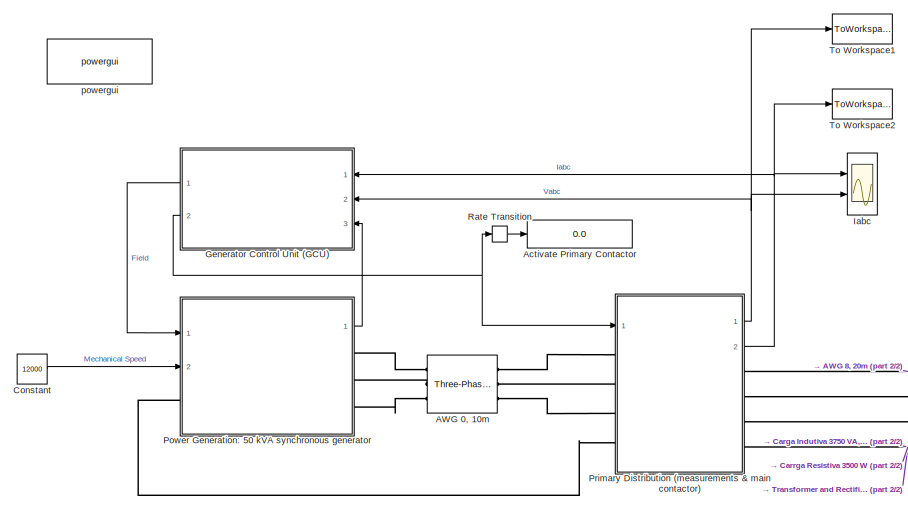
[diagram: root canvas - part 1/2, top left region]
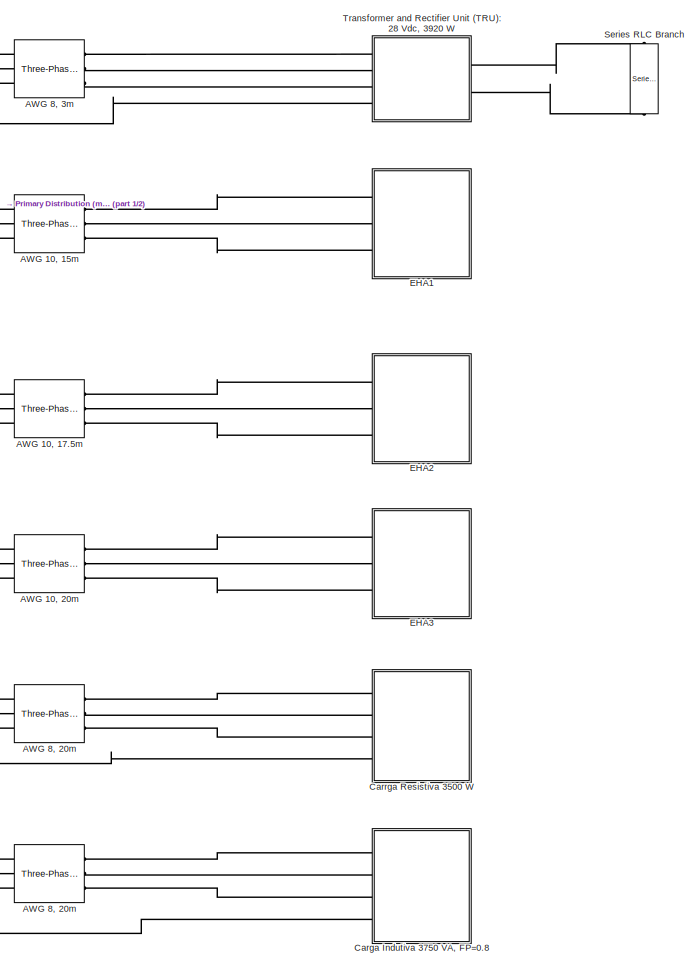
[diagram: root canvas - part 2/2, right side, full height]
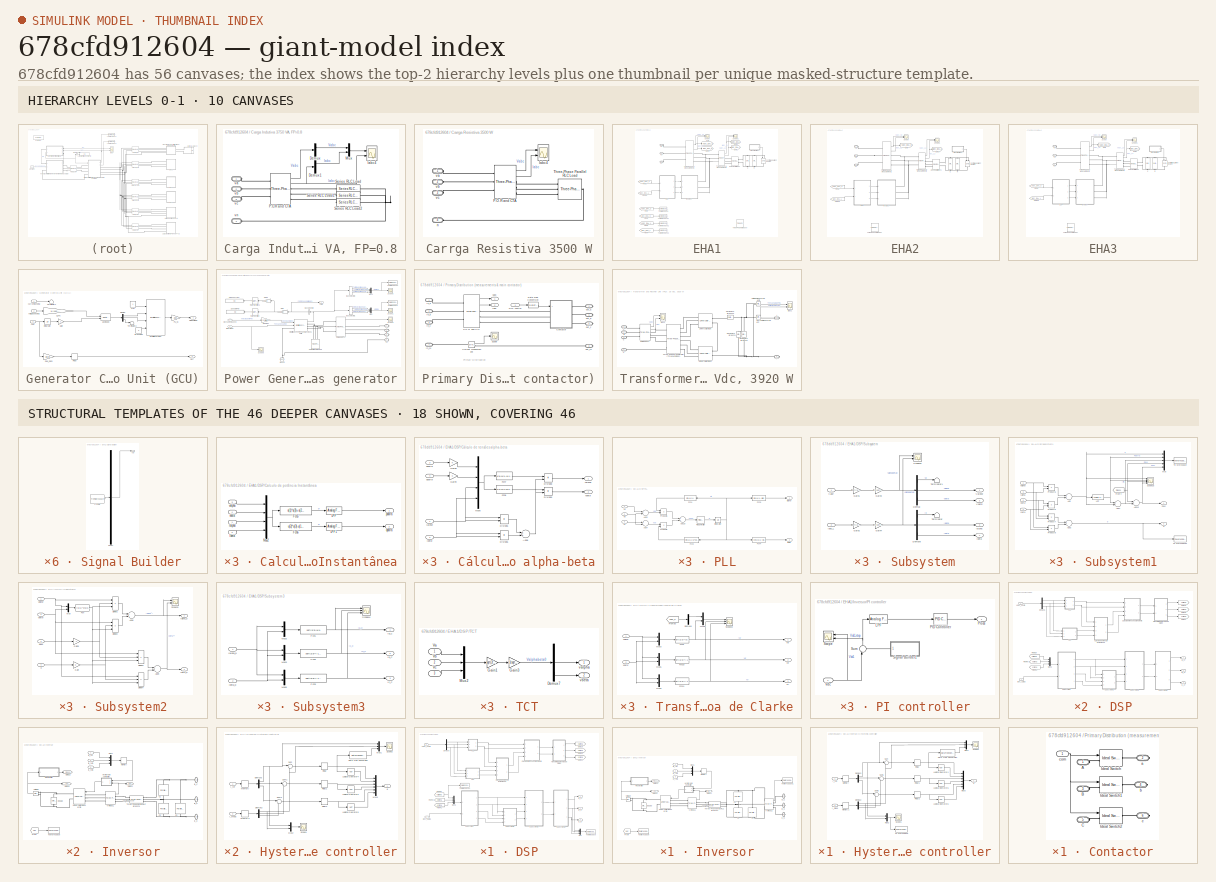
[diagram: thumbnail index - top-2 hierarchy levels (10 canvases) + 18 structural-template representatives of the remaining 46 canvases]
MODEL slx_678cfd912604
KIND model
CONFIG AbsTol = 0.2e-4
CONFIG FixedStep = auto
CONFIG MaxStep = 0.01
CONFIG MinStep = auto
CONFIG PreLoadFcn = % -- Recommended Settings --\n%\n%  Simulink:\n%      Solver: Ode23t\n%      Relative tolerance = 1e-3\n%       Max step size = 0.2\n%\n%  Powergui:\n         Ts = 1e-07; % (discrete electrical model)\n%\n%  Control systems:\n         Ts_control = 10*Ts; % (discrete control system)\n%\n% ----------------------------------
CONFIG RelTol = 0.2e-4
CONFIG SampleTimeConstraint = Unconstrained
CONFIG Solver = FixedStepAuto
CONFIG SolverMode = Auto
CONFIG SolverName = FixedStepAuto
CONFIG StartTime = 72.85
CONFIG StopTime = 73.9
BLOCK [Reference] AWG 0, 10m  REF=powerlib/Elements/Three-Phase
Parallel RLC Branch
  AttributesFormatString = \n
  Ports = [0, 0, 0, 0, 0, 3, 3]
  SourceBlock = powerlib/Elements/Three-Phase\nParallel RLC Branch
  SourceType = Three-Phase Parallel RLC Branch
BLOCK [Reference] AWG 10, 15m  REF=powerlib/Elements/Three-Phase
Parallel RLC Branch
  AttributesFormatString = \n
  Ports = [0, 0, 0, 0, 0, 3, 3]
  SourceBlock = powerlib/Elements/Three-Phase\nParallel RLC Branch
  SourceType = Three-Phase Parallel RLC Branch
BLOCK [Reference] AWG 10, 17.5m  REF=powerlib/Elements/Three-Phase
Parallel RLC Branch
  AttributesFormatString = \n
  Ports = [0, 0, 0, 0, 0, 3, 3]
  SourceBlock = powerlib/Elements/Three-Phase\nParallel RLC Branch
  SourceType = Three-Phase Parallel RLC Branch
BLOCK [Reference] AWG 10, 20m  REF=powerlib/Elements/Three-Phase
Parallel RLC Branch
  AttributesFormatString = \n
  Ports = [0, 0, 0, 0, 0, 3, 3]
  SourceBlock = powerlib/Elements/Three-Phase\nParallel RLC Branch
  SourceType = Three-Phase Parallel RLC Branch
BLOCK [Reference] AWG 8, 20m  REF=powerlib/Elements/Three-Phase
Parallel RLC Branch
  AttributesFormatString = \n
  Ports = [0, 0, 0, 0, 0, 3, 3]
  SourceBlock = powerlib/Elements/Three-Phase\nParallel RLC Branch
  SourceType = Three-Phase Parallel RLC Branch
BLOCK [Reference] AWG 8, 20m   REF=powerlib/Elements/Three-Phase
Parallel RLC Branch
  AttributesFormatString = \n
  Ports = [0, 0, 0, 0, 0, 3, 3]
  SourceBlock = powerlib/Elements/Three-Phase\nParallel RLC Branch
  SourceType = Three-Phase Parallel RLC Branch
BLOCK [Reference] AWG 8, 3m  REF=powerlib/Elements/Three-Phase
Parallel RLC Branch
  AttributesFormatString = \n
  Ports = [0, 0, 0, 0, 0, 3, 3]
  SourceBlock = powerlib/Elements/Three-Phase\nParallel RLC Branch
  SourceType = Three-Phase Parallel RLC Branch
BLOCK [Display] Activate Primary Contactor
  Decimation = 1
  Ports = [1]
  SampleTime = 1e-2
BLOCK [SubSystem] Carga Indutiva 3750 VA, FP=0.8
  Ports = [0, 0, 0, 0, 0, 4]
  RequestExecContextInheritance = off
  Variant = off
BLOCK [Demux] Carga Indutiva 3750 VA, FP=0.8/Demux
  DisplayOption = bar
  Outputs = 3
  Ports = [1, 3]
BLOCK [Demux] Carga Indutiva 3750 VA, FP=0.8/Demux1
  DisplayOption = bar
  Outputs = 3
  Ports = [1, 3]
BLOCK [Scope] Carga Indutiva 3750 VA, FP=0.8/Iabc4
  NumInputPorts = 2
  Ports = [2]
  ScopeSpecificationString = C++SS(StrPVP('Location','[-951, 56, -7, 1071]'),StrPVP('Open','off'),StrPVP('ZoomMode','yonly'),MxPVP('AxesTitles',24,'struct(''axes1'',''%<SignalLabel>'',''axes2'',''%<SignalLabel>'')'),MxPVP('ScopeGraphics',28,'struct(''FigureColor'',''[0.5 0.5 0.5]'',''AxesColor'',''[0 0 0]'',''AxesTickColor'',''[1 1 1]'',''LineColors'',''[1 1 0;1 0 1;0 1 1;1 0 0;0 1 0;0 0 1]'',''LineStyles'',''-|-|-|-|-|-'',''...<+362ch>
BLOCK [Mux] Carga Indutiva 3750 VA, FP=0.8/Mux
  DisplayOption = bar
  Inputs = 2
  Ports = [2, 1]
BLOCK [Reference] Carga Indutiva 3750 VA, FP=0.8/P.O.R  and CTA  REF=powerlib/Measurements/Three-Phase
V-I Measurement
  Ports = [0, 2, 0, 0, 0, 3, 3]
  SourceBlock = powerlib/Measurements/Three-Phase\nV-I Measurement
  SourceType = Three-Phase VI Measurement
BLOCK [Reference] Carga Indutiva 3750 VA, FP=0.8/Series RLC Load  REF=powerlib/Elements/Series RLC Load
  AttributesFormatString = \n
  Ports = [0, 0, 0, 0, 0, 1, 1]
  SourceBlock = powerlib/Elements/Series RLC Load
  SourceType = Series RLC Load
BLOCK [Reference] Carga Indutiva 3750 VA, FP=0.8/Series RLC Load1  REF=powerlib/Elements/Series RLC Load
  AttributesFormatString = \n
  Ports = [0, 0, 0, 0, 0, 1, 1]
  SourceBlock = powerlib/Elements/Series RLC Load
  SourceType = Series RLC Load
BLOCK [Reference] Carga Indutiva 3750 VA, FP=0.8/Series RLC Load2  REF=powerlib/Elements/Series RLC Load
  AttributesFormatString = \n
  Ports = [0, 0, 0, 0, 0, 1, 1]
  SourceBlock = powerlib/Elements/Series RLC Load
  SourceType = Series RLC Load
BLOCK [PMIOPort] Carga Indutiva 3750 VA, FP=0.8/va
  Port = 1
  Side = Left
BLOCK [PMIOPort] Carga Indutiva 3750 VA, FP=0.8/vb
  Port = 2
  Side = Left
BLOCK [PMIOPort] Carga Indutiva 3750 VA, FP=0.8/vc
  Port = 3
  Side = Left
BLOCK [PMIOPort] Carga Indutiva 3750 VA, FP=0.8/vn
  Port = 4
  Side = Left
BLOCK [SubSystem] Carrga Resistiva 3500 W
  Ports = [0, 0, 0, 0, 0, 4]
  RequestExecContextInheritance = off
  Variant = off
BLOCK [Scope] Carrga Resistiva 3500 W/Iabc4
  NumInputPorts = 2
  Ports = [2]
  ScopeSpecificationString = C++SS(StrPVP('Location','[-1668, 281, -724, 645]'),StrPVP('Open','off'),StrPVP('ZoomMode','xonly'),MxPVP('AxesTitles',24,'struct(''axes1'',''%<SignalLabel>'',''axes2'',''%<SignalLabel>'')'),MxPVP('ScopeGraphics',28,'struct(''FigureColor'',''[0.5 0.5 0.5]'',''AxesColor'',''[0 0 0]'',''AxesTickColor'',''[1 1 1]'',''LineColors'',''[1 1 0;1 0 1;0 1 1;1 0 0;0 1 0;0 0 1]'',''LineStyles'',''-|-|-|-|-|-''...<+363ch>
BLOCK [Reference] Carrga Resistiva 3500 W/P.O.R  and CTA  REF=powerlib/Measurements/Three-Phase
V-I Measurement
  Ports = [0, 2, 0, 0, 0, 3, 3]
  SourceBlock = powerlib/Measurements/Three-Phase\nV-I Measurement
  SourceType = Three-Phase VI Measurement
BLOCK [Reference] Carrga Resistiva 3500 W/Three-Phase Parallel RLC Load  REF=powerlib/Elements/Three-Phase
Parallel RLC Load
  AttributesFormatString = \n
  Ports = [0, 0, 0, 0, 0, 3, 1]
  SourceBlock = powerlib/Elements/Three-Phase\nParallel RLC Load
  SourceType = Three-Phase Parallel RLC Load
BLOCK [PMIOPort] Carrga Resistiva 3500 W/n
  Port = 4
  Side = Left
BLOCK [PMIOPort] Carrga Resistiva 3500 W/va
  Port = 1
  Side = Left
BLOCK [PMIOPort] Carrga Resistiva 3500 W/vb
  Port = 2
  Side = Left
BLOCK [PMIOPort] Carrga Resistiva 3500 W/vc
  Port = 3
  Side = Left
BLOCK [Constant] Constant
  Value = 12000
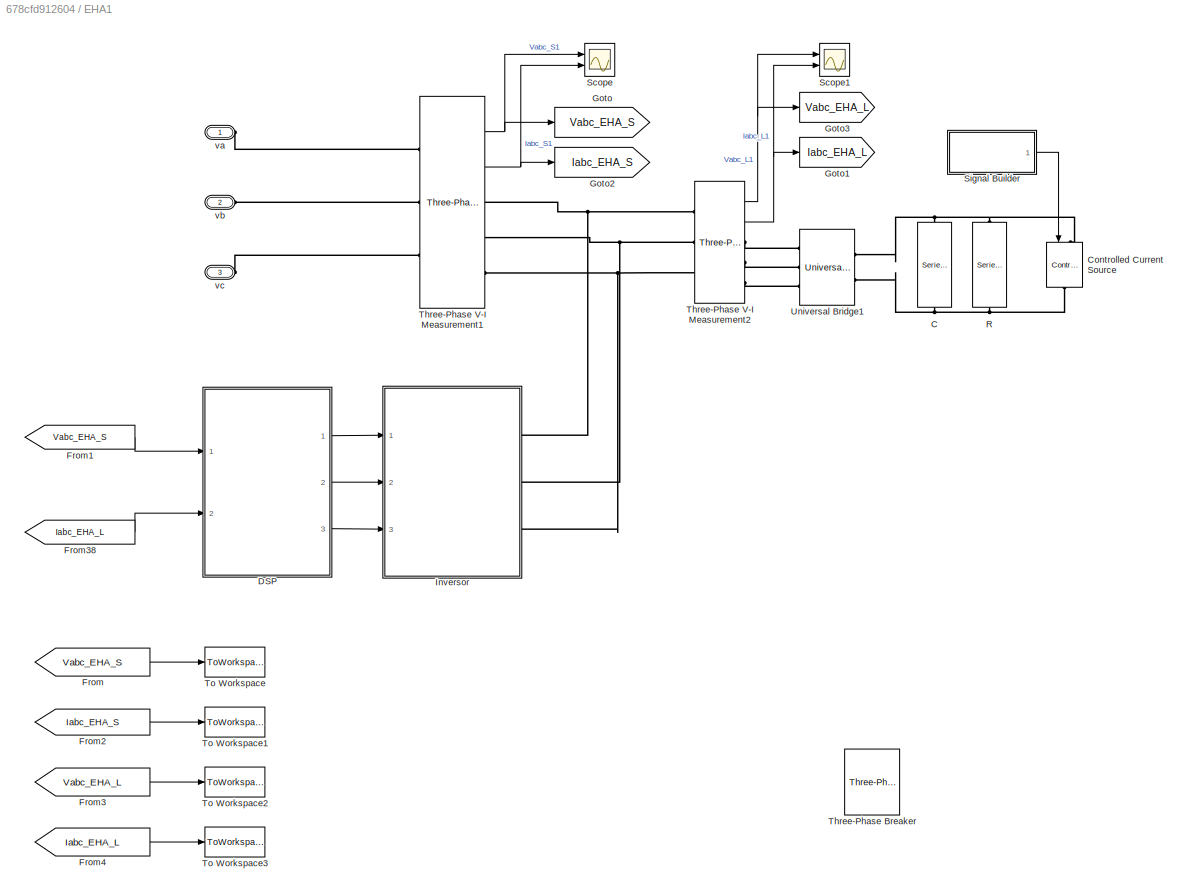
BLOCK [SubSystem] EHA1
  Ports = [0, 0, 0, 0, 0, 3]
  RequestExecContextInheritance = off
  Variant = off
BLOCK [Reference] EHA1/C  REF=powerlib/Elements/Series RLC Branch
  Ports = [0, 0, 0, 0, 0, 1, 1]
  SourceBlock = powerlib/Elements/Series RLC Branch
  SourceType = Series RLC Branch
BLOCK [Reference] EHA1/Controlled Current Source  REF=powerlib/Electrical
Sources/Controlled Current Source
  Ports = [1, 0, 0, 0, 0, 1, 1]
  SourceBlock = powerlib/Electrical\nSources/Controlled Current Source
  SourceType = Controlled Current Source
BLOCK [SubSystem] EHA1/DSP
  Ports = [2, 3]
  RequestExecContextInheritance = off
  Variant = off
BLOCK [SubSystem] EHA1/DSP/Calculo de potência Instantânea
  Ports = [4, 2]
  RequestExecContextInheritance = off
  Variant = off
BLOCK [Fcn] EHA1/DSP/Calculo de potência Instantânea/Fcn5
  Expr = u(1)*u(3)+u(2)*u(4)
BLOCK [Fcn] EHA1/DSP/Calculo de potência Instantânea/Fcn6
  Expr = u(2)*u(3)-u(1)*u(4)
BLOCK [Inport] EHA1/DSP/Calculo de potência Instantânea/Ialpha'
  IconDisplay = Port number
BLOCK [Inport] EHA1/DSP/Calculo de potência Instantânea/Ibeta'
  IconDisplay = Port number
  Port = 2
BLOCK [Reference] EHA1/DSP/Calculo de potência Instantânea/LPF  REF=dsparch4/Analog
Filter Design
  Ports = [1, 1]
  SourceBlock = dsparch4/Analog\nFilter Design
  SourceType = Analog Filter Design
BLOCK [Reference] EHA1/DSP/Calculo de potência Instantânea/LPF1  REF=dsparch4/Analog
Filter Design
  Ports = [1, 1]
  SourceBlock = dsparch4/Analog\nFilter Design
  SourceType = Analog Filter Design
BLOCK [Mux] EHA1/DSP/Calculo de potência Instantânea/Mux2
  DisplayOption = bar
  Ports = [4, 1]
BLOCK [Outport] EHA1/DSP/Calculo de potência Instantânea/pbarra'
  IconDisplay = Port number
BLOCK [Outport] EHA1/DSP/Calculo de potência Instantânea/qbarra'
  IconDisplay = Port number
  Port = 2
BLOCK [Inport] EHA1/DSP/Calculo de potência Instantânea/valpha
  IconDisplay = Port number
  Port = 3
BLOCK [Inport] EHA1/DSP/Calculo de potência Instantânea/vbeta
  IconDisplay = Port number
  Port = 4
BLOCK [SubSystem] EHA1/DSP/Cálculo de tensões alpha-beta
  Ports = [4, 2]
  RequestExecContextInheritance = off
  Variant = off
BLOCK [Sum] EHA1/DSP/Cálculo de tensões alpha-beta/Add8
  InputSameDT = off
  OutDataTypeStr = Inherit: Inherit via internal rule
  Ports = [2, 1]
  SaturateOnIntegerOverflow = off
BLOCK [Product] EHA1/DSP/Cálculo de tensões alpha-beta/Divide5
  InputSameDT = off
  Inputs = **
  OutDataTypeStr = Inherit: Inherit via internal rule
  Ports = [2, 1]
  RndMeth = Floor
  SaturateOnIntegerOverflow = off
BLOCK [Product] EHA1/DSP/Cálculo de tensões alpha-beta/Divide6
  InputSameDT = off
  Inputs = **
  OutDataTypeStr = Inherit: Inherit via internal rule
  Ports = [2, 1]
  RndMeth = Floor
  SaturateOnIntegerOverflow = off
BLOCK [Product] EHA1/DSP/Cálculo de tensões alpha-beta/Divide8
  InputSameDT = off
  Inputs = */
  OutDataTypeStr = Inherit: Inherit via internal rule
  Ports = [2, 1]
  RndMeth = Floor
  SaturateOnIntegerOverflow = off
BLOCK [Product] EHA1/DSP/Cálculo de tensões alpha-beta/Divide9
  InputSameDT = off
  Inputs = */
  OutDataTypeStr = Inherit: Inherit via internal rule
  Ports = [2, 1]
  RndMeth = Floor
  SaturateOnIntegerOverflow = off
BLOCK [Fcn] EHA1/DSP/Cálculo de tensões alpha-beta/Fcn7
  Expr = u(3)*u(1)-u(4)*u(2)
BLOCK [Fcn] EHA1/DSP/Cálculo de tensões alpha-beta/Fcn8
  Expr = u(4)*u(1)+u(3)*u(2)
BLOCK [Gain] EHA1/DSP/Cálculo de tensões alpha-beta/Gain8
  OutDataTypeStr = Inherit: Inherit via internal rule
  ParamDataTypeStr = Inherit: Inherit via internal rule
  SaturateOnIntegerOverflow = off
BLOCK [Gain] EHA1/DSP/Cálculo de tensões alpha-beta/Gain9
  OutDataTypeStr = Inherit: Inherit via internal rule
  ParamDataTypeStr = Inherit: Inherit via internal rule
  SaturateOnIntegerOverflow = off
BLOCK [Inport] EHA1/DSP/Cálculo de tensões alpha-beta/Ialpha'
  IconDisplay = Port number
BLOCK [Inport] EHA1/DSP/Cálculo de tensões alpha-beta/Ibeta'
  IconDisplay = Port number
  Port = 2
BLOCK [Mux] EHA1/DSP/Cálculo de tensões alpha-beta/Mux6
  DisplayOption = bar
  Ports = [4, 1]
BLOCK [Inport] EHA1/DSP/Cálculo de tensões alpha-beta/pbarra'
  IconDisplay = Port number
  Port = 3
BLOCK [Inport] EHA1/DSP/Cálculo de tensões alpha-beta/qbarra'
  IconDisplay = Port number
  Port = 4
BLOCK [Outport] EHA1/DSP/Cálculo de tensões alpha-beta/valpha'
  IconDisplay = Port number
BLOCK [Outport] EHA1/DSP/Cálculo de tensões alpha-beta/vbeta'
  IconDisplay = Port number
  Port = 2
BLOCK [Demux] EHA1/DSP/Demux5
  DisplayOption = bar
  Outputs = 3
  Ports = [1, 3]
BLOCK [From] EHA1/DSP/From39
  GotoTag = valinha
BLOCK [From] EHA1/DSP/From40
  GotoTag = vblinha
BLOCK [From] EHA1/DSP/From41
  GotoTag = vclinha
BLOCK [Goto] EHA1/DSP/Goto29
  GotoTag = valinha
BLOCK [Goto] EHA1/DSP/Goto30
  GotoTag = vblinha
BLOCK [Goto] EHA1/DSP/Goto31
  GotoTag = vclinha
BLOCK [Outport] EHA1/DSP/Ia_C*
  IconDisplay = Port number
BLOCK [Inport] EHA1/DSP/Iabc_Carga
  IconDisplay = Port number
  Port = 2
BLOCK [Outport] EHA1/DSP/Ib_C*
  IconDisplay = Port number
  Port = 2
BLOCK [Outport] EHA1/DSP/Ic_C*
  IconDisplay = Port number
  Port = 3
BLOCK [Mux] EHA1/DSP/Mux
  DisplayOption = bar
  Inputs = 3
  Ports = [3, 1]
BLOCK [Mux] EHA1/DSP/Mux6
  DisplayOption = bar
  Inputs = 3
  Ports = [3, 1]
BLOCK [SubSystem] EHA1/DSP/PLL
  Ports = [3, 2]
  RequestExecContextInheritance = off
  Variant = off
BLOCK [Sum] EHA1/DSP/PLL/Add10
  InputSameDT = off
  OutDataTypeStr = Inherit: Inherit via internal rule
  Ports = [2, 1]
  SaturateOnIntegerOverflow = off
BLOCK [Sum] EHA1/DSP/PLL/Add3
  InputSameDT = off
  Inputs = +-
  OutDataTypeStr = Inherit: Inherit via internal rule
  Ports = [2, 1]
  SaturateOnIntegerOverflow = off
BLOCK [Sum] EHA1/DSP/PLL/Add4
  InputSameDT = off
  Inputs = +-
  OutDataTypeStr = Inherit: Inherit via internal rule
  Ports = [2, 1]
  SaturateOnIntegerOverflow = off
BLOCK [Fcn] EHA1/DSP/PLL/Fcn1
  Expr = sin(u(1))
BLOCK [Fcn] EHA1/DSP/PLL/Fcn2
  Expr = sin(u(1)+2*pi/3)
BLOCK [Fcn] EHA1/DSP/PLL/Fcn3
  Expr = sin(u(1)-pi/2)
BLOCK [Fcn] EHA1/DSP/PLL/Fcn4
  Expr = -cos(u(1)-pi/2)
BLOCK [Outport] EHA1/DSP/PLL/Ialpha'
  IconDisplay = Port number
BLOCK [Outport] EHA1/DSP/PLL/Ibeta'
  IconDisplay = Port number
  Port = 2
BLOCK [Integrator] EHA1/DSP/PLL/Integrator
  Ports = [1, 1]
BLOCK [Reference] EHA1/DSP/PLL/PID Controller  REF=simulink/Continuous/PID Controller
  Ports = [1, 1]
  SourceBlock = simulink/Continuous/PID Controller
  SourceType = PID 1dof
BLOCK [Product] EHA1/DSP/PLL/Product5
  InputSameDT = off
  OutDataTypeStr = Inherit: Inherit via internal rule
  Ports = [2, 1]
  RndMeth = Floor
  SaturateOnIntegerOverflow = off
BLOCK [Product] EHA1/DSP/PLL/Product6
  InputSameDT = off
  OutDataTypeStr = Inherit: Inherit via internal rule
  Ports = [2, 1]
  RndMeth = Floor
  SaturateOnIntegerOverflow = off
BLOCK [Inport] EHA1/DSP/PLL/Va
  IconDisplay = Port number
BLOCK [Inport] EHA1/DSP/PLL/Vb
  IconDisplay = Port number
  Port = 2
BLOCK [Inport] EHA1/DSP/PLL/Vc
  IconDisplay = Port number
  Port = 3
BLOCK [SubSystem] EHA1/DSP/Subsystem
  Ports = [2, 4]
  RequestExecContextInheritance = off
  Variant = off
BLOCK [Demux] EHA1/DSP/Subsystem/Demux
  DisplayOption = bar
  Outputs = 3
  Ports = [1, 3]
BLOCK [Demux] EHA1/DSP/Subsystem/Demux6
  DisplayOption = bar
  Outputs = 3
  Ports = [1, 3]
BLOCK [Gain] EHA1/DSP/Subsystem/Gain1
  Gain = sqrt(2/3)
  OutDataTypeStr = Inherit: Inherit via internal rule
  ParamDataTypeStr = Inherit: Inherit via internal rule
  SaturateOnIntegerOverflow = off
BLOCK [Gain] EHA1/DSP/Subsystem/Gain2
  Gain = sqrt(2/3)
  OutDataTypeStr = Inherit: Inherit via internal rule
  ParamDataTypeStr = Inherit: Inherit via internal rule
  SaturateOnIntegerOverflow = off
BLOCK [Gain] EHA1/DSP/Subsystem/Gain3
  Gain = [1/sqrt(2), 1/sqrt(2), 1/sqrt(2); 1, -1/2, -1/2; 0, sqrt(3)/2, -sqrt(3)/2]
  Multiplication = Matrix(K*u)
  OutDataTypeStr = Inherit: Inherit via internal rule
  ParamDataTypeStr = Inherit: Inherit via internal rule
  SaturateOnIntegerOverflow = off
BLOCK [Gain] EHA1/DSP/Subsystem/Gain4
  Gain = [1/sqrt(2), 1/sqrt(2), 1/sqrt(2); 1, -1/2, -1/2; 0, sqrt(3)/2, -sqrt(3)/2]
  Multiplication = Matrix(K*u)
  OutDataTypeStr = Inherit: Inherit via internal rule
  ParamDataTypeStr = Inherit: Inherit via internal rule
  SaturateOnIntegerOverflow = off
BLOCK [Inport] EHA1/DSP/Subsystem/Iabc_L
  IconDisplay = Port number
  Port = 2
BLOCK [Outport] EHA1/DSP/Subsystem/Ialpha
  IconDisplay = Port number
  Port = 3
BLOCK [Outport] EHA1/DSP/Subsystem/Ibeta
  IconDisplay = Port number
  Port = 4
BLOCK [Scope] EHA1/DSP/Subsystem/Scope15
  NumInputPorts = 2
  Ports = [2]
  ScopeSpecificationString = C++SS(StrPVP('Location','[311, 59, 1224, 1074]'),StrPVP('Open','off'),StrPVP('ZoomMode','xonly'),MxPVP('AxesTitles',24,'struct(''axes1'',''%<SignalLabel>'',''axes2'',''%<SignalLabel>'')'),MxPVP('ScopeGraphics',28,'struct(''FigureColor'',''[0.5 0.5 0.5]'',''AxesColor'',''[0 0 0]'',''AxesTickColor'',''[1 1 1]'',''LineColors'',''[1 1 0;1 0 1;0 1 1;1 0 0;0 1 0;0 0 1]'',''LineStyles'',''-|-|-|-|-|-'','...<+334ch>  <repeated x3 — deduplicated; at blocks: Scope15>
BLOCK [Terminator] EHA1/DSP/Subsystem/Terminator
BLOCK [Terminator] EHA1/DSP/Subsystem/Terminator1
BLOCK [Inport] EHA1/DSP/Subsystem/Vabc'
  IconDisplay = Port number
BLOCK [Outport] EHA1/DSP/Subsystem/Valpha'
  IconDisplay = Port number
BLOCK [Outport] EHA1/DSP/Subsystem/Vbeta'
  IconDisplay = Port number
  Port = 2
BLOCK [SubSystem] EHA1/DSP/Subsystem1
  Ports = [4, 2]
  RequestExecContextInheritance = off
  Variant = off
BLOCK [Sum] EHA1/DSP/Subsystem1/Add
  InputSameDT = off
  OutDataTypeStr = Inherit: Inherit via internal rule
  Ports = [2, 1]
  SaturateOnIntegerOverflow = off
BLOCK [Sum] EHA1/DSP/Subsystem1/Add10
  InputSameDT = off
  OutDataTypeStr = Inherit: Inherit via internal rule
  Ports = [2, 1]
  SaturateOnIntegerOverflow = off
BLOCK [Sum] EHA1/DSP/Subsystem1/Add3
  InputSameDT = off
  Inputs = +-
  OutDataTypeStr = Inherit: Inherit via internal rule
  Ports = [2, 1]
  SaturateOnIntegerOverflow = off
BLOCK [Sum] EHA1/DSP/Subsystem1/Add4
  InputSameDT = off
  Inputs = +-
  OutDataTypeStr = Inherit: Inherit via internal rule
  Ports = [2, 1]
  SaturateOnIntegerOverflow = off
BLOCK [From] EHA1/DSP/Subsystem1/From4
  GotoTag = Ploss1
  TagVisibility = global
BLOCK [Inport] EHA1/DSP/Subsystem1/Ialpha
  IconDisplay = Port number
  Port = 3
BLOCK [Inport] EHA1/DSP/Subsystem1/Ibeta
  IconDisplay = Port number
  Port = 4
BLOCK [Reference] EHA1/DSP/Subsystem1/LPF  REF=dsparch4/Analog
Filter Design
  Ports = [1, 1]
  SourceBlock = dsparch4/Analog\nFilter Design
  SourceType = Analog Filter Design
BLOCK [Mux] EHA1/DSP/Subsystem1/Mux
  DisplayOption = bar
  Inputs = 5
  Ports = [5, 1]
BLOCK [Outport] EHA1/DSP/Subsystem1/Posc
  IconDisplay = Port number
BLOCK [Product] EHA1/DSP/Subsystem1/Product5
  InputSameDT = off
  OutDataTypeStr = Inherit: Inherit via internal rule
  Ports = [2, 1]
  RndMeth = Floor
  SaturateOnIntegerOverflow = off
BLOCK [Product] EHA1/DSP/Subsystem1/Product6
  InputSameDT = off
  OutDataTypeStr = Inherit: Inherit via internal rule
  Ports = [2, 1]
  RndMeth = Floor
  SaturateOnIntegerOverflow = off
BLOCK [Product] EHA1/DSP/Subsystem1/Product7
  InputSameDT = off
  OutDataTypeStr = Inherit: Inherit via internal rule
  Ports = [2, 1]
  RndMeth = Floor
  SaturateOnIntegerOverflow = off
BLOCK [Product] EHA1/DSP/Subsystem1/Product8
  InputSameDT = off
  OutDataTypeStr = Inherit: Inherit via internal rule
  Ports = [2, 1]
  RndMeth = Floor
  SaturateOnIntegerOverflow = off
BLOCK [Scope] EHA1/DSP/Subsystem1/Scope18
  NumInputPorts = 4
  Ports = [4]
  ScopeSpecificationString = Simulink.scopes.TimeScopeBlockCfg('CurrentConfiguration', extmgr.ConfigurationSet(extmgr.Configuration('Core','General UI',true),extmgr.Configuration('Core','Source UI',true),extmgr.Configuration('Sources','WiredSimulink',true,'DataLoggingVariableName','ScopeData35','DataLoggingLimitDataPoints',true,'DataLoggingSaveFormat','Array','DataLoggingDecimation','1','DataLoggingDecimateData',true),extmgr....<+3766ch>  <repeated x3 — deduplicated; at blocks: Scope18>
BLOCK [ToWorkspace] EHA1/DSP/Subsystem1/To Workspace
  FixptAsFi = on
  MaxDataPoints = inf
  Ports = [1]
  SampleTime = -1
  Save2DSignal = 3-D array (concatenate along third dimension)
  SaveFormat = Structure With Time
  VariableName = p1
BLOCK [ToWorkspace] EHA1/DSP/Subsystem1/To Workspace1
  FixptAsFi = on
  MaxDataPoints = inf
  Ports = [1]
  SampleTime = -1
  Save2DSignal = 3-D array (concatenate along third dimension)
  SaveFormat = Structure With Time
  VariableName = q1
BLOCK [Inport] EHA1/DSP/Subsystem1/Valpha'
  IconDisplay = Port number
BLOCK [Inport] EHA1/DSP/Subsystem1/Vbeta'
  IconDisplay = Port number
  Port = 2
BLOCK [Outport] EHA1/DSP/Subsystem1/q
  IconDisplay = Port number
  Port = 2
BLOCK [SubSystem] EHA1/DSP/Subsystem2
  Ports = [4, 2]
  RequestExecContextInheritance = off
  Variant = off
BLOCK [Sum] EHA1/DSP/Subsystem2/Add8
  InputSameDT = off
  OutDataTypeStr = Inherit: Inherit via internal rule
  Ports = [2, 1]
  SaturateOnIntegerOverflow = off
BLOCK [Sum] EHA1/DSP/Subsystem2/Add9
  InputSameDT = off
  Inputs = +-
  OutDataTypeStr = Inherit: Inherit via internal rule
  Ports = [2, 1]
  SaturateOnIntegerOverflow = off
BLOCK [Product] EHA1/DSP/Subsystem2/Divide1
  InputSameDT = off
  Inputs = ***
  OutDataTypeStr = Inherit: Inherit via internal rule
  Ports = [3, 1]
  RndMeth = Floor
  SaturateOnIntegerOverflow = off
BLOCK [Product] EHA1/DSP/Subsystem2/Divide2
  InputSameDT = off
  Inputs = ***
  OutDataTypeStr = Inherit: Inherit via internal rule
  Ports = [3, 1]
  RndMeth = Floor
  SaturateOnIntegerOverflow = off
BLOCK [Product] EHA1/DSP/Subsystem2/Divide3
  InputSameDT = off
  Inputs = ***
  OutDataTypeStr = Inherit: Inherit via internal rule
  Ports = [3, 1]
  RndMeth = Floor
  SaturateOnIntegerOverflow = off
BLOCK [Product] EHA1/DSP/Subsystem2/Divide4
  InputSameDT = off
  Inputs = ***
  OutDataTypeStr = Inherit: Inherit via internal rule
  Ports = [3, 1]
  RndMeth = Floor
  SaturateOnIntegerOverflow = off
BLOCK [Fcn] EHA1/DSP/Subsystem2/Fcn
  Expr = 1/(u(1)^2+u(2)^2)
BLOCK [Gain] EHA1/DSP/Subsystem2/Gain
  OutDataTypeStr = Inherit: Inherit via internal rule
  ParamDataTypeStr = Inherit: Inherit via internal rule
  SaturateOnIntegerOverflow = off
BLOCK [Gain] EHA1/DSP/Subsystem2/Gain5
  Gain = -1
  OutDataTypeStr = Inherit: Inherit via internal rule
  ParamDataTypeStr = Inherit: Inherit via internal rule
  SaturateOnIntegerOverflow = off
BLOCK [Outport] EHA1/DSP/Subsystem2/Ialpha_p
  IconDisplay = Port number
BLOCK [Outport] EHA1/DSP/Subsystem2/Ibeta_p
  IconDisplay = Port number
  Port = 2
BLOCK [Mux] EHA1/DSP/Subsystem2/Mux
  DisplayOption = bar
  Inputs = 2
  Ports = [2, 1]
BLOCK [Inport] EHA1/DSP/Subsystem2/Posc
  IconDisplay = Port number
  Port = 3
BLOCK [Scope] EHA1/DSP/Subsystem2/Scope20
  NumInputPorts = 2
  Ports = [2]
  ScopeSpecificationString = C++SS(StrPVP('Location','[938, 59, 1851, 1074]'),StrPVP('Open','off'),StrPVP('ZoomMode','xonly'),MxPVP('AxesTitles',24,'struct(''axes1'',''%<SignalLabel>'',''axes2'',''%<SignalLabel>'')'),MxPVP('ScopeGraphics',28,'struct(''FigureColor'',''[0.5 0.5 0.5]'',''AxesColor'',''[0 0 0]'',''AxesTickColor'',''[1 1 1]'',''LineColors'',''[1 1 0;1 0 1;0 1 1;1 0 0;0 1 0;0 0 1]'',''LineStyles'',''-|-|-|-|-|-'','...<+334ch>  <repeated x3 — deduplicated; at blocks: Scope20>
BLOCK [Inport] EHA1/DSP/Subsystem2/Valpha'
  IconDisplay = Port number
BLOCK [Inport] EHA1/DSP/Subsystem2/Vbeta'
  IconDisplay = Port number
  Port = 2
BLOCK [Inport] EHA1/DSP/Subsystem2/q
  IconDisplay = Port number
  Port = 4
BLOCK [SubSystem] EHA1/DSP/Subsystem3
  Ports = [2, 3]
  RequestExecContextInheritance = off
  Variant = off
BLOCK [Fcn] EHA1/DSP/Subsystem3/Fcn1
  Expr = sqrt(2/3)*u(1)
BLOCK [Fcn] EHA1/DSP/Subsystem3/Fcn2
  Expr = sqrt(2/3)*(-1/2*u(1)+sqrt(3)/2*u(2))
BLOCK [Fcn] EHA1/DSP/Subsystem3/Fcn3
  Expr = sqrt(2/3)*(-1/2*u(1)-sqrt(3)/2*u(2))
BLOCK [Outport] EHA1/DSP/Subsystem3/Ia_C
  IconDisplay = Port number
BLOCK [Inport] EHA1/DSP/Subsystem3/Ialpha_p
  IconDisplay = Port number
BLOCK [Outport] EHA1/DSP/Subsystem3/Ib_C
  IconDisplay = Port number
  Port = 2
BLOCK [Inport] EHA1/DSP/Subsystem3/Ibeta_p
  IconDisplay = Port number
  Port = 2
BLOCK [Outport] EHA1/DSP/Subsystem3/Ic_C
  IconDisplay = Port number
  Port = 3
BLOCK [Mux] EHA1/DSP/Subsystem3/Mux2
  DisplayOption = bar
  Inputs = 2
  Ports = [2, 1]
BLOCK [Mux] EHA1/DSP/Subsystem3/Mux3
  DisplayOption = bar
  Inputs = 2
  Ports = [2, 1]
BLOCK [Mux] EHA1/DSP/Subsystem3/Mux5
  DisplayOption = bar
  Inputs = 2
  Ports = [2, 1]
BLOCK [Scope] EHA1/DSP/Subsystem3/Scope14
  NumInputPorts = 3
  Ports = [3]
  ScopeSpecificationString = C++SS(StrPVP('Location','[938, 56, 1851, 1071]'),StrPVP('Open','off'),StrPVP('ZoomMode','xonly'),MxPVP('AxesTitles',24,'struct(''axes1'',''%<SignalLabel>'',''axes2'',''%<SignalLabel>'',''axes3'',''%<SignalLabel>'')'),MxPVP('ScopeGraphics',28,'struct(''FigureColor'',''[0.5 0.5 0.5]'',''AxesColor'',''[0 0 0]'',''AxesTickColor'',''[1 1 1]'',''LineColors'',''[1 1 0;1 0 1;0 1 1;1 0 0;0 1 0;0 0 1]'',''L...<+393ch>  <repeated x3 — deduplicated; at blocks: Scope14>
BLOCK [SubSystem] EHA1/DSP/TCT
  Ports = [3, 2]
  RequestExecContextInheritance = off
  Variant = off
BLOCK [Demux] EHA1/DSP/TCT/Demux7
  DisplayOption = bar
  Outputs = 3
  Ports = [1, 3]
BLOCK [Gain] EHA1/DSP/TCT/Gain1
  Gain = sqrt(2/3)
  OutDataTypeStr = Inherit: Inherit via internal rule
  ParamDataTypeStr = Inherit: Inherit via internal rule
  SaturateOnIntegerOverflow = off
BLOCK [Gain] EHA1/DSP/TCT/Gain3
  Gain = [1/sqrt(2), 1/sqrt(2), 1/sqrt(2); 1, -1/2, -1/2; 0, sqrt(3)/2, -sqrt(3)/2]
  Multiplication = Matrix(K*u)
  OutDataTypeStr = Inherit: Inherit via internal rule
  ParamDataTypeStr = Inherit: Inherit via internal rule
  SaturateOnIntegerOverflow = off
BLOCK [Mux] EHA1/DSP/TCT/Mux2
  DisplayOption = bar
  Inputs = 3
  Ports = [3, 1]
BLOCK [Inport] EHA1/DSP/TCT/Va
  IconDisplay = Port number
BLOCK [Inport] EHA1/DSP/TCT/Vb
  IconDisplay = Port number
  Port = 2
BLOCK [Inport] EHA1/DSP/TCT/Vc
  IconDisplay = Port number
  Port = 3
BLOCK [Outport] EHA1/DSP/TCT/valpha
  IconDisplay = Port number
BLOCK [Outport] EHA1/DSP/TCT/vbeta
  IconDisplay = Port number
  Port = 2
BLOCK [ToWorkspace] EHA1/DSP/To Workspace
  FixptAsFi = on
  MaxDataPoints = inf
  Ports = [1]
  SampleTime = -1
  Save2DSignal = 3-D array (concatenate along third dimension)
  SaveFormat = Structure With Time
  VariableName = Iref1
BLOCK [ToWorkspace] EHA1/DSP/To Workspace1
  FixptAsFi = on
  MaxDataPoints = inf
  Ports = [1]
  SampleTime = -1
  Save2DSignal = 3-D array (concatenate along third dimension)
  SaveFormat = Structure With Time
  VariableName = valinha
BLOCK [SubSystem] EHA1/DSP/Transformada Inversa de Clarke
  Ports = [2, 3]
  RequestExecContextInheritance = off
  Variant = off
BLOCK [Demux] EHA1/DSP/Transformada Inversa de Clarke/Demux6
  DisplayOption = bar
  Outputs = 3
  Ports = [1, 3]
BLOCK [Fcn] EHA1/DSP/Transformada Inversa de Clarke/Fcn10
  Expr = sqrt(2/3)*(-1/2*u(1)+sqrt(3)/2*u(2))
BLOCK [Fcn] EHA1/DSP/Transformada Inversa de Clarke/Fcn11
  Expr = sqrt(2/3)*(-1/2*u(1)-sqrt(3)/2*u(2))
BLOCK [Fcn] EHA1/DSP/Transformada Inversa de Clarke/Fcn9
  Expr = sqrt(2/3)*(u(1) + 0*u(2))
BLOCK [From] EHA1/DSP/Transformada Inversa de Clarke/From30
  GotoTag = Vabc_S
BLOCK [Mux] EHA1/DSP/Transformada Inversa de Clarke/Mux3
  DisplayOption = bar
  Inputs = 2
  Ports = [2, 1]
BLOCK [Mux] EHA1/DSP/Transformada Inversa de Clarke/Mux5
  DisplayOption = bar
  Inputs = 2
  Ports = [2, 1]
BLOCK [Mux] EHA1/DSP/Transformada Inversa de Clarke/Mux8
  DisplayOption = bar
  Inputs = 2
  Ports = [2, 1]
BLOCK [Mux] EHA1/DSP/Transformada Inversa de Clarke/Mux9
  DisplayOption = bar
  Inputs = 2
  Ports = [2, 1]
BLOCK [Scope] EHA1/DSP/Transformada Inversa de Clarke/Scope23
  NumInputPorts = 3
  Ports = [3]
  ScopeSpecificationString = C++SS(StrPVP('Location','[11, 59, 1372, 1074]'),StrPVP('Open','off'),StrPVP('ZoomMode','xonly'),MxPVP('AxesTitles',24,'struct(''axes1'',''%<SignalLabel>'',''axes2'',''%<SignalLabel>'',''axes3'',''%<SignalLabel>'')'),MxPVP('ScopeGraphics',28,'struct(''FigureColor'',''[0.5 0.5 0.5]'',''AxesColor'',''[0 0 0]'',''AxesTickColor'',''[1 1 1]'',''LineColors'',''[1 1 0;1 0 1;0 1 1;1 0 0;0 1 0;0 0 1]'',''Li...<+371ch>  <repeated x3 — deduplicated; at blocks: Scope23>
BLOCK [Outport] EHA1/DSP/Transformada Inversa de Clarke/va'
  IconDisplay = Port number
BLOCK [Inport] EHA1/DSP/Transformada Inversa de Clarke/valpha'
  IconDisplay = Port number
BLOCK [Outport] EHA1/DSP/Transformada Inversa de Clarke/vb'
  IconDisplay = Port number
  Port = 2
BLOCK [Inport] EHA1/DSP/Transformada Inversa de Clarke/vbeta'
  IconDisplay = Port number
  Port = 2
BLOCK [Outport] EHA1/DSP/Transformada Inversa de Clarke/vc'
  IconDisplay = Port number
  Port = 3
BLOCK [Inport] EHA1/DSP/Vabc_Fonte
  IconDisplay = Port number
BLOCK [From] EHA1/From
  GotoTag = Vabc_EHA_S
BLOCK [From] EHA1/From1
  GotoTag = Vabc_EHA_S
BLOCK [From] EHA1/From2
  GotoTag = Iabc_EHA_S
BLOCK [From] EHA1/From3
  GotoTag = Vabc_EHA_L
BLOCK [From] EHA1/From38
  GotoTag = Iabc_EHA_L
BLOCK [From] EHA1/From4
  GotoTag = Iabc_EHA_L
BLOCK [Goto] EHA1/Goto
  GotoTag = Vabc_EHA_S
BLOCK [Goto] EHA1/Goto1
  GotoTag = Iabc_EHA_L
BLOCK [Goto] EHA1/Goto2
  GotoTag = Iabc_EHA_S
BLOCK [Goto] EHA1/Goto3
  GotoTag = Vabc_EHA_L
BLOCK [SubSystem] EHA1/Inversor
  Ports = [3, 0, 0, 0, 0, 0, 3]
  RequestExecContextInheritance = off
  Variant = off
BLOCK [Reference] EHA1/Inversor/C1  REF=powerlib/Elements/Parallel RLC Branch
  AttributesFormatString = \n
  Ports = [0, 0, 0, 0, 0, 1, 1]
  SourceBlock = powerlib/Elements/Parallel RLC Branch
  SourceType = Parallel RLC Branch
BLOCK [Reference] EHA1/Inversor/C2  REF=powerlib/Elements/Parallel RLC Branch
  AttributesFormatString = \n
  Ports = [0, 0, 0, 0, 0, 1, 1]
  SourceBlock = powerlib/Elements/Parallel RLC Branch
  SourceType = Parallel RLC Branch
BLOCK [Reference] EHA1/Inversor/C3  REF=powerlib/Elements/Parallel RLC Branch
  AttributesFormatString = \n
  Ports = [0, 0, 0, 0, 0, 1, 1]
  SourceBlock = powerlib/Elements/Parallel RLC Branch
  SourceType = Parallel RLC Branch
BLOCK [Reference] EHA1/Inversor/DC Cap  REF=powerlib/Elements/Series RLC Branch
  Ports = [0, 0, 0, 0, 0, 1, 1]
  SourceBlock = powerlib/Elements/Series RLC Branch
  SourceType = Series RLC Branch
BLOCK [From] EHA1/Inversor/From
  GotoTag = Vdc
BLOCK [Goto] EHA1/Inversor/Goto20
  GotoTag = Vdc
BLOCK [Goto] EHA1/Inversor/Goto21
  GotoTag = Iapf
BLOCK [Goto] EHA1/Inversor/Goto22
  GotoTag = Ploss1
  TagVisibility = global
BLOCK [SubSystem] EHA1/Inversor/Hysteresis controller
  Ports = [2, 1]
  RequestExecContextInheritance = off
  Variant = off
BLOCK [DataTypeConversion] EHA1/Inversor/Hysteresis controller/Data Type Conversion
  RndMeth = Floor
  SaturateOnIntegerOverflow = off
BLOCK [Demux] EHA1/Inversor/Hysteresis controller/Demux2
  DisplayOption = bar
  Outputs = 3
  Ports = [1, 3]
BLOCK [Demux] EHA1/Inversor/Hysteresis controller/Demux3
  DisplayOption = bar
  Outputs = 3
  Ports = [1, 3]
BLOCK [Inport] EHA1/Inversor/Hysteresis controller/I_meas
  IconDisplay = Port number
  Port = 2
BLOCK [Inport] EHA1/Inversor/Hysteresis controller/I_ref
  IconDisplay = Port number
BLOCK [Logic] EHA1/Inversor/Hysteresis controller/Logical Operator4
  AllPortsSameDT = off
  Operator = NOT
  OutDataTypeStr = boolean
  Ports = [1, 1]
BLOCK [Logic] EHA1/Inversor/Hysteresis controller/Logical Operator5
  AllPortsSameDT = off
  Operator = NOT
  OutDataTypeStr = boolean
  Ports = [1, 1]
BLOCK [Logic] EHA1/Inversor/Hysteresis controller/Logical Operator6
  AllPortsSameDT = off
  Operator = NOT
  OutDataTypeStr = boolean
  Ports = [1, 1]
BLOCK [Memory] EHA1/Inversor/Hysteresis controller/Memory
BLOCK [Memory] EHA1/Inversor/Hysteresis controller/Memory1
BLOCK [Mux] EHA1/Inversor/Hysteresis controller/Mux1
  DisplayOption = bar
  Inputs = 3
  Ports = [3, 1]
BLOCK [Mux] EHA1/Inversor/Hysteresis controller/Mux2
  DisplayOption = bar
  Inputs = 2
  Ports = [2, 1]
BLOCK [Mux] EHA1/Inversor/Hysteresis controller/Mux3
  DisplayOption = bar
  Inputs = 6
  Ports = [6, 1]
BLOCK [Relay] EHA1/Inversor/Hysteresis controller/Relay
  InputProcessing = Elements as channels (sample based)
  OffSwitchValue = -0.05
  OnSwitchValue = 0.05
  OutDataTypeStr = Inherit: Inherit via back propagation
BLOCK [Relay] EHA1/Inversor/Hysteresis controller/Relay1
  InputProcessing = Elements as channels (sample based)
  OffSwitchValue = -0.05
  OnSwitchValue = 0.05
  OutDataTypeStr = Inherit: Inherit via back propagation
BLOCK [Relay] EHA1/Inversor/Hysteresis controller/Relay2
  InputProcessing = Elements as channels (sample based)
  OffSwitchValue = -0.05
  OnSwitchValue = 0.05
  OutDataTypeStr = Inherit: Inherit via back propagation
BLOCK [Scope] EHA1/Inversor/Hysteresis controller/Scope1
  Ports = [1]
  ScopeSpecificationString = Simulink.scopes.TimeScopeBlockCfg('CurrentConfiguration', extmgr.ConfigurationSet(extmgr.Configuration('Core','General UI',true),extmgr.Configuration('Core','Source UI',true),extmgr.Configuration('Sources','WiredSimulink',true,'DataLoggingVariableName','ScopeData30','DataLoggingLimitDataPoints',true,'DataLoggingSaveFormat','Array','DataLoggingDecimation','1','DataLoggingDecimateData',true),extmgr....<+1758ch>  <repeated x3 — deduplicated; at blocks: Scope1>
BLOCK [Scope] EHA1/Inversor/Hysteresis controller/Scope2
  Ports = [1]
  ScopeSpecificationString = Simulink.scopes.TimeScopeBlockCfg('CurrentConfiguration', extmgr.ConfigurationSet(extmgr.Configuration('Core','General UI',true),extmgr.Configuration('Core','Source UI',true),extmgr.Configuration('Sources','WiredSimulink',true,'DataLoggingVariableName','ScopeData6','DataLoggingLimitDataPoints',true,'DataLoggingSaveFormat','Array','DataLoggingDecimation','1','DataLoggingDecimateData',true),extmgr.C...<+1780ch>  <repeated x3 — deduplicated; at blocks: Scope2>
BLOCK [Sum] EHA1/Inversor/Hysteresis controller/Sum
  IconShape = round
  InputSameDT = off
  Inputs = |+-
  OutDataTypeStr = Inherit: Inherit via internal rule
  Ports = [2, 1]
  SaturateOnIntegerOverflow = off
BLOCK [Sum] EHA1/Inversor/Hysteresis controller/Sum1
  IconShape = round
  InputSameDT = off
  Inputs = |+-
  OutDataTypeStr = Inherit: Inherit via internal rule
  Ports = [2, 1]
  SaturateOnIntegerOverflow = off
BLOCK [Sum] EHA1/Inversor/Hysteresis controller/Sum2
  IconShape = round
  InputSameDT = off
  Inputs = |+-
  OutDataTypeStr = Inherit: Inherit via internal rule
  Ports = [2, 1]
  SaturateOnIntegerOverflow = off
BLOCK [ToWorkspace] EHA1/Inversor/Hysteresis controller/To Workspace
  FixptAsFi = on
  MaxDataPoints = inf
  Ports = [1]
  SampleTime = -1
  Save2DSignal = 3-D array (concatenate along third dimension)
  SaveFormat = Structure With Time
  VariableName = hysteresis1
BLOCK [Outport] EHA1/Inversor/Hysteresis controller/g
  IconDisplay = Port number
BLOCK [PMIOPort] EHA1/Inversor/Ia_C
  Port = 1
  Side = Right
BLOCK [Inport] EHA1/Inversor/Ia_ref
  IconDisplay = Port number
BLOCK [PMIOPort] EHA1/Inversor/Ib_C
  Port = 2
  Side = Right
BLOCK [Inport] EHA1/Inversor/Ib_ref1
  IconDisplay = Port number
  Port = 2
BLOCK [PMIOPort] EHA1/Inversor/Ic_C
  Port = 3
  Side = Right
BLOCK [Inport] EHA1/Inversor/Ic_ref1
  IconDisplay = Port number
  Port = 3
BLOCK [Memory] EHA1/Inversor/Memory
BLOCK [Mux] EHA1/Inversor/Mux1
  DisplayOption = bar
  Inputs = 3
  Ports = [3, 1]
BLOCK [SubSystem] EHA1/Inversor/PI controller
  Ports = [1, 1]
  RequestExecContextInheritance = off
  Variant = off
BLOCK [Reference] EHA1/Inversor/PI controller/LPF  REF=dsparch4/Analog
Filter Design
  Ports = [1, 1]
  SourceBlock = dsparch4/Analog\nFilter Design
  SourceType = Analog Filter Design
BLOCK [Reference] EHA1/Inversor/PI controller/PID Controller  REF=simulink/Continuous/PID Controller
  Ports = [1, 1]
  SourceBlock = simulink/Continuous/PID Controller
  SourceType = PID 1dof
BLOCK [Outport] EHA1/Inversor/PI controller/Ploss
  IconDisplay = Port number
BLOCK [Scope] EHA1/Inversor/PI controller/Scope
  NumInputPorts = 2
  Ports = [2]
  ScopeSpecificationString = Simulink.scopes.TimeScopeBlockCfg('CurrentConfiguration', extmgr.ConfigurationSet(extmgr.Configuration('Core','General UI',true),extmgr.Configuration('Core','Source UI',true),extmgr.Configuration('Sources','WiredSimulink',true,'DataLoggingVariableName','ScopeData18','DataLoggingSaveFormat','StructureWithTime','DataLoggingLimitDataPoints',true,'DataLoggingDecimation','1','DataLoggingDecimateData',t...<+2338ch>
BLOCK [SubSystem] EHA1/Inversor/PI controller/Signal Builder1
  ClipboardFcn = sigbuilder_block('clipboard');
  CloseFcn = sigbuilder_block('close');
  ContinueFcn = sigbuilder_block('continue');
  CopyFcn = sigbuilder_block('copy');
  DeleteFcn = sigbuilder_block('delete');
  LoadFcn = sigbuilder_block('load');
  MaskHideContents = on
  ModelCloseFcn = sigbuilder_block('modelClose');
  NameChangeFcn = sigbuilder_block('namechange');
  OpenFcn = sigbuilder_block('open',[437.6 199.2 550.4 400 ]);
  PauseFcn = sigbuilder_block('pause');
  Ports = [0, 1]
  PreSaveFcn = sigbuilder_block('preSave');
  RequestExecContextInheritance = off
  StartFcn = sigbuilder_block('start');
  StopFcn = sigbuilder_block('stop');
  Tag = STV Subsys
  Variant = off
BLOCK [Demux] EHA1/Inversor/PI controller/Signal Builder1/Demux
  Outputs = 1
  Ports = [1, 1]
  Tag = STV Demux
BLOCK [FromWorkspace] EHA1/Inversor/PI controller/Signal Builder1/FromWs
  SampleTime = 0
  Tag = STV FromWs
  VariableName = tuvar
  ZeroCross = on
BLOCK [Outport] EHA1/Inversor/PI controller/Signal Builder1/Signal 1
  IconDisplay = Port number
  Tag = STV Outport
BLOCK [Sum] EHA1/Inversor/PI controller/Sum
  IconShape = round
  InputSameDT = off
  Inputs = |-+
  OutDataTypeStr = Inherit: Inherit via internal rule
  Ports = [2, 1]
  SaturateOnIntegerOverflow = off
BLOCK [Inport] EHA1/Inversor/PI controller/Vdc
  IconDisplay = Port number
BLOCK [Reference] EHA1/Inversor/Three-Phase Series RLC Branch1  REF=powerlib/Elements/Three-Phase
Series RLC Branch
  AttributesFormatString = \n
  Ports = [0, 0, 0, 0, 0, 3, 3]
  SourceBlock = powerlib/Elements/Three-Phase\nSeries RLC Branch
  SourceType = Three-Phase Series RLC Branch
BLOCK [ToWorkspace] EHA1/Inversor/To Workspace
  FixptAsFi = on
  MaxDataPoints = inf
  Ports = [1]
  SampleTime = -1
  Save2DSignal = 3-D array (concatenate along third dimension)
  SaveFormat = Structure With Time
  VariableName = Vdc1
BLOCK [ToWorkspace] EHA1/Inversor/To Workspace1
  FixptAsFi = on
  MaxDataPoints = inf
  Ports = [1]
  SampleTime = -1
  Save2DSignal = 3-D array (concatenate along third dimension)
  SaveFormat = Structure With Time
  VariableName = Ic1
BLOCK [Reference] EHA1/Inversor/Universal Bridge 3 arms  REF=powerlib/Power
Electronics/Universal Bridge
  AttributesFormatString = \n
  Ports = [1, 0, 0, 0, 0, 3, 2]
  SourceBlock = powerlib/Power\nElectronics/Universal Bridge
  SourceType = Universal Bridge
BLOCK [Reference] EHA1/Inversor/V-I meas.1  REF=powerlib/Measurements/Three-Phase
V-I Measurement
  Ports = [0, 1, 0, 0, 0, 3, 3]
  SourceBlock = powerlib/Measurements/Three-Phase\nV-I Measurement
  SourceType = Three-Phase VI Measurement
BLOCK [Reference] EHA1/Inversor/V-I meas.2  REF=powerlib/Measurements/Three-Phase
V-I Measurement
  Ports = [0, 1, 0, 0, 0, 3, 3]
  SourceBlock = powerlib/Measurements/Three-Phase\nV-I Measurement
  SourceType = Three-Phase VI Measurement
BLOCK [Reference] EHA1/Inversor/Voltage  REF=powerlib/Measurements/Voltage Measurement
  Ports = [0, 1, 0, 0, 0, 2]
  SourceBlock = powerlib/Measurements/Voltage Measurement
  SourceType = Voltage Measurement
BLOCK [Reference] EHA1/R  REF=powerlib/Elements/Series RLC Branch
  Ports = [0, 0, 0, 0, 0, 1, 1]
  SourceBlock = powerlib/Elements/Series RLC Branch
  SourceType = Series RLC Branch
BLOCK [Scope] EHA1/Scope
  NumInputPorts = 2
  Ports = [2]
  ScopeSpecificationString = Simulink.scopes.TimeScopeBlockCfg('CurrentConfiguration', extmgr.ConfigurationSet(extmgr.Configuration('Core','General UI',true),extmgr.Configuration('Core','Source UI',true),extmgr.Configuration('Sources','WiredSimulink',true,'DataLoggingVariableName','ScopeData2','DataLoggingLimitDataPoints',true,'DataLoggingSaveFormat','Array','DataLoggingDecimation','1','DataLoggingDecimateData',true),extmgr.C...<+2483ch>
BLOCK [Scope] EHA1/Scope1
  NumInputPorts = 2
  Ports = [2]
  ScopeSpecificationString = Simulink.scopes.TimeScopeBlockCfg('CurrentConfiguration', extmgr.ConfigurationSet(extmgr.Configuration('Core','General UI',true),extmgr.Configuration('Core','Source UI',true),extmgr.Configuration('Sources','WiredSimulink',true,'DataLoggingVariableName','ScopeData8','DataLoggingLimitDataPoints',true,'DataLoggingSaveFormat','Array','DataLoggingDecimation','1','DataLoggingDecimateData',true),extmgr.C...<+2526ch>  <repeated x3 — deduplicated; at blocks: Scope1>
BLOCK [SubSystem] EHA1/Signal Builder
  ClipboardFcn = sigbuilder_block('clipboard');
  CloseFcn = sigbuilder_block('close');
  ContinueFcn = sigbuilder_block('continue');
  CopyFcn = sigbuilder_block('copy');
  DeleteFcn = sigbuilder_block('delete');
  LoadFcn = sigbuilder_block('load');
  MaskHideContents = on
  ModelCloseFcn = sigbuilder_block('modelClose');
  NameChangeFcn = sigbuilder_block('namechange');
  OpenFcn = sigbuilder_block('open',[437.6 199.2 550.4 400 ]);
  PauseFcn = sigbuilder_block('pause');
  Ports = [0, 1]
  PreSaveFcn = sigbuilder_block('preSave');
  RequestExecContextInheritance = off
  StartFcn = sigbuilder_block('start');
  StopFcn = sigbuilder_block('stop');
  Tag = STV Subsys
  Variant = off
BLOCK [Demux] EHA1/Signal Builder/Demux
  Outputs = 1
  Ports = [1, 1]
  Tag = STV Demux
BLOCK [FromWorkspace] EHA1/Signal Builder/FromWs
  SampleTime = 0
  Tag = STV FromWs
  VariableName = tuvar
  ZeroCross = on
BLOCK [Outport] EHA1/Signal Builder/var
  IconDisplay = Port number
BLOCK [Reference] EHA1/Three-Phase Breaker  REF=powerlib/Elements/Three-Phase Breaker
  Commented = on
  Ports = [0, 0, 0, 0, 0, 3, 3]
  SourceBlock = powerlib/Elements/Three-Phase Breaker
  SourceType = Three-Phase Breaker
BLOCK [Reference] EHA1/Three-Phase V-I Measurement1  REF=powerlib/Measurements/Three-Phase
V-I Measurement
  Ports = [0, 2, 0, 0, 0, 3, 3]
  SourceBlock = powerlib/Measurements/Three-Phase\nV-I Measurement
  SourceType = Three-Phase VI Measurement
BLOCK [Reference] EHA1/Three-Phase V-I Measurement2  REF=powerlib/Measurements/Three-Phase
V-I Measurement
  Ports = [0, 2, 0, 0, 0, 3, 3]
  SourceBlock = powerlib/Measurements/Three-Phase\nV-I Measurement
  SourceType = Three-Phase VI Measurement
BLOCK [ToWorkspace] EHA1/To Workspace
  FixptAsFi = on
  MaxDataPoints = inf
  Ports = [1]
  SampleTime = -1
  Save2DSignal = 3-D array (concatenate along third dimension)
  SaveFormat = Structure With Time
  VariableName = Vabc_S
BLOCK [ToWorkspace] EHA1/To Workspace1
  FixptAsFi = on
  MaxDataPoints = inf
  Ports = [1]
  SampleTime = -1
  Save2DSignal = 3-D array (concatenate along third dimension)
  SaveFormat = Structure With Time
  VariableName = Iabc_S
BLOCK [ToWorkspace] EHA1/To Workspace2
  FixptAsFi = on
  MaxDataPoints = inf
  Ports = [1]
  SampleTime = -1
  Save2DSignal = 3-D array (concatenate along third dimension)
  SaveFormat = Structure With Time
  VariableName = Vabc_L
BLOCK [ToWorkspace] EHA1/To Workspace3
  FixptAsFi = on
  MaxDataPoints = inf
  Ports = [1]
  SampleTime = -1
  Save2DSignal = 3-D array (concatenate along third dimension)
  SaveFormat = Structure With Time
  VariableName = Iabc_L
BLOCK [Reference] EHA1/Universal Bridge1  REF=powerlib/Power
Electronics/Universal Bridge
  Ports = [0, 0, 0, 0, 0, 3, 2]
  SourceBlock = powerlib/Power\nElectronics/Universal Bridge
  SourceType = Universal Bridge
BLOCK [PMIOPort] EHA1/va
  Port = 1
  Side = Left
BLOCK [PMIOPort] EHA1/vb
  Port = 2
  Side = Left
BLOCK [PMIOPort] EHA1/vc
  Port = 3
  Side = Left
BLOCK [SubSystem] EHA2
  Ports = [0, 0, 0, 0, 0, 3]
  RequestExecContextInheritance = off
  Variant = off
BLOCK [Reference] EHA2/C  REF=powerlib/Elements/Series RLC Branch
  Ports = [0, 0, 0, 0, 0, 1, 1]
  SourceBlock = powerlib/Elements/Series RLC Branch
  SourceType = Series RLC Branch
BLOCK [Reference] EHA2/Controlled Current Source  REF=powerlib/Electrical
Sources/Controlled Current Source
  Ports = [1, 0, 0, 0, 0, 1, 1]
  SourceBlock = powerlib/Electrical\nSources/Controlled Current Source
  SourceType = Controlled Current Source
BLOCK [SubSystem] EHA2/DSP
  Ports = [2, 3]
  RequestExecContextInheritance = off
  Variant = off
BLOCK [SubSystem] EHA2/DSP/Calculo de potência Instantânea
  Ports = [4, 2]
  RequestExecContextInheritance = off
  Variant = off
BLOCK [Fcn] EHA2/DSP/Calculo de potência Instantânea/Fcn5
  Expr = u(1)*u(3)+u(2)*u(4)
BLOCK [Fcn] EHA2/DSP/Calculo de potência Instantânea/Fcn6
  Expr = u(2)*u(3)-u(1)*u(4)
BLOCK [Inport] EHA2/DSP/Calculo de potência Instantânea/Ialpha'
  IconDisplay = Port number
BLOCK [Inport] EHA2/DSP/Calculo de potência Instantânea/Ibeta'
  IconDisplay = Port number
  Port = 2
BLOCK [Reference] EHA2/DSP/Calculo de potência Instantânea/LPF  REF=dsparch4/Analog
Filter Design
  Ports = [1, 1]
  SourceBlock = dsparch4/Analog\nFilter Design
  SourceType = Analog Filter Design
BLOCK [Reference] EHA2/DSP/Calculo de potência Instantânea/LPF1  REF=dsparch4/Analog
Filter Design
  Ports = [1, 1]
  SourceBlock = dsparch4/Analog\nFilter Design
  SourceType = Analog Filter Design
BLOCK [Mux] EHA2/DSP/Calculo de potência Instantânea/Mux2
  DisplayOption = bar
  Ports = [4, 1]
BLOCK [Outport] EHA2/DSP/Calculo de potência Instantânea/pbarra'
  IconDisplay = Port number
BLOCK [Outport] EHA2/DSP/Calculo de potência Instantânea/qbarra'
  IconDisplay = Port number
  Port = 2
BLOCK [Inport] EHA2/DSP/Calculo de potência Instantânea/valpha
  IconDisplay = Port number
  Port = 3
BLOCK [Inport] EHA2/DSP/Calculo de potência Instantânea/vbeta
  IconDisplay = Port number
  Port = 4
BLOCK [SubSystem] EHA2/DSP/Cálculo de tensões alpha-beta
  Ports = [4, 2]
  RequestExecContextInheritance = off
  Variant = off
BLOCK [Sum] EHA2/DSP/Cálculo de tensões alpha-beta/Add8
  InputSameDT = off
  OutDataTypeStr = Inherit: Inherit via internal rule
  Ports = [2, 1]
  SaturateOnIntegerOverflow = off
BLOCK [Product] EHA2/DSP/Cálculo de tensões alpha-beta/Divide5
  InputSameDT = off
  Inputs = **
  OutDataTypeStr = Inherit: Inherit via internal rule
  Ports = [2, 1]
  RndMeth = Floor
  SaturateOnIntegerOverflow = off
BLOCK [Product] EHA2/DSP/Cálculo de tensões alpha-beta/Divide6
  InputSameDT = off
  Inputs = **
  OutDataTypeStr = Inherit: Inherit via internal rule
  Ports = [2, 1]
  RndMeth = Floor
  SaturateOnIntegerOverflow = off
BLOCK [Product] EHA2/DSP/Cálculo de tensões alpha-beta/Divide8
  InputSameDT = off
  Inputs = */
  OutDataTypeStr = Inherit: Inherit via internal rule
  Ports = [2, 1]
  RndMeth = Floor
  SaturateOnIntegerOverflow = off
BLOCK [Product] EHA2/DSP/Cálculo de tensões alpha-beta/Divide9
  InputSameDT = off
  Inputs = */
  OutDataTypeStr = Inherit: Inherit via internal rule
  Ports = [2, 1]
  RndMeth = Floor
  SaturateOnIntegerOverflow = off
BLOCK [Fcn] EHA2/DSP/Cálculo de tensões alpha-beta/Fcn7
  Expr = u(3)*u(1)-u(4)*u(2)
BLOCK [Fcn] EHA2/DSP/Cálculo de tensões alpha-beta/Fcn8
  Expr = u(4)*u(1)+u(3)*u(2)
BLOCK [Gain] EHA2/DSP/Cálculo de tensões alpha-beta/Gain8
  OutDataTypeStr = Inherit: Inherit via internal rule
  ParamDataTypeStr = Inherit: Inherit via internal rule
  SaturateOnIntegerOverflow = off
BLOCK [Gain] EHA2/DSP/Cálculo de tensões alpha-beta/Gain9
  OutDataTypeStr = Inherit: Inherit via internal rule
  ParamDataTypeStr = Inherit: Inherit via internal rule
  SaturateOnIntegerOverflow = off
BLOCK [Inport] EHA2/DSP/Cálculo de tensões alpha-beta/Ialpha'
  IconDisplay = Port number
BLOCK [Inport] EHA2/DSP/Cálculo de tensões alpha-beta/Ibeta'
  IconDisplay = Port number
  Port = 2
BLOCK [Mux] EHA2/DSP/Cálculo de tensões alpha-beta/Mux6
  DisplayOption = bar
  Ports = [4, 1]
BLOCK [Inport] EHA2/DSP/Cálculo de tensões alpha-beta/pbarra'
  IconDisplay = Port number
  Port = 3
BLOCK [Inport] EHA2/DSP/Cálculo de tensões alpha-beta/qbarra'
  IconDisplay = Port number
  Port = 4
BLOCK [Outport] EHA2/DSP/Cálculo de tensões alpha-beta/valpha'
  IconDisplay = Port number
BLOCK [Outport] EHA2/DSP/Cálculo de tensões alpha-beta/vbeta'
  IconDisplay = Port number
  Port = 2
BLOCK [Demux] EHA2/DSP/Demux5
  DisplayOption = bar
  Outputs = 3
  Ports = [1, 3]
BLOCK [From] EHA2/DSP/From39
  GotoTag = valinha
BLOCK [From] EHA2/DSP/From40
  GotoTag = vblinha
BLOCK [From] EHA2/DSP/From41
  GotoTag = vclinha
BLOCK [Goto] EHA2/DSP/Goto29
  GotoTag = valinha
BLOCK [Goto] EHA2/DSP/Goto30
  GotoTag = vblinha
BLOCK [Goto] EHA2/DSP/Goto31
  GotoTag = vclinha
BLOCK [Outport] EHA2/DSP/Ia_C*
  IconDisplay = Port number
BLOCK [Inport] EHA2/DSP/Iabc_Carga
  IconDisplay = Port number
  Port = 2
BLOCK [Outport] EHA2/DSP/Ib_C*
  IconDisplay = Port number
  Port = 2
BLOCK [Outport] EHA2/DSP/Ic_C*
  IconDisplay = Port number
  Port = 3
BLOCK [Mux] EHA2/DSP/Mux6
  DisplayOption = bar
  Inputs = 3
  Ports = [3, 1]
BLOCK [SubSystem] EHA2/DSP/PLL
  Ports = [3, 2]
  RequestExecContextInheritance = off
  Variant = off
BLOCK [Sum] EHA2/DSP/PLL/Add10
  InputSameDT = off
  OutDataTypeStr = Inherit: Inherit via internal rule
  Ports = [2, 1]
  SaturateOnIntegerOverflow = off
BLOCK [Sum] EHA2/DSP/PLL/Add3
  InputSameDT = off
  Inputs = +-
  OutDataTypeStr = Inherit: Inherit via internal rule
  Ports = [2, 1]
  SaturateOnIntegerOverflow = off
BLOCK [Sum] EHA2/DSP/PLL/Add4
  InputSameDT = off
  Inputs = +-
  OutDataTypeStr = Inherit: Inherit via internal rule
  Ports = [2, 1]
  SaturateOnIntegerOverflow = off
BLOCK [Fcn] EHA2/DSP/PLL/Fcn1
  Expr = sin(u(1))
BLOCK [Fcn] EHA2/DSP/PLL/Fcn2
  Expr = sin(u(1)+2*pi/3)
BLOCK [Fcn] EHA2/DSP/PLL/Fcn3
  Expr = sin(u(1)-pi/2)
BLOCK [Fcn] EHA2/DSP/PLL/Fcn4
  Expr = -cos(u(1)-pi/2)
BLOCK [Outport] EHA2/DSP/PLL/Ialpha'
  IconDisplay = Port number
BLOCK [Outport] EHA2/DSP/PLL/Ibeta'
  IconDisplay = Port number
  Port = 2
BLOCK [Integrator] EHA2/DSP/PLL/Integrator
  Ports = [1, 1]
BLOCK [Reference] EHA2/DSP/PLL/PID Controller  REF=simulink/Continuous/PID Controller
  Ports = [1, 1]
  SourceBlock = simulink/Continuous/PID Controller
  SourceType = PID 1dof
BLOCK [Product] EHA2/DSP/PLL/Product5
  InputSameDT = off
  OutDataTypeStr = Inherit: Inherit via internal rule
  Ports = [2, 1]
  RndMeth = Floor
  SaturateOnIntegerOverflow = off
BLOCK [Product] EHA2/DSP/PLL/Product6
  InputSameDT = off
  OutDataTypeStr = Inherit: Inherit via internal rule
  Ports = [2, 1]
  RndMeth = Floor
  SaturateOnIntegerOverflow = off
BLOCK [Inport] EHA2/DSP/PLL/Va
  IconDisplay = Port number
BLOCK [Inport] EHA2/DSP/PLL/Vb
  IconDisplay = Port number
  Port = 2
BLOCK [Inport] EHA2/DSP/PLL/Vc
  IconDisplay = Port number
  Port = 3
BLOCK [SubSystem] EHA2/DSP/Subsystem
  Ports = [2, 4]
  RequestExecContextInheritance = off
  Variant = off
BLOCK [Demux] EHA2/DSP/Subsystem/Demux
  DisplayOption = bar
  Outputs = 3
  Ports = [1, 3]
BLOCK [Demux] EHA2/DSP/Subsystem/Demux6
  DisplayOption = bar
  Outputs = 3
  Ports = [1, 3]
BLOCK [Gain] EHA2/DSP/Subsystem/Gain1
  Gain = sqrt(2/3)
  OutDataTypeStr = Inherit: Inherit via internal rule
  ParamDataTypeStr = Inherit: Inherit via internal rule
  SaturateOnIntegerOverflow = off
BLOCK [Gain] EHA2/DSP/Subsystem/Gain2
  Gain = sqrt(2/3)
  OutDataTypeStr = Inherit: Inherit via internal rule
  ParamDataTypeStr = Inherit: Inherit via internal rule
  SaturateOnIntegerOverflow = off
BLOCK [Gain] EHA2/DSP/Subsystem/Gain3
  Gain = [1/sqrt(2), 1/sqrt(2), 1/sqrt(2); 1, -1/2, -1/2; 0, sqrt(3)/2, -sqrt(3)/2]
  Multiplication = Matrix(K*u)
  OutDataTypeStr = Inherit: Inherit via internal rule
  ParamDataTypeStr = Inherit: Inherit via internal rule
  SaturateOnIntegerOverflow = off
BLOCK [Gain] EHA2/DSP/Subsystem/Gain4
  Gain = [1/sqrt(2), 1/sqrt(2), 1/sqrt(2); 1, -1/2, -1/2; 0, sqrt(3)/2, -sqrt(3)/2]
  Multiplication = Matrix(K*u)
  OutDataTypeStr = Inherit: Inherit via internal rule
  ParamDataTypeStr = Inherit: Inherit via internal rule
  SaturateOnIntegerOverflow = off
BLOCK [Inport] EHA2/DSP/Subsystem/Iabc_L
  IconDisplay = Port number
  Port = 2
BLOCK [Outport] EHA2/DSP/Subsystem/Ialpha
  IconDisplay = Port number
  Port = 3
BLOCK [Outport] EHA2/DSP/Subsystem/Ibeta
  IconDisplay = Port number
  Port = 4
BLOCK [Scope] EHA2/DSP/Subsystem/Scope15
  NumInputPorts = 2
  Ports = [2]
BLOCK [Terminator] EHA2/DSP/Subsystem/Terminator
BLOCK [Terminator] EHA2/DSP/Subsystem/Terminator1
BLOCK [Inport] EHA2/DSP/Subsystem/Vabc'
  IconDisplay = Port number
BLOCK [Outport] EHA2/DSP/Subsystem/Valpha'
  IconDisplay = Port number
BLOCK [Outport] EHA2/DSP/Subsystem/Vbeta'
  IconDisplay = Port number
  Port = 2
BLOCK [SubSystem] EHA2/DSP/Subsystem1
  Ports = [4, 2]
  RequestExecContextInheritance = off
  Variant = off
BLOCK [Sum] EHA2/DSP/Subsystem1/Add
  InputSameDT = off
  OutDataTypeStr = Inherit: Inherit via internal rule
  Ports = [2, 1]
  SaturateOnIntegerOverflow = off
BLOCK [Sum] EHA2/DSP/Subsystem1/Add10
  InputSameDT = off
  OutDataTypeStr = Inherit: Inherit via internal rule
  Ports = [2, 1]
  SaturateOnIntegerOverflow = off
BLOCK [Sum] EHA2/DSP/Subsystem1/Add3
  InputSameDT = off
  Inputs = +-
  OutDataTypeStr = Inherit: Inherit via internal rule
  Ports = [2, 1]
  SaturateOnIntegerOverflow = off
BLOCK [Sum] EHA2/DSP/Subsystem1/Add4
  InputSameDT = off
  Inputs = +-
  OutDataTypeStr = Inherit: Inherit via internal rule
  Ports = [2, 1]
  SaturateOnIntegerOverflow = off
BLOCK [From] EHA2/DSP/Subsystem1/From4
  GotoTag = Ploss2
  TagVisibility = global
BLOCK [Inport] EHA2/DSP/Subsystem1/Ialpha
  IconDisplay = Port number
  Port = 3
BLOCK [Inport] EHA2/DSP/Subsystem1/Ibeta
  IconDisplay = Port number
  Port = 4
BLOCK [Reference] EHA2/DSP/Subsystem1/LPF  REF=dsparch4/Analog
Filter Design
  Ports = [1, 1]
  SourceBlock = dsparch4/Analog\nFilter Design
  SourceType = Analog Filter Design
BLOCK [Mux] EHA2/DSP/Subsystem1/Mux
  DisplayOption = bar
  Inputs = 5
  Ports = [5, 1]
BLOCK [Outport] EHA2/DSP/Subsystem1/Posc
  IconDisplay = Port number
BLOCK [Product] EHA2/DSP/Subsystem1/Product5
  InputSameDT = off
  OutDataTypeStr = Inherit: Inherit via internal rule
  Ports = [2, 1]
  RndMeth = Floor
  SaturateOnIntegerOverflow = off
BLOCK [Product] EHA2/DSP/Subsystem1/Product6
  InputSameDT = off
  OutDataTypeStr = Inherit: Inherit via internal rule
  Ports = [2, 1]
  RndMeth = Floor
  SaturateOnIntegerOverflow = off
BLOCK [Product] EHA2/DSP/Subsystem1/Product7
  InputSameDT = off
  OutDataTypeStr = Inherit: Inherit via internal rule
  Ports = [2, 1]
  RndMeth = Floor
  SaturateOnIntegerOverflow = off
BLOCK [Product] EHA2/DSP/Subsystem1/Product8
  InputSameDT = off
  OutDataTypeStr = Inherit: Inherit via internal rule
  Ports = [2, 1]
  RndMeth = Floor
  SaturateOnIntegerOverflow = off
BLOCK [Scope] EHA2/DSP/Subsystem1/Scope18
  NumInputPorts = 4
  Ports = [4]
BLOCK [ToWorkspace] EHA2/DSP/Subsystem1/To Workspace
  FixptAsFi = on
  MaxDataPoints = inf
  Ports = [1]
  SampleTime = -1
  Save2DSignal = 3-D array (concatenate along third dimension)
  SaveFormat = Structure With Time
  VariableName = p2
BLOCK [ToWorkspace] EHA2/DSP/Subsystem1/To Workspace1
  FixptAsFi = on
  MaxDataPoints = inf
  Ports = [1]
  SampleTime = -1
  Save2DSignal = 3-D array (concatenate along third dimension)
  SaveFormat = Structure With Time
  VariableName = q2
BLOCK [Inport] EHA2/DSP/Subsystem1/Valpha'
  IconDisplay = Port number
BLOCK [Inport] EHA2/DSP/Subsystem1/Vbeta'
  IconDisplay = Port number
  Port = 2
BLOCK [Outport] EHA2/DSP/Subsystem1/q
  IconDisplay = Port number
  Port = 2
BLOCK [SubSystem] EHA2/DSP/Subsystem2
  Ports = [4, 2]
  RequestExecContextInheritance = off
  Variant = off
BLOCK [Sum] EHA2/DSP/Subsystem2/Add8
  InputSameDT = off
  OutDataTypeStr = Inherit: Inherit via internal rule
  Ports = [2, 1]
  SaturateOnIntegerOverflow = off
BLOCK [Sum] EHA2/DSP/Subsystem2/Add9
  InputSameDT = off
  Inputs = +-
  OutDataTypeStr = Inherit: Inherit via internal rule
  Ports = [2, 1]
  SaturateOnIntegerOverflow = off
BLOCK [Product] EHA2/DSP/Subsystem2/Divide1
  InputSameDT = off
  Inputs = ***
  OutDataTypeStr = Inherit: Inherit via internal rule
  Ports = [3, 1]
  RndMeth = Floor
  SaturateOnIntegerOverflow = off
BLOCK [Product] EHA2/DSP/Subsystem2/Divide2
  InputSameDT = off
  Inputs = ***
  OutDataTypeStr = Inherit: Inherit via internal rule
  Ports = [3, 1]
  RndMeth = Floor
  SaturateOnIntegerOverflow = off
BLOCK [Product] EHA2/DSP/Subsystem2/Divide3
  InputSameDT = off
  Inputs = ***
  OutDataTypeStr = Inherit: Inherit via internal rule
  Ports = [3, 1]
  RndMeth = Floor
  SaturateOnIntegerOverflow = off
BLOCK [Product] EHA2/DSP/Subsystem2/Divide4
  InputSameDT = off
  Inputs = ***
  OutDataTypeStr = Inherit: Inherit via internal rule
  Ports = [3, 1]
  RndMeth = Floor
  SaturateOnIntegerOverflow = off
BLOCK [Fcn] EHA2/DSP/Subsystem2/Fcn
  Expr = 1/(u(1)^2+u(2)^2)
BLOCK [Gain] EHA2/DSP/Subsystem2/Gain
  OutDataTypeStr = Inherit: Inherit via internal rule
  ParamDataTypeStr = Inherit: Inherit via internal rule
  SaturateOnIntegerOverflow = off
BLOCK [Gain] EHA2/DSP/Subsystem2/Gain5
  Gain = -1
  OutDataTypeStr = Inherit: Inherit via internal rule
  ParamDataTypeStr = Inherit: Inherit via internal rule
  SaturateOnIntegerOverflow = off
BLOCK [Outport] EHA2/DSP/Subsystem2/Ialpha_p
  IconDisplay = Port number
BLOCK [Outport] EHA2/DSP/Subsystem2/Ibeta_p
  IconDisplay = Port number
  Port = 2
BLOCK [Mux] EHA2/DSP/Subsystem2/Mux
  DisplayOption = bar
  Inputs = 2
  Ports = [2, 1]
BLOCK [Inport] EHA2/DSP/Subsystem2/Posc
  IconDisplay = Port number
  Port = 3
BLOCK [Scope] EHA2/DSP/Subsystem2/Scope20
  NumInputPorts = 2
  Ports = [2]
BLOCK [Inport] EHA2/DSP/Subsystem2/Valpha'
  IconDisplay = Port number
BLOCK [Inport] EHA2/DSP/Subsystem2/Vbeta'
  IconDisplay = Port number
  Port = 2
BLOCK [Inport] EHA2/DSP/Subsystem2/q
  IconDisplay = Port number
  Port = 4
BLOCK [SubSystem] EHA2/DSP/Subsystem3
  Ports = [2, 3]
  RequestExecContextInheritance = off
  Variant = off
BLOCK [Fcn] EHA2/DSP/Subsystem3/Fcn1
  Expr = sqrt(2/3)*u(1)
BLOCK [Fcn] EHA2/DSP/Subsystem3/Fcn2
  Expr = sqrt(2/3)*(-1/2*u(1)+sqrt(3)/2*u(2))
BLOCK [Fcn] EHA2/DSP/Subsystem3/Fcn3
  Expr = sqrt(2/3)*(-1/2*u(1)-sqrt(3)/2*u(2))
BLOCK [Outport] EHA2/DSP/Subsystem3/Ia_C
  IconDisplay = Port number
BLOCK [Inport] EHA2/DSP/Subsystem3/Ialpha_p
  IconDisplay = Port number
BLOCK [Outport] EHA2/DSP/Subsystem3/Ib_C
  IconDisplay = Port number
  Port = 2
BLOCK [Inport] EHA2/DSP/Subsystem3/Ibeta_p
  IconDisplay = Port number
  Port = 2
BLOCK [Outport] EHA2/DSP/Subsystem3/Ic_C
  IconDisplay = Port number
  Port = 3
BLOCK [Mux] EHA2/DSP/Subsystem3/Mux2
  DisplayOption = bar
  Inputs = 2
  Ports = [2, 1]
BLOCK [Mux] EHA2/DSP/Subsystem3/Mux3
  DisplayOption = bar
  Inputs = 2
  Ports = [2, 1]
BLOCK [Mux] EHA2/DSP/Subsystem3/Mux5
  DisplayOption = bar
  Inputs = 2
  Ports = [2, 1]
BLOCK [Scope] EHA2/DSP/Subsystem3/Scope14
  NumInputPorts = 3
  Ports = [3]
BLOCK [SubSystem] EHA2/DSP/TCT
  Ports = [3, 2]
  RequestExecContextInheritance = off
  Variant = off
BLOCK [Demux] EHA2/DSP/TCT/Demux7
  DisplayOption = bar
  Outputs = 3
  Ports = [1, 3]
BLOCK [Gain] EHA2/DSP/TCT/Gain1
  Gain = sqrt(2/3)
  OutDataTypeStr = Inherit: Inherit via internal rule
  ParamDataTypeStr = Inherit: Inherit via internal rule
  SaturateOnIntegerOverflow = off
BLOCK [Gain] EHA2/DSP/TCT/Gain3
  Gain = [1/sqrt(2), 1/sqrt(2), 1/sqrt(2); 1, -1/2, -1/2; 0, sqrt(3)/2, -sqrt(3)/2]
  Multiplication = Matrix(K*u)
  OutDataTypeStr = Inherit: Inherit via internal rule
  ParamDataTypeStr = Inherit: Inherit via internal rule
  SaturateOnIntegerOverflow = off
BLOCK [Mux] EHA2/DSP/TCT/Mux2
  DisplayOption = bar
  Inputs = 3
  Ports = [3, 1]
BLOCK [Inport] EHA2/DSP/TCT/Va
  IconDisplay = Port number
BLOCK [Inport] EHA2/DSP/TCT/Vb
  IconDisplay = Port number
  Port = 2
BLOCK [Inport] EHA2/DSP/TCT/Vc
  IconDisplay = Port number
  Port = 3
BLOCK [Outport] EHA2/DSP/TCT/valpha
  IconDisplay = Port number
BLOCK [Outport] EHA2/DSP/TCT/vbeta
  IconDisplay = Port number
  Port = 2
BLOCK [SubSystem] EHA2/DSP/Transformada Inversa de Clarke
  Ports = [2, 3]
  RequestExecContextInheritance = off
  Variant = off
BLOCK [Demux] EHA2/DSP/Transformada Inversa de Clarke/Demux6
  DisplayOption = bar
  Outputs = 3
  Ports = [1, 3]
BLOCK [Fcn] EHA2/DSP/Transformada Inversa de Clarke/Fcn10
  Expr = sqrt(2/3)*(-1/2*u(1)+sqrt(3)/2*u(2))
BLOCK [Fcn] EHA2/DSP/Transformada Inversa de Clarke/Fcn11
  Expr = sqrt(2/3)*(-1/2*u(1)-sqrt(3)/2*u(2))
BLOCK [Fcn] EHA2/DSP/Transformada Inversa de Clarke/Fcn9
  Expr = sqrt(2/3)*(u(1) + 0*u(2))
BLOCK [From] EHA2/DSP/Transformada Inversa de Clarke/From30
  GotoTag = Vabc_S
BLOCK [Mux] EHA2/DSP/Transformada Inversa de Clarke/Mux3
  DisplayOption = bar
  Inputs = 2
  Ports = [2, 1]
BLOCK [Mux] EHA2/DSP/Transformada Inversa de Clarke/Mux5
  DisplayOption = bar
  Inputs = 2
  Ports = [2, 1]
BLOCK [Mux] EHA2/DSP/Transformada Inversa de Clarke/Mux8
  DisplayOption = bar
  Inputs = 2
  Ports = [2, 1]
BLOCK [Mux] EHA2/DSP/Transformada Inversa de Clarke/Mux9
  DisplayOption = bar
  Inputs = 2
  Ports = [2, 1]
BLOCK [Scope] EHA2/DSP/Transformada Inversa de Clarke/Scope23
  NumInputPorts = 3
  Ports = [3]
BLOCK [Outport] EHA2/DSP/Transformada Inversa de Clarke/va'
  IconDisplay = Port number
BLOCK [Inport] EHA2/DSP/Transformada Inversa de Clarke/valpha'
  IconDisplay = Port number
BLOCK [Outport] EHA2/DSP/Transformada Inversa de Clarke/vb'
  IconDisplay = Port number
  Port = 2
BLOCK [Inport] EHA2/DSP/Transformada Inversa de Clarke/vbeta'
  IconDisplay = Port number
  Port = 2
BLOCK [Outport] EHA2/DSP/Transformada Inversa de Clarke/vc'
  IconDisplay = Port number
  Port = 3
BLOCK [Inport] EHA2/DSP/Vabc_Fonte
  IconDisplay = Port number
BLOCK [From] EHA2/From1
  GotoTag = Vabc_EHA_S
BLOCK [From] EHA2/From38
  GotoTag = Iabc_EHA_L
BLOCK [Goto] EHA2/Goto
  GotoTag = Vabc_EHA_S
BLOCK [Goto] EHA2/Goto1
  GotoTag = Iabc_EHA_L
BLOCK [SubSystem] EHA2/Inversor
  Ports = [3, 0, 0, 0, 0, 0, 3]
  RequestExecContextInheritance = off
  Variant = off
BLOCK [Reference] EHA2/Inversor/C1  REF=powerlib/Elements/Parallel RLC Branch
  AttributesFormatString = \n
  Ports = [0, 0, 0, 0, 0, 1, 1]
  SourceBlock = powerlib/Elements/Parallel RLC Branch
  SourceType = Parallel RLC Branch
BLOCK [Reference] EHA2/Inversor/C2  REF=powerlib/Elements/Parallel RLC Branch
  AttributesFormatString = \n
  Ports = [0, 0, 0, 0, 0, 1, 1]
  SourceBlock = powerlib/Elements/Parallel RLC Branch
  SourceType = Parallel RLC Branch
BLOCK [Reference] EHA2/Inversor/C3  REF=powerlib/Elements/Parallel RLC Branch
  AttributesFormatString = \n
  Ports = [0, 0, 0, 0, 0, 1, 1]
  SourceBlock = powerlib/Elements/Parallel RLC Branch
  SourceType = Parallel RLC Branch
BLOCK [Reference] EHA2/Inversor/DC Cap  REF=powerlib/Elements/Series RLC Branch
  Ports = [0, 0, 0, 0, 0, 1, 1]
  SourceBlock = powerlib/Elements/Series RLC Branch
  SourceType = Series RLC Branch
BLOCK [From] EHA2/Inversor/From
  GotoTag = Vdc
BLOCK [Goto] EHA2/Inversor/Goto20
  GotoTag = Vdc
BLOCK [Goto] EHA2/Inversor/Goto21
  GotoTag = Iapf
BLOCK [Goto] EHA2/Inversor/Goto22
  GotoTag = Ploss2
  TagVisibility = global
BLOCK [SubSystem] EHA2/Inversor/Hysteresis controller
  Ports = [2, 1]
  RequestExecContextInheritance = off
  Variant = off
BLOCK [DataTypeConversion] EHA2/Inversor/Hysteresis controller/Data Type Conversion
  RndMeth = Floor
  SaturateOnIntegerOverflow = off
BLOCK [Demux] EHA2/Inversor/Hysteresis controller/Demux2
  DisplayOption = bar
  Outputs = 3
  Ports = [1, 3]
BLOCK [Demux] EHA2/Inversor/Hysteresis controller/Demux3
  DisplayOption = bar
  Outputs = 3
  Ports = [1, 3]
BLOCK [Inport] EHA2/Inversor/Hysteresis controller/I_meas
  IconDisplay = Port number
  Port = 2
BLOCK [Inport] EHA2/Inversor/Hysteresis controller/I_ref
  IconDisplay = Port number
BLOCK [Logic] EHA2/Inversor/Hysteresis controller/Logical Operator4
  AllPortsSameDT = off
  Operator = NOT
  OutDataTypeStr = boolean
  Ports = [1, 1]
BLOCK [Logic] EHA2/Inversor/Hysteresis controller/Logical Operator5
  AllPortsSameDT = off
  Operator = NOT
  OutDataTypeStr = boolean
  Ports = [1, 1]
BLOCK [Logic] EHA2/Inversor/Hysteresis controller/Logical Operator6
  AllPortsSameDT = off
  Operator = NOT
  OutDataTypeStr = boolean
  Ports = [1, 1]
BLOCK [Memory] EHA2/Inversor/Hysteresis controller/Memory
BLOCK [Memory] EHA2/Inversor/Hysteresis controller/Memory1
BLOCK [Mux] EHA2/Inversor/Hysteresis controller/Mux1
  DisplayOption = bar
  Inputs = 3
  Ports = [3, 1]
BLOCK [Mux] EHA2/Inversor/Hysteresis controller/Mux2
  DisplayOption = bar
  Inputs = 2
  Ports = [2, 1]
BLOCK [Mux] EHA2/Inversor/Hysteresis controller/Mux3
  DisplayOption = bar
  Inputs = 6
  Ports = [6, 1]
BLOCK [Relay] EHA2/Inversor/Hysteresis controller/Relay
  InputProcessing = Elements as channels (sample based)
  OffSwitchValue = -0.05
  OnSwitchValue = 0.05
  OutDataTypeStr = Inherit: Inherit via back propagation
BLOCK [Relay] EHA2/Inversor/Hysteresis controller/Relay1
  InputProcessing = Elements as channels (sample based)
  OffSwitchValue = -0.05
  OnSwitchValue = 0.05
  OutDataTypeStr = Inherit: Inherit via back propagation
BLOCK [Relay] EHA2/Inversor/Hysteresis controller/Relay2
  InputProcessing = Elements as channels (sample based)
  OffSwitchValue = -0.05
  OnSwitchValue = 0.05
  OutDataTypeStr = Inherit: Inherit via back propagation
BLOCK [Scope] EHA2/Inversor/Hysteresis controller/Scope1
  Ports = [1]
BLOCK [Scope] EHA2/Inversor/Hysteresis controller/Scope2
  Ports = [1]
BLOCK [Sum] EHA2/Inversor/Hysteresis controller/Sum
  IconShape = round
  InputSameDT = off
  Inputs = |+-
  OutDataTypeStr = Inherit: Inherit via internal rule
  Ports = [2, 1]
  SaturateOnIntegerOverflow = off
BLOCK [Sum] EHA2/Inversor/Hysteresis controller/Sum1
  IconShape = round
  InputSameDT = off
  Inputs = |+-
  OutDataTypeStr = Inherit: Inherit via internal rule
  Ports = [2, 1]
  SaturateOnIntegerOverflow = off
BLOCK [Sum] EHA2/Inversor/Hysteresis controller/Sum2
  IconShape = round
  InputSameDT = off
  Inputs = |+-
  OutDataTypeStr = Inherit: Inherit via internal rule
  Ports = [2, 1]
  SaturateOnIntegerOverflow = off
BLOCK [Outport] EHA2/Inversor/Hysteresis controller/g
  IconDisplay = Port number
BLOCK [PMIOPort] EHA2/Inversor/Ia_C
  Port = 1
  Side = Right
BLOCK [Inport] EHA2/Inversor/Ia_ref
  IconDisplay = Port number
BLOCK [PMIOPort] EHA2/Inversor/Ib_C
  Port = 2
  Side = Right
BLOCK [Inport] EHA2/Inversor/Ib_ref1
  IconDisplay = Port number
  Port = 2
BLOCK [PMIOPort] EHA2/Inversor/Ic_C
  Port = 3
  Side = Right
BLOCK [Inport] EHA2/Inversor/Ic_ref1
  IconDisplay = Port number
  Port = 3
BLOCK [Memory] EHA2/Inversor/Memory
BLOCK [Mux] EHA2/Inversor/Mux1
  DisplayOption = bar
  Inputs = 3
  Ports = [3, 1]
BLOCK [SubSystem] EHA2/Inversor/PI controller
  Ports = [1, 1]
  RequestExecContextInheritance = off
  Variant = off
BLOCK [Reference] EHA2/Inversor/PI controller/LPF  REF=dsparch4/Analog
Filter Design
  Ports = [1, 1]
  SourceBlock = dsparch4/Analog\nFilter Design
  SourceType = Analog Filter Design
BLOCK [Reference] EHA2/Inversor/PI controller/PID Controller  REF=simulink/Continuous/PID Controller
  Ports = [1, 1]
  SourceBlock = simulink/Continuous/PID Controller
  SourceType = PID 1dof
BLOCK [Outport] EHA2/Inversor/PI controller/Ploss
  IconDisplay = Port number
BLOCK [Scope] EHA2/Inversor/PI controller/Scope
  NumInputPorts = 2
  Ports = [2]
  ScopeSpecificationString = Simulink.scopes.TimeScopeBlockCfg('CurrentConfiguration', extmgr.ConfigurationSet(extmgr.Configuration('Core','General UI',true),extmgr.Configuration('Core','Source UI',true),extmgr.Configuration('Sources','WiredSimulink',true,'DataLoggingVariableName','ScopeData18','DataLoggingSaveFormat','StructureWithTime','DataLoggingLimitDataPoints',true,'DataLoggingDecimation','1','DataLoggingDecimateData',t...<+2340ch>
BLOCK [SubSystem] EHA2/Inversor/PI controller/Signal Builder1
  ClipboardFcn = sigbuilder_block('clipboard');
  CloseFcn = sigbuilder_block('close');
  ContinueFcn = sigbuilder_block('continue');
  CopyFcn = sigbuilder_block('copy');
  DeleteFcn = sigbuilder_block('delete');
  LoadFcn = sigbuilder_block('load');
  MaskHideContents = on
  ModelCloseFcn = sigbuilder_block('modelClose');
  NameChangeFcn = sigbuilder_block('namechange');
  OpenFcn = sigbuilder_block('open',[437.6 199.2 550.4 400 ]);
  PauseFcn = sigbuilder_block('pause');
  Ports = [0, 1]
  PreSaveFcn = sigbuilder_block('preSave');
  RequestExecContextInheritance = off
  StartFcn = sigbuilder_block('start');
  StopFcn = sigbuilder_block('stop');
  Tag = STV Subsys
  Variant = off
BLOCK [Demux] EHA2/Inversor/PI controller/Signal Builder1/Demux
  Outputs = 1
  Ports = [1, 1]
  Tag = STV Demux
BLOCK [FromWorkspace] EHA2/Inversor/PI controller/Signal Builder1/FromWs
  SampleTime = 0
  Tag = STV FromWs
  VariableName = tuvar
  ZeroCross = on
BLOCK [Outport] EHA2/Inversor/PI controller/Signal Builder1/Signal 1
  IconDisplay = Port number
  Tag = STV Outport
BLOCK [Sum] EHA2/Inversor/PI controller/Sum
  IconShape = round
  InputSameDT = off
  Inputs = |-+
  OutDataTypeStr = Inherit: Inherit via internal rule
  Ports = [2, 1]
  SaturateOnIntegerOverflow = off
BLOCK [Inport] EHA2/Inversor/PI controller/Vdc
  IconDisplay = Port number
BLOCK [Reference] EHA2/Inversor/Three-Phase Series RLC Branch1  REF=powerlib/Elements/Three-Phase
Series RLC Branch
  AttributesFormatString = \n
  Ports = [0, 0, 0, 0, 0, 3, 3]
  SourceBlock = powerlib/Elements/Three-Phase\nSeries RLC Branch
  SourceType = Three-Phase Series RLC Branch
BLOCK [ToWorkspace] EHA2/Inversor/To Workspace
  FixptAsFi = on
  MaxDataPoints = inf
  Ports = [1]
  SampleTime = -1
  Save2DSignal = 3-D array (concatenate along third dimension)
  SaveFormat = Structure With Time
  VariableName = Vdc2
BLOCK [Reference] EHA2/Inversor/Universal Bridge 3 arms  REF=powerlib/Power
Electronics/Universal Bridge
  AttributesFormatString = \n
  Ports = [1, 0, 0, 0, 0, 3, 2]
  SourceBlock = powerlib/Power\nElectronics/Universal Bridge
  SourceType = Universal Bridge
BLOCK [Reference] EHA2/Inversor/V-I meas.1  REF=powerlib/Measurements/Three-Phase
V-I Measurement
  Ports = [0, 1, 0, 0, 0, 3, 3]
  SourceBlock = powerlib/Measurements/Three-Phase\nV-I Measurement
  SourceType = Three-Phase VI Measurement
BLOCK [Reference] EHA2/Inversor/Voltage  REF=powerlib/Measurements/Voltage Measurement
  Ports = [0, 1, 0, 0, 0, 2]
  SourceBlock = powerlib/Measurements/Voltage Measurement
  SourceType = Voltage Measurement
BLOCK [Reference] EHA2/R  REF=powerlib/Elements/Series RLC Branch
  Ports = [0, 0, 0, 0, 0, 1, 1]
  SourceBlock = powerlib/Elements/Series RLC Branch
  SourceType = Series RLC Branch
BLOCK [Scope] EHA2/Scope
  NumInputPorts = 2
  Ports = [2]
  ScopeSpecificationString = Simulink.scopes.TimeScopeBlockCfg('CurrentConfiguration', extmgr.ConfigurationSet(extmgr.Configuration('Core','General UI',true),extmgr.Configuration('Core','Source UI',true),extmgr.Configuration('Sources','WiredSimulink',true,'DataLoggingVariableName','ScopeData2','DataLoggingLimitDataPoints',true,'DataLoggingSaveFormat','Array','DataLoggingDecimation','1','DataLoggingDecimateData',true),extmgr.C...<+2459ch>
BLOCK [Scope] EHA2/Scope1
  NumInputPorts = 2
  Ports = [2]
BLOCK [SubSystem] EHA2/Signal Builder
  ClipboardFcn = sigbuilder_block('clipboard');
  CloseFcn = sigbuilder_block('close');
  ContinueFcn = sigbuilder_block('continue');
  CopyFcn = sigbuilder_block('copy');
  DeleteFcn = sigbuilder_block('delete');
  LoadFcn = sigbuilder_block('load');
  MaskHideContents = on
  ModelCloseFcn = sigbuilder_block('modelClose');
  NameChangeFcn = sigbuilder_block('namechange');
  OpenFcn = sigbuilder_block('open',[437.6 199.2 550.4 400 ]);
  PauseFcn = sigbuilder_block('pause');
  Ports = [0, 1]
  PreSaveFcn = sigbuilder_block('preSave');
  RequestExecContextInheritance = off
  StartFcn = sigbuilder_block('start');
  StopFcn = sigbuilder_block('stop');
  Tag = STV Subsys
  Variant = off
BLOCK [Demux] EHA2/Signal Builder/Demux
  Outputs = 1
  Ports = [1, 1]
  Tag = STV Demux
BLOCK [FromWorkspace] EHA2/Signal Builder/FromWs
  SampleTime = 0
  Tag = STV FromWs
  VariableName = tuvar
  ZeroCross = on
BLOCK [Outport] EHA2/Signal Builder/var
  IconDisplay = Port number
BLOCK [Reference] EHA2/Three-Phase Breaker  REF=powerlib/Elements/Three-Phase Breaker
  Commented = on
  Ports = [0, 0, 0, 0, 0, 3, 3]
  SourceBlock = powerlib/Elements/Three-Phase Breaker
  SourceType = Three-Phase Breaker
BLOCK [Reference] EHA2/Three-Phase V-I Measurement1  REF=powerlib/Measurements/Three-Phase
V-I Measurement
  Ports = [0, 2, 0, 0, 0, 3, 3]
  SourceBlock = powerlib/Measurements/Three-Phase\nV-I Measurement
  SourceType = Three-Phase VI Measurement
BLOCK [Reference] EHA2/Three-Phase V-I Measurement2  REF=powerlib/Measurements/Three-Phase
V-I Measurement
  Ports = [0, 2, 0, 0, 0, 3, 3]
  SourceBlock = powerlib/Measurements/Three-Phase\nV-I Measurement
  SourceType = Three-Phase VI Measurement
BLOCK [Reference] EHA2/Universal Bridge1  REF=powerlib/Power
Electronics/Universal Bridge
  Ports = [0, 0, 0, 0, 0, 3, 2]
  SourceBlock = powerlib/Power\nElectronics/Universal Bridge
  SourceType = Universal Bridge
BLOCK [PMIOPort] EHA2/va
  Port = 1
  Side = Left
BLOCK [PMIOPort] EHA2/vb
  Port = 2
  Side = Left
BLOCK [PMIOPort] EHA2/vc
  Port = 3
  Side = Left
BLOCK [SubSystem] EHA3
  Ports = [0, 0, 0, 0, 0, 3]
  RequestExecContextInheritance = off
  Variant = off
BLOCK [Reference] EHA3/C  REF=powerlib/Elements/Series RLC Branch
  Ports = [0, 0, 0, 0, 0, 1, 1]
  SourceBlock = powerlib/Elements/Series RLC Branch
  SourceType = Series RLC Branch
BLOCK [Reference] EHA3/Controlled Current Source  REF=powerlib/Electrical
Sources/Controlled Current Source
  Ports = [1, 0, 0, 0, 0, 1, 1]
  SourceBlock = powerlib/Electrical\nSources/Controlled Current Source
  SourceType = Controlled Current Source
BLOCK [SubSystem] EHA3/DSP
  Ports = [2, 3]
  RequestExecContextInheritance = off
  Variant = off
BLOCK [SubSystem] EHA3/DSP/Calculo de potência Instantânea
  Ports = [4, 2]
  RequestExecContextInheritance = off
  Variant = off
BLOCK [Fcn] EHA3/DSP/Calculo de potência Instantânea/Fcn5
  Expr = u(1)*u(3)+u(2)*u(4)
BLOCK [Fcn] EHA3/DSP/Calculo de potência Instantânea/Fcn6
  Expr = u(2)*u(3)-u(1)*u(4)
BLOCK [Inport] EHA3/DSP/Calculo de potência Instantânea/Ialpha'
  IconDisplay = Port number
BLOCK [Inport] EHA3/DSP/Calculo de potência Instantânea/Ibeta'
  IconDisplay = Port number
  Port = 2
BLOCK [Reference] EHA3/DSP/Calculo de potência Instantânea/LPF  REF=dsparch4/Analog
Filter Design
  Ports = [1, 1]
  SourceBlock = dsparch4/Analog\nFilter Design
  SourceType = Analog Filter Design
BLOCK [Reference] EHA3/DSP/Calculo de potência Instantânea/LPF1  REF=dsparch4/Analog
Filter Design
  Ports = [1, 1]
  SourceBlock = dsparch4/Analog\nFilter Design
  SourceType = Analog Filter Design
BLOCK [Mux] EHA3/DSP/Calculo de potência Instantânea/Mux2
  DisplayOption = bar
  Ports = [4, 1]
BLOCK [Outport] EHA3/DSP/Calculo de potência Instantânea/pbarra'
  IconDisplay = Port number
BLOCK [Outport] EHA3/DSP/Calculo de potência Instantânea/qbarra'
  IconDisplay = Port number
  Port = 2
BLOCK [Inport] EHA3/DSP/Calculo de potência Instantânea/valpha
  IconDisplay = Port number
  Port = 3
BLOCK [Inport] EHA3/DSP/Calculo de potência Instantânea/vbeta
  IconDisplay = Port number
  Port = 4
BLOCK [SubSystem] EHA3/DSP/Cálculo de tensões alpha-beta
  Ports = [4, 2]
  RequestExecContextInheritance = off
  Variant = off
BLOCK [Sum] EHA3/DSP/Cálculo de tensões alpha-beta/Add8
  InputSameDT = off
  OutDataTypeStr = Inherit: Inherit via internal rule
  Ports = [2, 1]
  SaturateOnIntegerOverflow = off
BLOCK [Product] EHA3/DSP/Cálculo de tensões alpha-beta/Divide5
  InputSameDT = off
  Inputs = **
  OutDataTypeStr = Inherit: Inherit via internal rule
  Ports = [2, 1]
  RndMeth = Floor
  SaturateOnIntegerOverflow = off
BLOCK [Product] EHA3/DSP/Cálculo de tensões alpha-beta/Divide6
  InputSameDT = off
  Inputs = **
  OutDataTypeStr = Inherit: Inherit via internal rule
  Ports = [2, 1]
  RndMeth = Floor
  SaturateOnIntegerOverflow = off
BLOCK [Product] EHA3/DSP/Cálculo de tensões alpha-beta/Divide8
  InputSameDT = off
  Inputs = */
  OutDataTypeStr = Inherit: Inherit via internal rule
  Ports = [2, 1]
  RndMeth = Floor
  SaturateOnIntegerOverflow = off
BLOCK [Product] EHA3/DSP/Cálculo de tensões alpha-beta/Divide9
  InputSameDT = off
  Inputs = */
  OutDataTypeStr = Inherit: Inherit via internal rule
  Ports = [2, 1]
  RndMeth = Floor
  SaturateOnIntegerOverflow = off
BLOCK [Fcn] EHA3/DSP/Cálculo de tensões alpha-beta/Fcn7
  Expr = u(3)*u(1)-u(4)*u(2)
BLOCK [Fcn] EHA3/DSP/Cálculo de tensões alpha-beta/Fcn8
  Expr = u(4)*u(1)+u(3)*u(2)
BLOCK [Gain] EHA3/DSP/Cálculo de tensões alpha-beta/Gain8
  OutDataTypeStr = Inherit: Inherit via internal rule
  ParamDataTypeStr = Inherit: Inherit via internal rule
  SaturateOnIntegerOverflow = off
BLOCK [Gain] EHA3/DSP/Cálculo de tensões alpha-beta/Gain9
  OutDataTypeStr = Inherit: Inherit via internal rule
  ParamDataTypeStr = Inherit: Inherit via internal rule
  SaturateOnIntegerOverflow = off
BLOCK [Inport] EHA3/DSP/Cálculo de tensões alpha-beta/Ialpha'
  IconDisplay = Port number
BLOCK [Inport] EHA3/DSP/Cálculo de tensões alpha-beta/Ibeta'
  IconDisplay = Port number
  Port = 2
BLOCK [Mux] EHA3/DSP/Cálculo de tensões alpha-beta/Mux6
  DisplayOption = bar
  Ports = [4, 1]
BLOCK [Inport] EHA3/DSP/Cálculo de tensões alpha-beta/pbarra'
  IconDisplay = Port number
  Port = 3
BLOCK [Inport] EHA3/DSP/Cálculo de tensões alpha-beta/qbarra'
  IconDisplay = Port number
  Port = 4
BLOCK [Outport] EHA3/DSP/Cálculo de tensões alpha-beta/valpha'
  IconDisplay = Port number
BLOCK [Outport] EHA3/DSP/Cálculo de tensões alpha-beta/vbeta'
  IconDisplay = Port number
  Port = 2
BLOCK [Demux] EHA3/DSP/Demux5
  DisplayOption = bar
  Outputs = 3
  Ports = [1, 3]
BLOCK [From] EHA3/DSP/From39
  GotoTag = valinha
BLOCK [From] EHA3/DSP/From40
  GotoTag = vblinha
BLOCK [From] EHA3/DSP/From41
  GotoTag = vclinha
BLOCK [Goto] EHA3/DSP/Goto29
  GotoTag = valinha
BLOCK [Goto] EHA3/DSP/Goto30
  GotoTag = vblinha
BLOCK [Goto] EHA3/DSP/Goto31
  GotoTag = vclinha
BLOCK [Outport] EHA3/DSP/Ia_C*
  IconDisplay = Port number
BLOCK [Inport] EHA3/DSP/Iabc_Carga
  IconDisplay = Port number
  Port = 2
BLOCK [Outport] EHA3/DSP/Ib_C*
  IconDisplay = Port number
  Port = 2
BLOCK [Outport] EHA3/DSP/Ic_C*
  IconDisplay = Port number
  Port = 3
BLOCK [Mux] EHA3/DSP/Mux6
  DisplayOption = bar
  Inputs = 3
  Ports = [3, 1]
BLOCK [SubSystem] EHA3/DSP/PLL
  Ports = [3, 2]
  RequestExecContextInheritance = off
  Variant = off
BLOCK [Sum] EHA3/DSP/PLL/Add10
  InputSameDT = off
  OutDataTypeStr = Inherit: Inherit via internal rule
  Ports = [2, 1]
  SaturateOnIntegerOverflow = off
BLOCK [Sum] EHA3/DSP/PLL/Add3
  InputSameDT = off
  Inputs = +-
  OutDataTypeStr = Inherit: Inherit via internal rule
  Ports = [2, 1]
  SaturateOnIntegerOverflow = off
BLOCK [Sum] EHA3/DSP/PLL/Add4
  InputSameDT = off
  Inputs = +-
  OutDataTypeStr = Inherit: Inherit via internal rule
  Ports = [2, 1]
  SaturateOnIntegerOverflow = off
BLOCK [Fcn] EHA3/DSP/PLL/Fcn1
  Expr = sin(u(1))
BLOCK [Fcn] EHA3/DSP/PLL/Fcn2
  Expr = sin(u(1)+2*pi/3)
BLOCK [Fcn] EHA3/DSP/PLL/Fcn3
  Expr = sin(u(1)-pi/2)
BLOCK [Fcn] EHA3/DSP/PLL/Fcn4
  Expr = -cos(u(1)-pi/2)
BLOCK [Outport] EHA3/DSP/PLL/Ialpha'
  IconDisplay = Port number
BLOCK [Outport] EHA3/DSP/PLL/Ibeta'
  IconDisplay = Port number
  Port = 2
BLOCK [Integrator] EHA3/DSP/PLL/Integrator
  Ports = [1, 1]
BLOCK [Reference] EHA3/DSP/PLL/PID Controller  REF=simulink/Continuous/PID Controller
  Ports = [1, 1]
  SourceBlock = simulink/Continuous/PID Controller
  SourceType = PID 1dof
BLOCK [Product] EHA3/DSP/PLL/Product5
  InputSameDT = off
  OutDataTypeStr = Inherit: Inherit via internal rule
  Ports = [2, 1]
  RndMeth = Floor
  SaturateOnIntegerOverflow = off
BLOCK [Product] EHA3/DSP/PLL/Product6
  InputSameDT = off
  OutDataTypeStr = Inherit: Inherit via internal rule
  Ports = [2, 1]
  RndMeth = Floor
  SaturateOnIntegerOverflow = off
BLOCK [Inport] EHA3/DSP/PLL/Va
  IconDisplay = Port number
BLOCK [Inport] EHA3/DSP/PLL/Vb
  IconDisplay = Port number
  Port = 2
BLOCK [Inport] EHA3/DSP/PLL/Vc
  IconDisplay = Port number
  Port = 3
BLOCK [SubSystem] EHA3/DSP/Subsystem
  Ports = [2, 4]
  RequestExecContextInheritance = off
  Variant = off
BLOCK [Demux] EHA3/DSP/Subsystem/Demux
  DisplayOption = bar
  Outputs = 3
  Ports = [1, 3]
BLOCK [Demux] EHA3/DSP/Subsystem/Demux6
  DisplayOption = bar
  Outputs = 3
  Ports = [1, 3]
BLOCK [Gain] EHA3/DSP/Subsystem/Gain1
  Gain = sqrt(2/3)
  OutDataTypeStr = Inherit: Inherit via internal rule
  ParamDataTypeStr = Inherit: Inherit via internal rule
  SaturateOnIntegerOverflow = off
BLOCK [Gain] EHA3/DSP/Subsystem/Gain2
  Gain = sqrt(2/3)
  OutDataTypeStr = Inherit: Inherit via internal rule
  ParamDataTypeStr = Inherit: Inherit via internal rule
  SaturateOnIntegerOverflow = off
BLOCK [Gain] EHA3/DSP/Subsystem/Gain3
  Gain = [1/sqrt(2), 1/sqrt(2), 1/sqrt(2); 1, -1/2, -1/2; 0, sqrt(3)/2, -sqrt(3)/2]
  Multiplication = Matrix(K*u)
  OutDataTypeStr = Inherit: Inherit via internal rule
  ParamDataTypeStr = Inherit: Inherit via internal rule
  SaturateOnIntegerOverflow = off
BLOCK [Gain] EHA3/DSP/Subsystem/Gain4
  Gain = [1/sqrt(2), 1/sqrt(2), 1/sqrt(2); 1, -1/2, -1/2; 0, sqrt(3)/2, -sqrt(3)/2]
  Multiplication = Matrix(K*u)
  OutDataTypeStr = Inherit: Inherit via internal rule
  ParamDataTypeStr = Inherit: Inherit via internal rule
  SaturateOnIntegerOverflow = off
BLOCK [Inport] EHA3/DSP/Subsystem/Iabc_L
  IconDisplay = Port number
  Port = 2
BLOCK [Outport] EHA3/DSP/Subsystem/Ialpha
  IconDisplay = Port number
  Port = 3
BLOCK [Outport] EHA3/DSP/Subsystem/Ibeta
  IconDisplay = Port number
  Port = 4
BLOCK [Scope] EHA3/DSP/Subsystem/Scope15
  NumInputPorts = 2
  Ports = [2]
BLOCK [Terminator] EHA3/DSP/Subsystem/Terminator
BLOCK [Terminator] EHA3/DSP/Subsystem/Terminator1
BLOCK [Inport] EHA3/DSP/Subsystem/Vabc'
  IconDisplay = Port number
BLOCK [Outport] EHA3/DSP/Subsystem/Valpha'
  IconDisplay = Port number
BLOCK [Outport] EHA3/DSP/Subsystem/Vbeta'
  IconDisplay = Port number
  Port = 2
BLOCK [SubSystem] EHA3/DSP/Subsystem1
  Ports = [4, 2]
  RequestExecContextInheritance = off
  Variant = off
BLOCK [Sum] EHA3/DSP/Subsystem1/Add
  InputSameDT = off
  OutDataTypeStr = Inherit: Inherit via internal rule
  Ports = [2, 1]
  SaturateOnIntegerOverflow = off
BLOCK [Sum] EHA3/DSP/Subsystem1/Add10
  InputSameDT = off
  OutDataTypeStr = Inherit: Inherit via internal rule
  Ports = [2, 1]
  SaturateOnIntegerOverflow = off
BLOCK [Sum] EHA3/DSP/Subsystem1/Add3
  InputSameDT = off
  Inputs = +-
  OutDataTypeStr = Inherit: Inherit via internal rule
  Ports = [2, 1]
  SaturateOnIntegerOverflow = off
BLOCK [Sum] EHA3/DSP/Subsystem1/Add4
  InputSameDT = off
  Inputs = +-
  OutDataTypeStr = Inherit: Inherit via internal rule
  Ports = [2, 1]
  SaturateOnIntegerOverflow = off
BLOCK [From] EHA3/DSP/Subsystem1/From4
  GotoTag = Ploss3
  TagVisibility = global
BLOCK [Inport] EHA3/DSP/Subsystem1/Ialpha
  IconDisplay = Port number
  Port = 3
BLOCK [Inport] EHA3/DSP/Subsystem1/Ibeta
  IconDisplay = Port number
  Port = 4
BLOCK [Reference] EHA3/DSP/Subsystem1/LPF  REF=dsparch4/Analog
Filter Design
  Ports = [1, 1]
  SourceBlock = dsparch4/Analog\nFilter Design
  SourceType = Analog Filter Design
BLOCK [Mux] EHA3/DSP/Subsystem1/Mux
  DisplayOption = bar
  Inputs = 5
  Ports = [5, 1]
BLOCK [Outport] EHA3/DSP/Subsystem1/Posc
  IconDisplay = Port number
BLOCK [Product] EHA3/DSP/Subsystem1/Product5
  InputSameDT = off
  OutDataTypeStr = Inherit: Inherit via internal rule
  Ports = [2, 1]
  RndMeth = Floor
  SaturateOnIntegerOverflow = off
BLOCK [Product] EHA3/DSP/Subsystem1/Product6
  InputSameDT = off
  OutDataTypeStr = Inherit: Inherit via internal rule
  Ports = [2, 1]
  RndMeth = Floor
  SaturateOnIntegerOverflow = off
BLOCK [Product] EHA3/DSP/Subsystem1/Product7
  InputSameDT = off
  OutDataTypeStr = Inherit: Inherit via internal rule
  Ports = [2, 1]
  RndMeth = Floor
  SaturateOnIntegerOverflow = off
BLOCK [Product] EHA3/DSP/Subsystem1/Product8
  InputSameDT = off
  OutDataTypeStr = Inherit: Inherit via internal rule
  Ports = [2, 1]
  RndMeth = Floor
  SaturateOnIntegerOverflow = off
BLOCK [Scope] EHA3/DSP/Subsystem1/Scope18
  NumInputPorts = 4
  Ports = [4]
BLOCK [ToWorkspace] EHA3/DSP/Subsystem1/To Workspace
  FixptAsFi = on
  MaxDataPoints = inf
  Ports = [1]
  SampleTime = -1
  Save2DSignal = 3-D array (concatenate along third dimension)
  SaveFormat = Structure With Time
  VariableName = p3
BLOCK [ToWorkspace] EHA3/DSP/Subsystem1/To Workspace1
  FixptAsFi = on
  MaxDataPoints = inf
  Ports = [1]
  SampleTime = -1
  Save2DSignal = 3-D array (concatenate along third dimension)
  SaveFormat = Structure With Time
  VariableName = q3
BLOCK [Inport] EHA3/DSP/Subsystem1/Valpha'
  IconDisplay = Port number
BLOCK [Inport] EHA3/DSP/Subsystem1/Vbeta'
  IconDisplay = Port number
  Port = 2
BLOCK [Outport] EHA3/DSP/Subsystem1/q
  IconDisplay = Port number
  Port = 2
BLOCK [SubSystem] EHA3/DSP/Subsystem2
  Ports = [4, 2]
  RequestExecContextInheritance = off
  Variant = off
BLOCK [Sum] EHA3/DSP/Subsystem2/Add8
  InputSameDT = off
  OutDataTypeStr = Inherit: Inherit via internal rule
  Ports = [2, 1]
  SaturateOnIntegerOverflow = off
BLOCK [Sum] EHA3/DSP/Subsystem2/Add9
  InputSameDT = off
  Inputs = +-
  OutDataTypeStr = Inherit: Inherit via internal rule
  Ports = [2, 1]
  SaturateOnIntegerOverflow = off
BLOCK [Product] EHA3/DSP/Subsystem2/Divide1
  InputSameDT = off
  Inputs = ***
  OutDataTypeStr = Inherit: Inherit via internal rule
  Ports = [3, 1]
  RndMeth = Floor
  SaturateOnIntegerOverflow = off
BLOCK [Product] EHA3/DSP/Subsystem2/Divide2
  InputSameDT = off
  Inputs = ***
  OutDataTypeStr = Inherit: Inherit via internal rule
  Ports = [3, 1]
  RndMeth = Floor
  SaturateOnIntegerOverflow = off
BLOCK [Product] EHA3/DSP/Subsystem2/Divide3
  InputSameDT = off
  Inputs = ***
  OutDataTypeStr = Inherit: Inherit via internal rule
  Ports = [3, 1]
  RndMeth = Floor
  SaturateOnIntegerOverflow = off
BLOCK [Product] EHA3/DSP/Subsystem2/Divide4
  InputSameDT = off
  Inputs = ***
  OutDataTypeStr = Inherit: Inherit via internal rule
  Ports = [3, 1]
  RndMeth = Floor
  SaturateOnIntegerOverflow = off
BLOCK [Fcn] EHA3/DSP/Subsystem2/Fcn
  Expr = 1/(u(1)^2+u(2)^2)
BLOCK [Gain] EHA3/DSP/Subsystem2/Gain
  OutDataTypeStr = Inherit: Inherit via internal rule
  ParamDataTypeStr = Inherit: Inherit via internal rule
  SaturateOnIntegerOverflow = off
BLOCK [Gain] EHA3/DSP/Subsystem2/Gain5
  Gain = -1
  OutDataTypeStr = Inherit: Inherit via internal rule
  ParamDataTypeStr = Inherit: Inherit via internal rule
  SaturateOnIntegerOverflow = off
BLOCK [Outport] EHA3/DSP/Subsystem2/Ialpha_p
  IconDisplay = Port number
BLOCK [Outport] EHA3/DSP/Subsystem2/Ibeta_p
  IconDisplay = Port number
  Port = 2
BLOCK [Mux] EHA3/DSP/Subsystem2/Mux
  DisplayOption = bar
  Inputs = 2
  Ports = [2, 1]
BLOCK [Inport] EHA3/DSP/Subsystem2/Posc
  IconDisplay = Port number
  Port = 3
BLOCK [Scope] EHA3/DSP/Subsystem2/Scope20
  NumInputPorts = 2
  Ports = [2]
BLOCK [Inport] EHA3/DSP/Subsystem2/Valpha'
  IconDisplay = Port number
BLOCK [Inport] EHA3/DSP/Subsystem2/Vbeta'
  IconDisplay = Port number
  Port = 2
BLOCK [Inport] EHA3/DSP/Subsystem2/q
  IconDisplay = Port number
  Port = 4
BLOCK [SubSystem] EHA3/DSP/Subsystem3
  Ports = [2, 3]
  RequestExecContextInheritance = off
  Variant = off
BLOCK [Fcn] EHA3/DSP/Subsystem3/Fcn1
  Expr = sqrt(2/3)*u(1)
BLOCK [Fcn] EHA3/DSP/Subsystem3/Fcn2
  Expr = sqrt(2/3)*(-1/2*u(1)+sqrt(3)/2*u(2))
BLOCK [Fcn] EHA3/DSP/Subsystem3/Fcn3
  Expr = sqrt(2/3)*(-1/2*u(1)-sqrt(3)/2*u(2))
BLOCK [Outport] EHA3/DSP/Subsystem3/Ia_C
  IconDisplay = Port number
BLOCK [Inport] EHA3/DSP/Subsystem3/Ialpha_p
  IconDisplay = Port number
BLOCK [Outport] EHA3/DSP/Subsystem3/Ib_C
  IconDisplay = Port number
  Port = 2
BLOCK [Inport] EHA3/DSP/Subsystem3/Ibeta_p
  IconDisplay = Port number
  Port = 2
BLOCK [Outport] EHA3/DSP/Subsystem3/Ic_C
  IconDisplay = Port number
  Port = 3
BLOCK [Mux] EHA3/DSP/Subsystem3/Mux2
  DisplayOption = bar
  Inputs = 2
  Ports = [2, 1]
BLOCK [Mux] EHA3/DSP/Subsystem3/Mux3
  DisplayOption = bar
  Inputs = 2
  Ports = [2, 1]
BLOCK [Mux] EHA3/DSP/Subsystem3/Mux5
  DisplayOption = bar
  Inputs = 2
  Ports = [2, 1]
BLOCK [Scope] EHA3/DSP/Subsystem3/Scope14
  NumInputPorts = 3
  Ports = [3]
BLOCK [SubSystem] EHA3/DSP/TCT
  Ports = [3, 2]
  RequestExecContextInheritance = off
  Variant = off
BLOCK [Demux] EHA3/DSP/TCT/Demux7
  DisplayOption = bar
  Outputs = 3
  Ports = [1, 3]
BLOCK [Gain] EHA3/DSP/TCT/Gain1
  Gain = sqrt(2/3)
  OutDataTypeStr = Inherit: Inherit via internal rule
  ParamDataTypeStr = Inherit: Inherit via internal rule
  SaturateOnIntegerOverflow = off
BLOCK [Gain] EHA3/DSP/TCT/Gain3
  Gain = [1/sqrt(2), 1/sqrt(2), 1/sqrt(2); 1, -1/2, -1/2; 0, sqrt(3)/2, -sqrt(3)/2]
  Multiplication = Matrix(K*u)
  OutDataTypeStr = Inherit: Inherit via internal rule
  ParamDataTypeStr = Inherit: Inherit via internal rule
  SaturateOnIntegerOverflow = off
BLOCK [Mux] EHA3/DSP/TCT/Mux2
  DisplayOption = bar
  Inputs = 3
  Ports = [3, 1]
BLOCK [Inport] EHA3/DSP/TCT/Va
  IconDisplay = Port number
BLOCK [Inport] EHA3/DSP/TCT/Vb
  IconDisplay = Port number
  Port = 2
BLOCK [Inport] EHA3/DSP/TCT/Vc
  IconDisplay = Port number
  Port = 3
BLOCK [Outport] EHA3/DSP/TCT/valpha
  IconDisplay = Port number
BLOCK [Outport] EHA3/DSP/TCT/vbeta
  IconDisplay = Port number
  Port = 2
BLOCK [SubSystem] EHA3/DSP/Transformada Inversa de Clarke
  Ports = [2, 3]
  RequestExecContextInheritance = off
  Variant = off
BLOCK [Demux] EHA3/DSP/Transformada Inversa de Clarke/Demux6
  DisplayOption = bar
  Outputs = 3
  Ports = [1, 3]
BLOCK [Fcn] EHA3/DSP/Transformada Inversa de Clarke/Fcn10
  Expr = sqrt(2/3)*(-1/2*u(1)+sqrt(3)/2*u(2))
BLOCK [Fcn] EHA3/DSP/Transformada Inversa de Clarke/Fcn11
  Expr = sqrt(2/3)*(-1/2*u(1)-sqrt(3)/2*u(2))
BLOCK [Fcn] EHA3/DSP/Transformada Inversa de Clarke/Fcn9
  Expr = sqrt(2/3)*(u(1) + 0*u(2))
BLOCK [From] EHA3/DSP/Transformada Inversa de Clarke/From30
  GotoTag = Vabc_S
BLOCK [Mux] EHA3/DSP/Transformada Inversa de Clarke/Mux3
  DisplayOption = bar
  Inputs = 2
  Ports = [2, 1]
BLOCK [Mux] EHA3/DSP/Transformada Inversa de Clarke/Mux5
  DisplayOption = bar
  Inputs = 2
  Ports = [2, 1]
BLOCK [Mux] EHA3/DSP/Transformada Inversa de Clarke/Mux8
  DisplayOption = bar
  Inputs = 2
  Ports = [2, 1]
BLOCK [Mux] EHA3/DSP/Transformada Inversa de Clarke/Mux9
  DisplayOption = bar
  Inputs = 2
  Ports = [2, 1]
BLOCK [Scope] EHA3/DSP/Transformada Inversa de Clarke/Scope23
  NumInputPorts = 3
  Ports = [3]
BLOCK [Outport] EHA3/DSP/Transformada Inversa de Clarke/va'
  IconDisplay = Port number
BLOCK [Inport] EHA3/DSP/Transformada Inversa de Clarke/valpha'
  IconDisplay = Port number
BLOCK [Outport] EHA3/DSP/Transformada Inversa de Clarke/vb'
  IconDisplay = Port number
  Port = 2
BLOCK [Inport] EHA3/DSP/Transformada Inversa de Clarke/vbeta'
  IconDisplay = Port number
  Port = 2
BLOCK [Outport] EHA3/DSP/Transformada Inversa de Clarke/vc'
  IconDisplay = Port number
  Port = 3
BLOCK [Inport] EHA3/DSP/Vabc_Fonte
  IconDisplay = Port number
BLOCK [From] EHA3/From1
  GotoTag = Vabc_EHA_S
BLOCK [From] EHA3/From38
  GotoTag = Iabc_EHA_L
BLOCK [Goto] EHA3/Goto
  GotoTag = Vabc_EHA_S
BLOCK [Goto] EHA3/Goto1
  GotoTag = Iabc_EHA_L
BLOCK [SubSystem] EHA3/Inversor
  Ports = [3, 0, 0, 0, 0, 0, 3]
  RequestExecContextInheritance = off
  Variant = off
BLOCK [Reference] EHA3/Inversor/C1  REF=powerlib/Elements/Parallel RLC Branch
  AttributesFormatString = \n
  Ports = [0, 0, 0, 0, 0, 1, 1]
  SourceBlock = powerlib/Elements/Parallel RLC Branch
  SourceType = Parallel RLC Branch
BLOCK [Reference] EHA3/Inversor/C2  REF=powerlib/Elements/Parallel RLC Branch
  AttributesFormatString = \n
  Ports = [0, 0, 0, 0, 0, 1, 1]
  SourceBlock = powerlib/Elements/Parallel RLC Branch
  SourceType = Parallel RLC Branch
BLOCK [Reference] EHA3/Inversor/C3  REF=powerlib/Elements/Parallel RLC Branch
  AttributesFormatString = \n
  Ports = [0, 0, 0, 0, 0, 1, 1]
  SourceBlock = powerlib/Elements/Parallel RLC Branch
  SourceType = Parallel RLC Branch
BLOCK [Reference] EHA3/Inversor/DC Cap  REF=powerlib/Elements/Series RLC Branch
  Ports = [0, 0, 0, 0, 0, 1, 1]
  SourceBlock = powerlib/Elements/Series RLC Branch
  SourceType = Series RLC Branch
BLOCK [From] EHA3/Inversor/From
  GotoTag = Vdc
BLOCK [Goto] EHA3/Inversor/Goto20
  GotoTag = Vdc
BLOCK [Goto] EHA3/Inversor/Goto21
  GotoTag = Iapf
BLOCK [Goto] EHA3/Inversor/Goto22
  GotoTag = Ploss3
  TagVisibility = global
BLOCK [SubSystem] EHA3/Inversor/Hysteresis controller
  Ports = [2, 1]
  RequestExecContextInheritance = off
  Variant = off
BLOCK [DataTypeConversion] EHA3/Inversor/Hysteresis controller/Data Type Conversion
  RndMeth = Floor
  SaturateOnIntegerOverflow = off
BLOCK [Demux] EHA3/Inversor/Hysteresis controller/Demux2
  DisplayOption = bar
  Outputs = 3
  Ports = [1, 3]
BLOCK [Demux] EHA3/Inversor/Hysteresis controller/Demux3
  DisplayOption = bar
  Outputs = 3
  Ports = [1, 3]
BLOCK [Inport] EHA3/Inversor/Hysteresis controller/I_meas
  IconDisplay = Port number
  Port = 2
BLOCK [Inport] EHA3/Inversor/Hysteresis controller/I_ref
  IconDisplay = Port number
BLOCK [Logic] EHA3/Inversor/Hysteresis controller/Logical Operator4
  AllPortsSameDT = off
  Operator = NOT
  OutDataTypeStr = boolean
  Ports = [1, 1]
BLOCK [Logic] EHA3/Inversor/Hysteresis controller/Logical Operator5
  AllPortsSameDT = off
  Operator = NOT
  OutDataTypeStr = boolean
  Ports = [1, 1]
BLOCK [Logic] EHA3/Inversor/Hysteresis controller/Logical Operator6
  AllPortsSameDT = off
  Operator = NOT
  OutDataTypeStr = boolean
  Ports = [1, 1]
BLOCK [Memory] EHA3/Inversor/Hysteresis controller/Memory
BLOCK [Memory] EHA3/Inversor/Hysteresis controller/Memory1
BLOCK [Mux] EHA3/Inversor/Hysteresis controller/Mux1
  DisplayOption = bar
  Inputs = 3
  Ports = [3, 1]
BLOCK [Mux] EHA3/Inversor/Hysteresis controller/Mux2
  DisplayOption = bar
  Inputs = 2
  Ports = [2, 1]
BLOCK [Mux] EHA3/Inversor/Hysteresis controller/Mux3
  DisplayOption = bar
  Inputs = 6
  Ports = [6, 1]
BLOCK [Relay] EHA3/Inversor/Hysteresis controller/Relay
  InputProcessing = Elements as channels (sample based)
  OffSwitchValue = -0.05
  OnSwitchValue = 0.05
  OutDataTypeStr = Inherit: Inherit via back propagation
BLOCK [Relay] EHA3/Inversor/Hysteresis controller/Relay1
  InputProcessing = Elements as channels (sample based)
  OffSwitchValue = -0.05
  OnSwitchValue = 0.05
  OutDataTypeStr = Inherit: Inherit via back propagation
BLOCK [Relay] EHA3/Inversor/Hysteresis controller/Relay2
  InputProcessing = Elements as channels (sample based)
  OffSwitchValue = -0.05
  OnSwitchValue = 0.05
  OutDataTypeStr = Inherit: Inherit via back propagation
BLOCK [Scope] EHA3/Inversor/Hysteresis controller/Scope1
  Ports = [1]
BLOCK [Scope] EHA3/Inversor/Hysteresis controller/Scope2
  Ports = [1]
BLOCK [Sum] EHA3/Inversor/Hysteresis controller/Sum
  IconShape = round
  InputSameDT = off
  Inputs = |+-
  OutDataTypeStr = Inherit: Inherit via internal rule
  Ports = [2, 1]
  SaturateOnIntegerOverflow = off
BLOCK [Sum] EHA3/Inversor/Hysteresis controller/Sum1
  IconShape = round
  InputSameDT = off
  Inputs = |+-
  OutDataTypeStr = Inherit: Inherit via internal rule
  Ports = [2, 1]
  SaturateOnIntegerOverflow = off
BLOCK [Sum] EHA3/Inversor/Hysteresis controller/Sum2
  IconShape = round
  InputSameDT = off
  Inputs = |+-
  OutDataTypeStr = Inherit: Inherit via internal rule
  Ports = [2, 1]
  SaturateOnIntegerOverflow = off
BLOCK [Outport] EHA3/Inversor/Hysteresis controller/g
  IconDisplay = Port number
BLOCK [PMIOPort] EHA3/Inversor/Ia_C
  Port = 1
  Side = Right
BLOCK [Inport] EHA3/Inversor/Ia_ref
  IconDisplay = Port number
BLOCK [PMIOPort] EHA3/Inversor/Ib_C
  Port = 2
  Side = Right
BLOCK [Inport] EHA3/Inversor/Ib_ref1
  IconDisplay = Port number
  Port = 2
BLOCK [PMIOPort] EHA3/Inversor/Ic_C
  Port = 3
  Side = Right
BLOCK [Inport] EHA3/Inversor/Ic_ref1
  IconDisplay = Port number
  Port = 3
BLOCK [Memory] EHA3/Inversor/Memory
BLOCK [Mux] EHA3/Inversor/Mux1
  DisplayOption = bar
  Inputs = 3
  Ports = [3, 1]
BLOCK [SubSystem] EHA3/Inversor/PI controller
  Ports = [1, 1]
  RequestExecContextInheritance = off
  Variant = off
BLOCK [Reference] EHA3/Inversor/PI controller/LPF  REF=dsparch4/Analog
Filter Design
  Ports = [1, 1]
  SourceBlock = dsparch4/Analog\nFilter Design
  SourceType = Analog Filter Design
BLOCK [Reference] EHA3/Inversor/PI controller/PID Controller  REF=simulink/Continuous/PID Controller
  Ports = [1, 1]
  SourceBlock = simulink/Continuous/PID Controller
  SourceType = PID 1dof
BLOCK [Outport] EHA3/Inversor/PI controller/Ploss
  IconDisplay = Port number
BLOCK [Scope] EHA3/Inversor/PI controller/Scope
  NumInputPorts = 2
  Ports = [2]
  ScopeSpecificationString = Simulink.scopes.TimeScopeBlockCfg('CurrentConfiguration', extmgr.ConfigurationSet(extmgr.Configuration('Core','General UI',true),extmgr.Configuration('Core','Source UI',true),extmgr.Configuration('Sources','WiredSimulink',true,'DataLoggingVariableName','ScopeData18','DataLoggingSaveFormat','StructureWithTime','DataLoggingLimitDataPoints',true,'DataLoggingDecimation','1','DataLoggingDecimateData',t...<+2322ch>
BLOCK [SubSystem] EHA3/Inversor/PI controller/Signal Builder1
  ClipboardFcn = sigbuilder_block('clipboard');
  CloseFcn = sigbuilder_block('close');
  ContinueFcn = sigbuilder_block('continue');
  CopyFcn = sigbuilder_block('copy');
  DeleteFcn = sigbuilder_block('delete');
  LoadFcn = sigbuilder_block('load');
  MaskHideContents = on
  ModelCloseFcn = sigbuilder_block('modelClose');
  NameChangeFcn = sigbuilder_block('namechange');
  OpenFcn = sigbuilder_block('open',[437.6 199.2 550.4 400 ]);
  PauseFcn = sigbuilder_block('pause');
  Ports = [0, 1]
  PreSaveFcn = sigbuilder_block('preSave');
  RequestExecContextInheritance = off
  StartFcn = sigbuilder_block('start');
  StopFcn = sigbuilder_block('stop');
  Tag = STV Subsys
  Variant = off
BLOCK [Demux] EHA3/Inversor/PI controller/Signal Builder1/Demux
  Outputs = 1
  Ports = [1, 1]
  Tag = STV Demux
BLOCK [FromWorkspace] EHA3/Inversor/PI controller/Signal Builder1/FromWs
  SampleTime = 0
  Tag = STV FromWs
  VariableName = tuvar
  ZeroCross = on
BLOCK [Outport] EHA3/Inversor/PI controller/Signal Builder1/Signal 1
  IconDisplay = Port number
  Tag = STV Outport
BLOCK [Sum] EHA3/Inversor/PI controller/Sum
  IconShape = round
  InputSameDT = off
  Inputs = |-+
  OutDataTypeStr = Inherit: Inherit via internal rule
  Ports = [2, 1]
  SaturateOnIntegerOverflow = off
BLOCK [Inport] EHA3/Inversor/PI controller/Vdc
  IconDisplay = Port number
BLOCK [Reference] EHA3/Inversor/Three-Phase Series RLC Branch1  REF=powerlib/Elements/Three-Phase
Series RLC Branch
  AttributesFormatString = \n
  Ports = [0, 0, 0, 0, 0, 3, 3]
  SourceBlock = powerlib/Elements/Three-Phase\nSeries RLC Branch
  SourceType = Three-Phase Series RLC Branch
BLOCK [ToWorkspace] EHA3/Inversor/To Workspace
  FixptAsFi = on
  MaxDataPoints = inf
  Ports = [1]
  SampleTime = -1
  Save2DSignal = 3-D array (concatenate along third dimension)
  SaveFormat = Structure With Time
  VariableName = Vdc3
BLOCK [Reference] EHA3/Inversor/Universal Bridge 3 arms  REF=powerlib/Power
Electronics/Universal Bridge
  AttributesFormatString = \n
  Ports = [1, 0, 0, 0, 0, 3, 2]
  SourceBlock = powerlib/Power\nElectronics/Universal Bridge
  SourceType = Universal Bridge
BLOCK [Reference] EHA3/Inversor/V-I meas.1  REF=powerlib/Measurements/Three-Phase
V-I Measurement
  Ports = [0, 1, 0, 0, 0, 3, 3]
  SourceBlock = powerlib/Measurements/Three-Phase\nV-I Measurement
  SourceType = Three-Phase VI Measurement
BLOCK [Reference] EHA3/Inversor/Voltage  REF=powerlib/Measurements/Voltage Measurement
  Ports = [0, 1, 0, 0, 0, 2]
  SourceBlock = powerlib/Measurements/Voltage Measurement
  SourceType = Voltage Measurement
BLOCK [Reference] EHA3/R  REF=powerlib/Elements/Series RLC Branch
  Ports = [0, 0, 0, 0, 0, 1, 1]
  SourceBlock = powerlib/Elements/Series RLC Branch
  SourceType = Series RLC Branch
BLOCK [Scope] EHA3/Scope
  NumInputPorts = 2
  Ports = [2]
  ScopeSpecificationString = Simulink.scopes.TimeScopeBlockCfg('CurrentConfiguration', extmgr.ConfigurationSet(extmgr.Configuration('Core','General UI',true),extmgr.Configuration('Core','Source UI',true),extmgr.Configuration('Sources','WiredSimulink',true,'DataLoggingVariableName','ScopeData2','DataLoggingLimitDataPoints',true,'DataLoggingSaveFormat','Array','DataLoggingDecimation','1','DataLoggingDecimateData',true),extmgr.C...<+2457ch>
BLOCK [Scope] EHA3/Scope1
  NumInputPorts = 2
  Ports = [2]
BLOCK [SubSystem] EHA3/Signal Builder
  ClipboardFcn = sigbuilder_block('clipboard');
  CloseFcn = sigbuilder_block('close');
  ContinueFcn = sigbuilder_block('continue');
  CopyFcn = sigbuilder_block('copy');
  DeleteFcn = sigbuilder_block('delete');
  LoadFcn = sigbuilder_block('load');
  MaskHideContents = on
  ModelCloseFcn = sigbuilder_block('modelClose');
  NameChangeFcn = sigbuilder_block('namechange');
  OpenFcn = sigbuilder_block('open',[437.6 199.2 550.4 400 ]);
  PauseFcn = sigbuilder_block('pause');
  Ports = [0, 1]
  PreSaveFcn = sigbuilder_block('preSave');
  RequestExecContextInheritance = off
  StartFcn = sigbuilder_block('start');
  StopFcn = sigbuilder_block('stop');
  Tag = STV Subsys
  Variant = off
BLOCK [Demux] EHA3/Signal Builder/Demux
  Outputs = 1
  Ports = [1, 1]
  Tag = STV Demux
BLOCK [FromWorkspace] EHA3/Signal Builder/FromWs
  SampleTime = 0
  Tag = STV FromWs
  VariableName = tuvar
  ZeroCross = on
BLOCK [Outport] EHA3/Signal Builder/var
  IconDisplay = Port number
BLOCK [Reference] EHA3/Three-Phase Breaker  REF=powerlib/Elements/Three-Phase Breaker
  Commented = on
  Ports = [0, 0, 0, 0, 0, 3, 3]
  SourceBlock = powerlib/Elements/Three-Phase Breaker
  SourceType = Three-Phase Breaker
BLOCK [Reference] EHA3/Three-Phase V-I Measurement1  REF=powerlib/Measurements/Three-Phase
V-I Measurement
  Ports = [0, 2, 0, 0, 0, 3, 3]
  SourceBlock = powerlib/Measurements/Three-Phase\nV-I Measurement
  SourceType = Three-Phase VI Measurement
BLOCK [Reference] EHA3/Three-Phase V-I Measurement2  REF=powerlib/Measurements/Three-Phase
V-I Measurement
  Ports = [0, 2, 0, 0, 0, 3, 3]
  SourceBlock = powerlib/Measurements/Three-Phase\nV-I Measurement
  SourceType = Three-Phase VI Measurement
BLOCK [Reference] EHA3/Universal Bridge1  REF=powerlib/Power
Electronics/Universal Bridge
  Ports = [0, 0, 0, 0, 0, 3, 2]
  SourceBlock = powerlib/Power\nElectronics/Universal Bridge
  SourceType = Universal Bridge
BLOCK [PMIOPort] EHA3/va
  Port = 1
  Side = Left
BLOCK [PMIOPort] EHA3/vb
  Port = 2
  Side = Left
BLOCK [PMIOPort] EHA3/vc
  Port = 3
  Side = Left
BLOCK [SubSystem] Generator Control Unit (GCU)
  Ports = [3, 2]
  RequestExecContextInheritance = off
  Variant = off
BLOCK [Demux] Generator Control Unit (GCU)/Demux
  DisplayOption = bar
  Outputs = 3
  Ports = [1, 3]
BLOCK [Reference] Generator Control Unit (GCU)/Excitation System  REF=sps_avr/Excitation System
  Ports = [4, 1]
  SourceBlock = sps_avr/Excitation System
  SourceType = Excitation System
BLOCK [Outport] Generator Control Unit (GCU)/Field voltage
  IconDisplay = Port number
BLOCK [Outport] Generator Control Unit (GCU)/GLC
  IconDisplay = Port number
  Port = 2
BLOCK [Gain] Generator Control Unit (GCU)/Gain
  Gain = 2
  OutDataTypeStr = Inherit: Inherit via internal rule
  ParamDataTypeStr = Inherit: Inherit via internal rule
  SaturateOnIntegerOverflow = off
BLOCK [Integrator] Generator Control Unit (GCU)/Integrator
  Ports = [1, 1]
BLOCK [Inport] Generator Control Unit (GCU)/PMG
  IconDisplay = Port number
  Port = 3
BLOCK [Gain] Generator Control Unit (GCU)/PU_SI
  Gain = 200
  OutDataTypeStr = Inherit: Inherit via internal rule
  ParamDataTypeStr = Inherit: Inherit via internal rule
  SaturateOnIntegerOverflow = off
BLOCK [Gain] Generator Control Unit (GCU)/Rad_Rpm
  Gain = 30/pi
  OutDataTypeStr = Inherit: Inherit via internal rule
  ParamDataTypeStr = Inherit: Inherit via internal rule
  SaturateOnIntegerOverflow = off
BLOCK [Relay] Generator Control Unit (GCU)/Relay
  OffSwitchValue = 8900
  OnSwitchValue = 9000
BLOCK [Gain] Generator Control Unit (GCU)/SI_PU
  Gain = 1/(115*sqrt(2))
  OutDataTypeStr = Inherit: Inherit via internal rule
  ParamDataTypeStr = Inherit: Inherit via internal rule
  SaturateOnIntegerOverflow = off
BLOCK [Terminator] Generator Control Unit (GCU)/Terminator1
BLOCK [Terminator] Generator Control Unit (GCU)/Terminator2
BLOCK [Constant] Generator Control Unit (GCU)/Vref
BLOCK [Reference] Generator Control Unit (GCU)/abc to dq0  REF=powerlib_meascontrol/Transformations/abc to dq0
  Ports = [2, 1]
  SourceBlock = powerlib_meascontrol/Transformations/abc to dq0
  SourceType = abc to dq0 Transformation
BLOCK [Inport] Generator Control Unit (GCU)/current sensing
  IconDisplay = Port number
BLOCK [Constant] Generator Control Unit (GCU)/threshold3
  Value = 0
BLOCK [Inport] Generator Control Unit (GCU)/voltage sensing
  IconDisplay = Port number
  Port = 2
BLOCK [Scope] Iabc
  NumInputPorts = 2
  Ports = [2]
  ScopeSpecificationString = Simulink.scopes.TimeScopeBlockCfg('CurrentConfiguration', extmgr.ConfigurationSet(extmgr.Configuration('Core','General UI',true),extmgr.Configuration('Core','Source UI',true),extmgr.Configuration('Sources','WiredSimulink',true,'DataLogging',true,'DataLoggingVariableName','vac','DataLoggingSaveFormat','StructureWithTime','DataLoggingLimitDataPoints',true,'DataLoggingDecimation','1','DataLoggingDeci...<+2496ch>
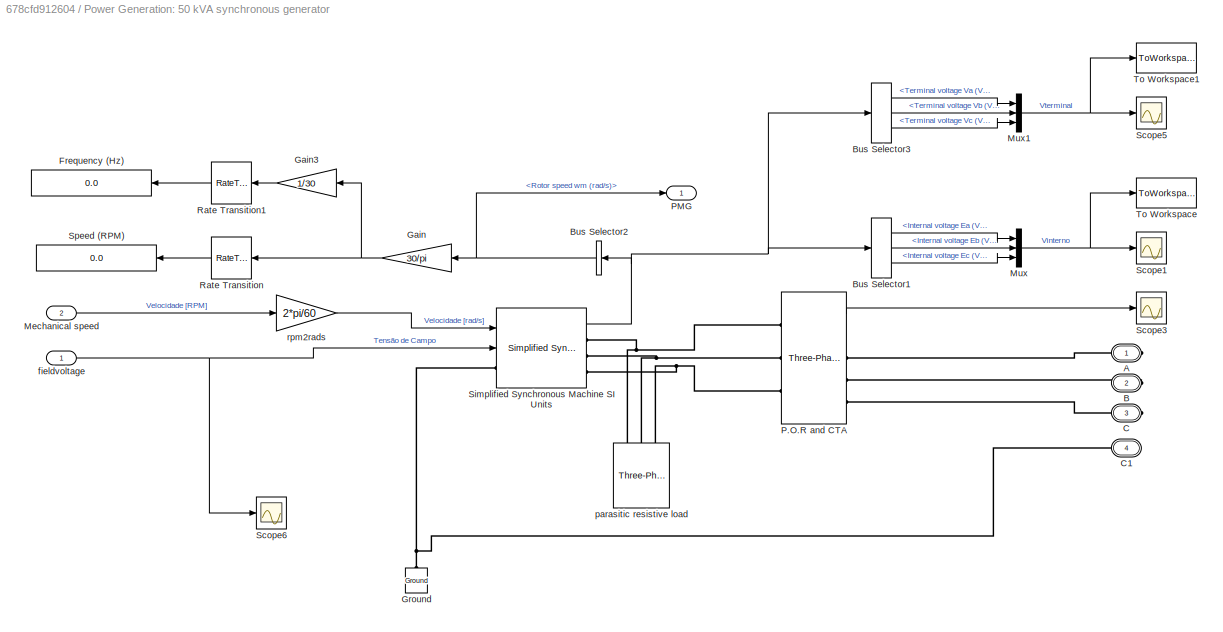
BLOCK [SubSystem] Power Generation: 50 kVA synchronous generator
  Ports = [2, 1, 0, 0, 0, 1, 3]
  RequestExecContextInheritance = off
  Variant = off
BLOCK [PMIOPort] Power Generation: 50 kVA synchronous generator/A
  Port = 1
  Side = Right
  Tag = PMCPort
BLOCK [PMIOPort] Power Generation: 50 kVA synchronous generator/B
  Port = 2
  Side = Right
  Tag = PMCPort
BLOCK [BusSelector] Power Generation: 50 kVA synchronous generator/Bus Selector1
  OutputSignals = Internal voltage Ea (V),Internal voltage Eb (V),Internal voltage Ec (V)
  Ports = [1, 3]
BLOCK [BusSelector] Power Generation: 50 kVA synchronous generator/Bus Selector2
  OutputSignals = Rotor speed wm (rad/s)
  Ports = [1, 1]
BLOCK [BusSelector] Power Generation: 50 kVA synchronous generator/Bus Selector3
  OutputSignals = Terminal voltage Va (V),Terminal voltage Vb (V),Terminal voltage Vc (V)
  Ports = [1, 3]
BLOCK [PMIOPort] Power Generation: 50 kVA synchronous generator/C
  Port = 3
  Side = Right
  Tag = PMCPort
BLOCK [PMIOPort] Power Generation: 50 kVA synchronous generator/C1
  Port = 4
  Side = Left
  Tag = PMCPort
BLOCK [Display] Power Generation: 50 kVA synchronous generator/Frequency (Hz)
  Decimation = 1
  Ports = [1]
  SampleTime = 1e-2
BLOCK [Gain] Power Generation: 50 kVA synchronous generator/Gain
  Gain = 30/pi
  OutDataTypeStr = Inherit: Inherit via internal rule
  ParamDataTypeStr = Inherit: Inherit via internal rule
  SaturateOnIntegerOverflow = off
BLOCK [Gain] Power Generation: 50 kVA synchronous generator/Gain3
  Gain = 1/30
  OutDataTypeStr = Inherit: Inherit via internal rule
  ParamDataTypeStr = Inherit: Inherit via internal rule
  SaturateOnIntegerOverflow = off
BLOCK [Reference] Power Generation: 50 kVA synchronous generator/Ground  REF=powerlib/Elements/Ground
  Ports = [0, 0, 0, 0, 0, 1]
  SourceBlock = powerlib/Elements/Ground
  SourceType = Ground
BLOCK [Inport] Power Generation: 50 kVA synchronous generator/Mechanical speed
  IconDisplay = Port number
  Port = 2
BLOCK [Mux] Power Generation: 50 kVA synchronous generator/Mux
  DisplayOption = bar
  Inputs = 3
  Ports = [3, 1]
BLOCK [Mux] Power Generation: 50 kVA synchronous generator/Mux1
  DisplayOption = bar
  Inputs = 3
  Ports = [3, 1]
BLOCK [Reference] Power Generation: 50 kVA synchronous generator/P.O.R  and CTA  REF=powerlib/Measurements/Three-Phase
V-I Measurement
  Ports = [0, 2, 0, 0, 0, 3, 3]
  SourceBlock = powerlib/Measurements/Three-Phase\nV-I Measurement
  SourceType = Three-Phase VI Measurement
BLOCK [Outport] Power Generation: 50 kVA synchronous generator/PMG
  IconDisplay = Port number
BLOCK [RateTransition] Power Generation: 50 kVA synchronous generator/Rate Transition
  OutPortSampleTime = Ts
  OutPortSampleTimeOpt = Inherit
BLOCK [RateTransition] Power Generation: 50 kVA synchronous generator/Rate Transition1
  OutPortSampleTime = Ts
  OutPortSampleTimeOpt = Inherit
BLOCK [Scope] Power Generation: 50 kVA synchronous generator/Scope1
  Ports = [1]
  ScopeSpecificationString = C++SS(StrPVP('Location','[573, 64, 1531, 519]'),StrPVP('Open','off'),StrPVP('ZoomMode','xonly'),MxPVP('AxesTitles',24,'struct(''axes1'',''%<SignalLabel>'')'),MxPVP('ScopeGraphics',28,'struct(''FigureColor'',''[0.5 0.5 0.5]'',''AxesColor'',''[0 0 0]'',''AxesTickColor'',''[1 1 1]'',''LineColors'',''[1 1 0;1 0 1;0 1 1;1 0 0;0 1 0;0 0 1]'',''LineStyles'',''-|-|-|-|-|-'',''LineWidths'',''[0.5 0.5 0.5 0...<+342ch>
BLOCK [Scope] Power Generation: 50 kVA synchronous generator/Scope3
  Ports = [1]
  ScopeSpecificationString = C++SS(StrPVP('Location','[518, 423, 1476, 878]'),StrPVP('Open','off'),MxPVP('AxesTitles',24,'struct(''axes1'',''%<SignalLabel>'')'),MxPVP('ScopeGraphics',28,'struct(''FigureColor'',''[0.5 0.5 0.5]'',''AxesColor'',''[0 0 0]'',''AxesTickColor'',''[1 1 1]'',''LineColors'',''[1 1 0;1 0 1;0 1 1;1 0 0;0 1 0;0 0 1]'',''LineStyles'',''-|-|-|-|-|-'',''LineWidths'',''[0.5 0.5 0.5 0.5 0.5 0.5]'',''MarkerStyl...<+348ch>
BLOCK [Scope] Power Generation: 50 kVA synchronous generator/Scope5
  Ports = [1]
  ScopeSpecificationString = C++SS(StrPVP('Location','[246, 171, 1204, 626]'),StrPVP('Open','off'),MxPVP('AxesTitles',24,'struct(''axes1'',''%<SignalLabel>'')'),MxPVP('ScopeGraphics',28,'struct(''FigureColor'',''[0.5 0.5 0.5]'',''AxesColor'',''[0 0 0]'',''AxesTickColor'',''[1 1 1]'',''LineColors'',''[1 1 0;1 0 1;0 1 1;1 0 0;0 1 0;0 0 1]'',''LineStyles'',''-|-|-|-|-|-'',''LineWidths'',''[0.5 0.5 0.5 0.5 0.5 0.5]'',''MarkerStyl...<+348ch>
BLOCK [Scope] Power Generation: 50 kVA synchronous generator/Scope6
  Ports = [1]
  ScopeSpecificationString = C++SS(StrPVP('Location','[573, 403, 1531, 858]'),StrPVP('Open','off'),MxPVP('AxesTitles',24,'struct(''axes1'',''%<SignalLabel>'')'),MxPVP('ScopeGraphics',28,'struct(''FigureColor'',''[0.5 0.5 0.5]'',''AxesColor'',''[0 0 0]'',''AxesTickColor'',''[1 1 1]'',''LineColors'',''[1 1 0;1 0 1;0 1 1;1 0 0;0 1 0;0 0 1]'',''LineStyles'',''-|-|-|-|-|-'',''LineWidths'',''[0.5 0.5 0.5 0.5 0.5 0.5]'',''MarkerStyl...<+347ch>
BLOCK [Reference] Power Generation: 50 kVA synchronous generator/Simplified Synchronous Machine SI Units  REF=powerlib/Machines/Simplified Synchronous
Machine SI Units
  Ports = [2, 1, 0, 0, 0, 1, 3]
  SourceBlock = powerlib/Machines/Simplified Synchronous\nMachine SI Units
  SourceType = Simplified Synchronous Machine
BLOCK [Display] Power Generation: 50 kVA synchronous generator/Speed (RPM)
  Decimation = 1
  Ports = [1]
  SampleTime = 1e-2
BLOCK [ToWorkspace] Power Generation: 50 kVA synchronous generator/To Workspace
  FixptAsFi = on
  MaxDataPoints = inf
  Ports = [1]
  SampleTime = -1
  Save2DSignal = 3-D array (concatenate along third dimension)
  SaveFormat = Structure With Time
  VariableName = Vint
BLOCK [ToWorkspace] Power Generation: 50 kVA synchronous generator/To Workspace1
  FixptAsFi = on
  MaxDataPoints = inf
  Ports = [1]
  SampleTime = -1
  Save2DSignal = 3-D array (concatenate along third dimension)
  SaveFormat = Structure With Time
  VariableName = Vterminal
BLOCK [Inport] Power Generation: 50 kVA synchronous generator/fieldvoltage
  IconDisplay = Port number
BLOCK [Reference] Power Generation: 50 kVA synchronous generator/parasitic resistive load  REF=powerlib/Elements/Three-Phase
Series RLC Load
  AttributesFormatString = \n
  Ports = [0, 0, 0, 0, 0, 3]
  SourceBlock = powerlib/Elements/Three-Phase\nSeries RLC Load
  SourceType = Three-Phase Series RLC Load
BLOCK [Gain] Power Generation: 50 kVA synchronous generator/rpm2rads
  Gain = 2*pi/60
  OutDataTypeStr = Inherit: Inherit via internal rule
  ParamDataTypeStr = Inherit: Inherit via internal rule
  SaturateOnIntegerOverflow = off
BLOCK [SubSystem] Primary Distribution (measurements & main contactor)
  Ports = [1, 2, 0, 0, 0, 4, 4]
  RequestExecContextInheritance = off
  Variant = off
BLOCK [SubSystem] Primary Distribution (measurements & main contactor)/Contactor
  Ports = [1, 0, 0, 0, 0, 3, 3]
  RequestExecContextInheritance = off
  Variant = off
BLOCK [PMIOPort] Primary Distribution (measurements & main contactor)/Contactor/A
  Port = 1
  Side = Left
BLOCK [PMIOPort] Primary Distribution (measurements & main contactor)/Contactor/B
  Port = 3
  Side = Left
BLOCK [PMIOPort] Primary Distribution (measurements & main contactor)/Contactor/C
  Port = 5
  Side = Left
BLOCK [Reference] Primary Distribution (measurements & main contactor)/Contactor/Ideal Switch  REF=powerlib/Power
Electronics/Ideal Switch
  Ports = [1, 0, 0, 0, 0, 1, 1]
  SourceBlock = powerlib/Power\nElectronics/Ideal Switch
  SourceType = Ideal Switch
BLOCK [Reference] Primary Distribution (measurements & main contactor)/Contactor/Ideal Switch1  REF=powerlib/Power
Electronics/Ideal Switch
  Ports = [1, 0, 0, 0, 0, 1, 1]
  SourceBlock = powerlib/Power\nElectronics/Ideal Switch
  SourceType = Ideal Switch
BLOCK [Reference] Primary Distribution (measurements & main contactor)/Contactor/Ideal Switch2  REF=powerlib/Power
Electronics/Ideal Switch
  Ports = [1, 0, 0, 0, 0, 1, 1]
  SourceBlock = powerlib/Power\nElectronics/Ideal Switch
  SourceType = Ideal Switch
BLOCK [PMIOPort] Primary Distribution (measurements & main contactor)/Contactor/a
  Port = 2
  Side = Right
BLOCK [PMIOPort] Primary Distribution (measurements & main contactor)/Contactor/b
  Port = 4
  Side = Right
BLOCK [PMIOPort] Primary Distribution (measurements & main contactor)/Contactor/c
  Port = 6
  Side = Right
BLOCK [Inport] Primary Distribution (measurements & main contactor)/Contactor/com
  IconDisplay = Port number
BLOCK [Reference] Primary Distribution (measurements & main contactor)/Current Measurement  REF=powerlib/Measurements/Current Measurement
  Ports = [0, 1, 0, 0, 0, 1, 1]
  SourceBlock = powerlib/Measurements/Current Measurement
  SourceType = Current Measurement
  UserDataPersistent = on
BLOCK [DataTypeConversion] Primary Distribution (measurements & main contactor)/Data Type Conversion
  RndMeth = Floor
  SaturateOnIntegerOverflow = off
BLOCK [Inport] Primary Distribution (measurements & main contactor)/GLC control
  IconDisplay = Port number
BLOCK [Outport] Primary Distribution (measurements & main contactor)/Iabc
  IconDisplay = Port number
  Port = 2
BLOCK [Reference] Primary Distribution (measurements & main contactor)/P.O.R  and CTA  REF=powerlib/Measurements/Three-Phase
V-I Measurement
  Ports = [0, 2, 0, 0, 0, 3, 3]
  SourceBlock = powerlib/Measurements/Three-Phase\nV-I Measurement
  SourceType = Three-Phase VI Measurement
BLOCK [Scope] Primary Distribution (measurements & main contactor)/Scope
  Ports = [1]
  ScopeSpecificationString = C++SS(StrPVP('Location','[188, 365, 512, 604]'),StrPVP('Open','off'),MxPVP('AxesTitles',24,'struct(''axes1'',''%<SignalLabel>'')'),MxPVP('ScopeGraphics',28,'struct(''FigureColor'',''[0.5 0.5 0.5]'',''AxesColor'',''[0 0 0]'',''AxesTickColor'',''[1 1 1]'',''LineColors'',''[1 1 0;1 0 1;0 1 1;1 0 0;0 1 0;0 0 1]'',''LineStyles'',''-|-|-|-|-|-'',''LineWidths'',''[0.5 0.5 0.5 0.5 0.5 0.5]'',''MarkerStyle...<+274ch>
BLOCK [Outport] Primary Distribution (measurements & main contactor)/Vabc
  IconDisplay = Port number
BLOCK [PMIOPort] Primary Distribution (measurements & main contactor)/in_a
  Port = 1
  Side = Left
BLOCK [PMIOPort] Primary Distribution (measurements & main contactor)/in_b
  Port = 2
  Side = Left
BLOCK [PMIOPort] Primary Distribution (measurements & main contactor)/in_c
  Port = 3
  Side = Left
BLOCK [PMIOPort] Primary Distribution (measurements & main contactor)/in_c1
  Port = 7
  Side = Left
BLOCK [PMIOPort] Primary Distribution (measurements & main contactor)/out_a
  Port = 4
  Side = Right
BLOCK [PMIOPort] Primary Distribution (measurements & main contactor)/out_b
  Port = 5
  Side = Right
BLOCK [PMIOPort] Primary Distribution (measurements & main contactor)/out_c
  Port = 6
  Side = Right
BLOCK [PMIOPort] Primary Distribution (measurements & main contactor)/out_c1
  Port = 8
  Side = Right
BLOCK [RateTransition] Rate Transition
  OutPortSampleTime = Ts
  OutPortSampleTimeOpt = Inherit
BLOCK [Reference] Series RLC Branch  REF=powerlib/Elements/Series RLC Branch
  Ports = [0, 0, 0, 0, 0, 1, 1]
  SourceBlock = powerlib/Elements/Series RLC Branch
  SourceType = Series RLC Branch
BLOCK [ToWorkspace] To Workspace1
  FixptAsFi = on
  MaxDataPoints = inf
  Ports = [1]
  SampleTime = -1
  Save2DSignal = 3-D array (concatenate along third dimension)
  SaveFormat = Structure With Time
  VariableName = Vabc
BLOCK [ToWorkspace] To Workspace2
  FixptAsFi = on
  MaxDataPoints = inf
  Ports = [1]
  SampleTime = -1
  Save2DSignal = 3-D array (concatenate along third dimension)
  SaveFormat = Structure With Time
  VariableName = Iabc
BLOCK [SubSystem] Transformer and Rectifier Unit (TRU): 28 Vdc, 3920 W
  Ports = [0, 0, 0, 0, 0, 4, 2]
  RequestExecContextInheritance = off
  Variant = off
BLOCK [PMIOPort] Transformer and Rectifier Unit (TRU): 28 Vdc, 3920 W/+
  Port = 3
  Side = Right
BLOCK [PMIOPort] Transformer and Rectifier Unit (TRU): 28 Vdc, 3920 W/-
  Port = 6
  Side = Right
BLOCK [PMIOPort] Transformer and Rectifier Unit (TRU): 28 Vdc, 3920 W/A
  Port = 1
  Side = Left
BLOCK [PMIOPort] Transformer and Rectifier Unit (TRU): 28 Vdc, 3920 W/B
  Port = 2
  Side = Left
BLOCK [PMIOPort] Transformer and Rectifier Unit (TRU): 28 Vdc, 3920 W/C
  Port = 4
  Side = Left
BLOCK [Reference] Transformer and Rectifier Unit (TRU): 28 Vdc, 3920 W/Current Measurement  REF=powerlib/Measurements/Current Measurement
  Ports = [0, 1, 0, 0, 0, 1, 1]
  SourceBlock = powerlib/Measurements/Current Measurement
  SourceType = Current Measurement
BLOCK [Scope] Transformer and Rectifier Unit (TRU): 28 Vdc, 3920 W/Iabc1
  NumInputPorts = 2
  Ports = [2]
  ScopeSpecificationString = C++SS(StrPVP('Location','[467, 347, 936, 762]'),StrPVP('Open','off'),StrPVP('ZoomMode','xonly'),MxPVP('AxesTitles',24,'struct(''axes1'',''%<SignalLabel>'',''axes2'',''%<SignalLabel>'')'),MxPVP('ScopeGraphics',28,'struct(''FigureColor'',''[0.5 0.5 0.5]'',''AxesColor'',''[0 0 0]'',''AxesTickColor'',''[1 1 1]'',''LineColors'',''[1 1 0;1 0 1;0 1 1;1 0 0;0 1 0;0 0 1]'',''LineStyles'',''-|-|-|-|-|-'',''...<+362ch>
BLOCK [Scope] Transformer and Rectifier Unit (TRU): 28 Vdc, 3920 W/Iabc4
  NumInputPorts = 2
  Ports = [2]
  ScopeSpecificationString = Simulink.scopes.TimeScopeBlockCfg('CurrentConfiguration', extmgr.ConfigurationSet(extmgr.Configuration('Core','General UI',true),extmgr.Configuration('Core','Source UI',true),extmgr.Configuration('Sources','WiredSimulink',true,'DataLoggingVariableName','ScopeData10','DataLoggingLimitDataPoints',true,'DataLoggingSaveFormat','Array','DataLoggingDecimation','1','DataLoggingDecimateData',true),extmgr....<+2393ch>
BLOCK [PMIOPort] Transformer and Rectifier Unit (TRU): 28 Vdc, 3920 W/N
  Port = 5
  Side = Left
BLOCK [Reference] Transformer and Rectifier Unit (TRU): 28 Vdc, 3920 W/P.O.R  and CTA  REF=powerlib/Measurements/Three-Phase
V-I Measurement
  Ports = [0, 2, 0, 0, 0, 3, 3]
  SourceBlock = powerlib/Measurements/Three-Phase\nV-I Measurement
  SourceType = Three-Phase VI Measurement
BLOCK [Reference] Transformer and Rectifier Unit (TRU): 28 Vdc, 3920 W/Series RLC Branch1  REF=powerlib/Elements/Series RLC Branch
  Ports = [0, 0, 0, 0, 0, 1, 1]
  SourceBlock = powerlib/Elements/Series RLC Branch
  SourceType = Series RLC Branch
BLOCK [Reference] Transformer and Rectifier Unit (TRU): 28 Vdc, 3920 W/Series RLC Branch2  REF=powerlib/Elements/Series RLC Branch
  Ports = [0, 0, 0, 0, 0, 1, 1]
  SourceBlock = powerlib/Elements/Series RLC Branch
  SourceType = Series RLC Branch
BLOCK [Reference] Transformer and Rectifier Unit (TRU): 28 Vdc, 3920 W/Series RLC Branch3  REF=powerlib/Elements/Series RLC Branch
  Ports = [0, 0, 0, 0, 0, 1, 1]
  SourceBlock = powerlib/Elements/Series RLC Branch
  SourceType = Series RLC Branch
BLOCK [Reference] Transformer and Rectifier Unit (TRU): 28 Vdc, 3920 W/Three-Phase Transformer (Three Windings)  REF=powerlib/Elements/Three-Phase
Transformer
(Three Windings)
  Ports = [0, 0, 0, 0, 0, 4, 6]
  SourceBlock = powerlib/Elements/Three-Phase\nTransformer\n(Three Windings)
  SourceType = Three-Phase Transformer (Three Windings)
BLOCK [Reference] Transformer and Rectifier Unit (TRU): 28 Vdc, 3920 W/Universal Bridge  REF=powerlib/Power
Electronics/Universal Bridge
  Ports = [0, 0, 0, 0, 0, 3, 2]
  SourceBlock = powerlib/Power\nElectronics/Universal Bridge
  SourceType = Universal Bridge
BLOCK [Reference] Transformer and Rectifier Unit (TRU): 28 Vdc, 3920 W/Universal Bridge1  REF=powerlib/Power
Electronics/Universal Bridge
  Ports = [0, 0, 0, 0, 0, 3, 2]
  SourceBlock = powerlib/Power\nElectronics/Universal Bridge
  SourceType = Universal Bridge
BLOCK [Reference] Transformer and Rectifier Unit (TRU): 28 Vdc, 3920 W/Voltage Measurement2  REF=powerlib/Measurements/Voltage Measurement
  Ports = [0, 1, 0, 0, 0, 2]
  SourceBlock = powerlib/Measurements/Voltage Measurement
  SourceType = Voltage Measurement
BLOCK [Reference] powergui  REF=powerlib/powergui
  Ports = []
  Priority = 1
  SourceBlock = powerlib/powergui
  SourceType = PSB option menu block
  UserDataPersistent = on
ANNOTATION EHA1/Inversor: Coupling Inductor
ANNOTATION EHA2/Inversor: Coupling Inductor
ANNOTATION EHA3/Inversor: Coupling Inductor
ANNOTATION Primary Distribution (measurements & main contactor): Primary Distribution
LINE Carga Indutiva 3750 VA, FP=0.8/Demux1:1 -> Carga Indutiva 3750 VA, FP=0.8/Mux:2
LINE Carga Indutiva 3750 VA, FP=0.8/Demux:1 -> Carga Indutiva 3750 VA, FP=0.8/Mux:1
LINE Carga Indutiva 3750 VA, FP=0.8/Mux:1 -> Carga Indutiva 3750 VA, FP=0.8/Iabc4:1
LINE Carga Indutiva 3750 VA, FP=0.8/P.O.R  and CTA:1 -> Carga Indutiva 3750 VA, FP=0.8/Demux:1
NET Carga Indutiva 3750 VA, FP=0.8/P.O.R  and CTA:2 -> Carga Indutiva 3750 VA, FP=0.8/Demux1:1, Carga Indutiva 3750 VA, FP=0.8/Iabc4:2
LINE Carrga Resistiva 3500 W/P.O.R  and CTA:1 -> Carrga Resistiva 3500 W/Iabc4:1
LINE Carrga Resistiva 3500 W/P.O.R  and CTA:2 -> Carrga Resistiva 3500 W/Iabc4:2
LINE Constant:1 -> Power Generation: 50 kVA synchronous generator:2
LINE EHA1/DSP/Calculo de potência Instantânea/Fcn5:1 -> EHA1/DSP/Calculo de potência Instantânea/LPF:1
LINE EHA1/DSP/Calculo de potência Instantânea/Fcn6:1 -> EHA1/DSP/Calculo de potência Instantânea/LPF1:1
LINE EHA1/DSP/Calculo de potência Instantânea/Ialpha':1 -> EHA1/DSP/Calculo de potência Instantânea/Mux2:3
LINE EHA1/DSP/Calculo de potência Instantânea/Ibeta':1 -> EHA1/DSP/Calculo de potência Instantânea/Mux2:4
LINE EHA1/DSP/Calculo de potência Instantânea/LPF1:1 -> EHA1/DSP/Calculo de potência Instantânea/qbarra':1
LINE EHA1/DSP/Calculo de potência Instantânea/LPF:1 -> EHA1/DSP/Calculo de potência Instantânea/pbarra':1
NET EHA1/DSP/Calculo de potência Instantânea/Mux2:1 -> EHA1/DSP/Calculo de potência Instantânea/Fcn5:1, EHA1/DSP/Calculo de potência Instantânea/Fcn6:1
LINE EHA1/DSP/Calculo de potência Instantânea/valpha:1 -> EHA1/DSP/Calculo de potência Instantânea/Mux2:1
LINE EHA1/DSP/Calculo de potência Instantânea/vbeta:1 -> EHA1/DSP/Calculo de potência Instantânea/Mux2:2
LINE EHA1/DSP/Calculo de potência Instantânea:1 -> EHA1/DSP/Cálculo de tensões alpha-beta:3
LINE EHA1/DSP/Calculo de potência Instantânea:2 -> EHA1/DSP/Cálculo de tensões alpha-beta:4
NET EHA1/DSP/Cálculo de tensões alpha-beta/Add8:1 -> EHA1/DSP/Cálculo de tensões alpha-beta/Divide8:2, EHA1/DSP/Cálculo de tensões alpha-beta/Divide9:2
LINE EHA1/DSP/Cálculo de tensões alpha-beta/Divide5:1 -> EHA1/DSP/Cálculo de tensões alpha-beta/Add8:1
LINE EHA1/DSP/Cálculo de tensões alpha-beta/Divide6:1 -> EHA1/DSP/Cálculo de tensões alpha-beta/Add8:2
LINE EHA1/DSP/Cálculo de tensões alpha-beta/Divide8:1 -> EHA1/DSP/Cálculo de tensões alpha-beta/valpha':1
LINE EHA1/DSP/Cálculo de tensões alpha-beta/Divide9:1 -> EHA1/DSP/Cálculo de tensões alpha-beta/vbeta':1
LINE EHA1/DSP/Cálculo de tensões alpha-beta/Fcn7:1 -> EHA1/DSP/Cálculo de tensões alpha-beta/Divide8:1
LINE EHA1/DSP/Cálculo de tensões alpha-beta/Fcn8:1 -> EHA1/DSP/Cálculo de tensões alpha-beta/Divide9:1
LINE EHA1/DSP/Cálculo de tensões alpha-beta/Gain8:1 -> EHA1/DSP/Cálculo de tensões alpha-beta/Mux6:1
LINE EHA1/DSP/Cálculo de tensões alpha-beta/Gain9:1 -> EHA1/DSP/Cálculo de tensões alpha-beta/Mux6:2
NET EHA1/DSP/Cálculo de tensões alpha-beta/Ialpha':1 -> EHA1/DSP/Cálculo de tensões alpha-beta/Divide5:1, EHA1/DSP/Cálculo de tensões alpha-beta/Divide5:2, EHA1/DSP/Cálculo de tensões alpha-beta/Mux6:3
NET EHA1/DSP/Cálculo de tensões alpha-beta/Ibeta':1 -> EHA1/DSP/Cálculo de tensões alpha-beta/Divide6:1, EHA1/DSP/Cálculo de tensões alpha-beta/Divide6:2, EHA1/DSP/Cálculo de tensões alpha-beta/Mux6:4
NET EHA1/DSP/Cálculo de tensões alpha-beta/Mux6:1 -> EHA1/DSP/Cálculo de tensões alpha-beta/Fcn7:1, EHA1/DSP/Cálculo de tensões alpha-beta/Fcn8:1
LINE EHA1/DSP/Cálculo de tensões alpha-beta/pbarra':1 -> EHA1/DSP/Cálculo de tensões alpha-beta/Gain8:1
LINE EHA1/DSP/Cálculo de tensões alpha-beta/qbarra':1 -> EHA1/DSP/Cálculo de tensões alpha-beta/Gain9:1
LINE EHA1/DSP/Cálculo de tensões alpha-beta:1 -> EHA1/DSP/Transformada Inversa de Clarke:1
LINE EHA1/DSP/Cálculo de tensões alpha-beta:2 -> EHA1/DSP/Transformada Inversa de Clarke:2
NET EHA1/DSP/Demux5:1 -> EHA1/DSP/PLL:1, EHA1/DSP/TCT:1
NET EHA1/DSP/Demux5:2 -> EHA1/DSP/PLL:2, EHA1/DSP/TCT:2
NET EHA1/DSP/Demux5:3 -> EHA1/DSP/PLL:3, EHA1/DSP/TCT:3
NET EHA1/DSP/From39:1 -> EHA1/DSP/Mux6:1, EHA1/DSP/To Workspace1:1
LINE EHA1/DSP/From40:1 -> EHA1/DSP/Mux6:2
LINE EHA1/DSP/From41:1 -> EHA1/DSP/Mux6:3
LINE EHA1/DSP/Iabc_Carga:1 -> EHA1/DSP/Subsystem:2
LINE EHA1/DSP/Mux6:1 -> EHA1/DSP/Subsystem:1
LINE EHA1/DSP/Mux:1 -> EHA1/DSP/To Workspace:1
LINE EHA1/DSP/PLL/Add10:1 -> EHA1/DSP/PLL/PID Controller:1
LINE EHA1/DSP/PLL/Add3:1 -> EHA1/DSP/PLL/Product5:2
LINE EHA1/DSP/PLL/Add4:1 -> EHA1/DSP/PLL/Product6:1
LINE EHA1/DSP/PLL/Fcn1:1 -> EHA1/DSP/PLL/Product5:1
LINE EHA1/DSP/PLL/Fcn2:1 -> EHA1/DSP/PLL/Product6:2
LINE EHA1/DSP/PLL/Fcn3:1 -> EHA1/DSP/PLL/Ialpha':1
LINE EHA1/DSP/PLL/Fcn4:1 -> EHA1/DSP/PLL/Ibeta':1
NET EHA1/DSP/PLL/Integrator:1 -> EHA1/DSP/PLL/Fcn1:1, EHA1/DSP/PLL/Fcn2:1, EHA1/DSP/PLL/Fcn3:1, EHA1/DSP/PLL/Fcn4:1
LINE EHA1/DSP/PLL/PID Controller:1 -> EHA1/DSP/PLL/Integrator:1
LINE EHA1/DSP/PLL/Product5:1 -> EHA1/DSP/PLL/Add10:1
LINE EHA1/DSP/PLL/Product6:1 -> EHA1/DSP/PLL/Add10:2
LINE EHA1/DSP/PLL/Va:1 -> EHA1/DSP/PLL/Add3:1
NET EHA1/DSP/PLL/Vb:1 -> EHA1/DSP/PLL/Add3:2, EHA1/DSP/PLL/Add4:2
LINE EHA1/DSP/PLL/Vc:1 -> EHA1/DSP/PLL/Add4:1
NET EHA1/DSP/PLL:1 -> EHA1/DSP/Calculo de potência Instantânea:1, EHA1/DSP/Cálculo de tensões alpha-beta:1
NET EHA1/DSP/PLL:2 -> EHA1/DSP/Calculo de potência Instantânea:2, EHA1/DSP/Cálculo de tensões alpha-beta:2
LINE EHA1/DSP/Subsystem/Demux6:1 -> EHA1/DSP/Subsystem/Terminator:1
LINE EHA1/DSP/Subsystem/Demux6:2 -> EHA1/DSP/Subsystem/Ialpha:1
LINE EHA1/DSP/Subsystem/Demux6:3 -> EHA1/DSP/Subsystem/Ibeta:1
LINE EHA1/DSP/Subsystem/Demux:1 -> EHA1/DSP/Subsystem/Terminator1:1
LINE EHA1/DSP/Subsystem/Demux:2 -> EHA1/DSP/Subsystem/Valpha':1
LINE EHA1/DSP/Subsystem/Demux:3 -> EHA1/DSP/Subsystem/Vbeta':1
LINE EHA1/DSP/Subsystem/Gain1:1 -> EHA1/DSP/Subsystem/Gain3:1
LINE EHA1/DSP/Subsystem/Gain2:1 -> EHA1/DSP/Subsystem/Gain4:1
NET EHA1/DSP/Subsystem/Gain3:1 -> EHA1/DSP/Subsystem/Demux:1, EHA1/DSP/Subsystem/Scope15:1
NET EHA1/DSP/Subsystem/Gain4:1 -> EHA1/DSP/Subsystem/Demux6:1, EHA1/DSP/Subsystem/Scope15:2
LINE EHA1/DSP/Subsystem/Iabc_L:1 -> EHA1/DSP/Subsystem/Gain2:1
LINE EHA1/DSP/Subsystem/Vabc':1 -> EHA1/DSP/Subsystem/Gain1:1
NET EHA1/DSP/Subsystem1/Add10:1 -> EHA1/DSP/Subsystem1/Mux:5, EHA1/DSP/Subsystem1/Posc:1, EHA1/DSP/Subsystem1/Scope18:4
NET EHA1/DSP/Subsystem1/Add3:1 -> EHA1/DSP/Subsystem1/To Workspace1:1, EHA1/DSP/Subsystem1/q:1
NET EHA1/DSP/Subsystem1/Add4:1 -> EHA1/DSP/Subsystem1/Add10:2, EHA1/DSP/Subsystem1/Mux:3
NET EHA1/DSP/Subsystem1/Add:1 -> EHA1/DSP/Subsystem1/Add4:2, EHA1/DSP/Subsystem1/LPF:1, EHA1/DSP/Subsystem1/Mux:1, EHA1/DSP/Subsystem1/Scope18:1
NET EHA1/DSP/Subsystem1/From4:1 -> EHA1/DSP/Subsystem1/Add10:1, EHA1/DSP/Subsystem1/Mux:4, EHA1/DSP/Subsystem1/Scope18:3
NET EHA1/DSP/Subsystem1/Ialpha:1 -> EHA1/DSP/Subsystem1/Product5:2, EHA1/DSP/Subsystem1/Product7:2
NET EHA1/DSP/Subsystem1/Ibeta:1 -> EHA1/DSP/Subsystem1/Product6:2, EHA1/DSP/Subsystem1/Product8:2
NET EHA1/DSP/Subsystem1/LPF:1 -> EHA1/DSP/Subsystem1/Add4:1, EHA1/DSP/Subsystem1/Mux:2, EHA1/DSP/Subsystem1/Scope18:2
LINE EHA1/DSP/Subsystem1/Mux:1 -> EHA1/DSP/Subsystem1/To Workspace:1
LINE EHA1/DSP/Subsystem1/Product5:1 -> EHA1/DSP/Subsystem1/Add:1
LINE EHA1/DSP/Subsystem1/Product6:1 -> EHA1/DSP/Subsystem1/Add:2
LINE EHA1/DSP/Subsystem1/Product7:1 -> EHA1/DSP/Subsystem1/Add3:1
LINE EHA1/DSP/Subsystem1/Product8:1 -> EHA1/DSP/Subsystem1/Add3:2
NET EHA1/DSP/Subsystem1/Valpha':1 -> EHA1/DSP/Subsystem1/Product5:1, EHA1/DSP/Subsystem1/Product8:1
NET EHA1/DSP/Subsystem1/Vbeta':1 -> EHA1/DSP/Subsystem1/Product6:1, EHA1/DSP/Subsystem1/Product7:1
LINE EHA1/DSP/Subsystem1:1 -> EHA1/DSP/Subsystem2:3
LINE EHA1/DSP/Subsystem1:2 -> EHA1/DSP/Subsystem2:4
NET EHA1/DSP/Subsystem2/Add8:1 -> EHA1/DSP/Subsystem2/Ialpha_p:1, EHA1/DSP/Subsystem2/Scope20:1
NET EHA1/DSP/Subsystem2/Add9:1 -> EHA1/DSP/Subsystem2/Ibeta_p:1, EHA1/DSP/Subsystem2/Scope20:2
LINE EHA1/DSP/Subsystem2/Divide1:1 -> EHA1/DSP/Subsystem2/Add8:1
LINE EHA1/DSP/Subsystem2/Divide2:1 -> EHA1/DSP/Subsystem2/Add8:2
LINE EHA1/DSP/Subsystem2/Divide3:1 -> EHA1/DSP/Subsystem2/Add9:1
LINE EHA1/DSP/Subsystem2/Divide4:1 -> EHA1/DSP/Subsystem2/Add9:2
NET EHA1/DSP/Subsystem2/Fcn:1 -> EHA1/DSP/Subsystem2/Divide1:3, EHA1/DSP/Subsystem2/Divide2:3, EHA1/DSP/Subsystem2/Divide3:3, EHA1/DSP/Subsystem2/Divide4:3
NET EHA1/DSP/Subsystem2/Gain5:1 -> EHA1/DSP/Subsystem2/Divide1:2, EHA1/DSP/Subsystem2/Divide3:2
NET EHA1/DSP/Subsystem2/Gain:1 -> EHA1/DSP/Subsystem2/Divide2:2, EHA1/DSP/Subsystem2/Divide4:2
LINE EHA1/DSP/Subsystem2/Mux:1 -> EHA1/DSP/Subsystem2/Fcn:1
LINE EHA1/DSP/Subsystem2/Posc:1 -> EHA1/DSP/Subsystem2/Gain5:1
NET EHA1/DSP/Subsystem2/Valpha':1 -> EHA1/DSP/Subsystem2/Divide1:1, EHA1/DSP/Subsystem2/Divide4:1, EHA1/DSP/Subsystem2/Mux:1
NET EHA1/DSP/Subsystem2/Vbeta':1 -> EHA1/DSP/Subsystem2/Divide2:1, EHA1/DSP/Subsystem2/Divide3:1, EHA1/DSP/Subsystem2/Mux:2
LINE EHA1/DSP/Subsystem2/q:1 -> EHA1/DSP/Subsystem2/Gain:1
LINE EHA1/DSP/Subsystem2:1 -> EHA1/DSP/Subsystem3:1
LINE EHA1/DSP/Subsystem2:2 -> EHA1/DSP/Subsystem3:2
NET EHA1/DSP/Subsystem3/Fcn1:1 -> EHA1/DSP/Subsystem3/Ia_C:1, EHA1/DSP/Subsystem3/Scope14:1
NET EHA1/DSP/Subsystem3/Fcn2:1 -> EHA1/DSP/Subsystem3/Ib_C:1, EHA1/DSP/Subsystem3/Scope14:2
NET EHA1/DSP/Subsystem3/Fcn3:1 -> EHA1/DSP/Subsystem3/Ic_C:1, EHA1/DSP/Subsystem3/Scope14:3
NET EHA1/DSP/Subsystem3/Ialpha_p:1 -> EHA1/DSP/Subsystem3/Mux2:1, EHA1/DSP/Subsystem3/Mux3:1, EHA1/DSP/Subsystem3/Mux5:1
NET EHA1/DSP/Subsystem3/Ibeta_p:1 -> EHA1/DSP/Subsystem3/Mux2:2, EHA1/DSP/Subsystem3/Mux3:2, EHA1/DSP/Subsystem3/Mux5:2
LINE EHA1/DSP/Subsystem3/Mux2:1 -> EHA1/DSP/Subsystem3/Fcn1:1
LINE EHA1/DSP/Subsystem3/Mux3:1 -> EHA1/DSP/Subsystem3/Fcn2:1
LINE EHA1/DSP/Subsystem3/Mux5:1 -> EHA1/DSP/Subsystem3/Fcn3:1
NET EHA1/DSP/Subsystem3:1 -> EHA1/DSP/Ia_C*:1, EHA1/DSP/Mux:1
NET EHA1/DSP/Subsystem3:2 -> EHA1/DSP/Ib_C*:1, EHA1/DSP/Mux:2
NET EHA1/DSP/Subsystem3:3 -> EHA1/DSP/Ic_C*:1, EHA1/DSP/Mux:3
NET EHA1/DSP/Subsystem:1 -> EHA1/DSP/Subsystem1:1, EHA1/DSP/Subsystem2:1
NET EHA1/DSP/Subsystem:2 -> EHA1/DSP/Subsystem1:2, EHA1/DSP/Subsystem2:2
LINE EHA1/DSP/Subsystem:3 -> EHA1/DSP/Subsystem1:3
LINE EHA1/DSP/Subsystem:4 -> EHA1/DSP/Subsystem1:4
LINE EHA1/DSP/TCT/Demux7:2 -> EHA1/DSP/TCT/valpha:1
LINE EHA1/DSP/TCT/Demux7:3 -> EHA1/DSP/TCT/vbeta:1
LINE EHA1/DSP/TCT/Gain1:1 -> EHA1/DSP/TCT/Gain3:1
LINE EHA1/DSP/TCT/Gain3:1 -> EHA1/DSP/TCT/Demux7:1
LINE EHA1/DSP/TCT/Mux2:1 -> EHA1/DSP/TCT/Gain1:1
LINE EHA1/DSP/TCT/Va:1 -> EHA1/DSP/TCT/Mux2:1
LINE EHA1/DSP/TCT/Vb:1 -> EHA1/DSP/TCT/Mux2:2
LINE EHA1/DSP/TCT/Vc:1 -> EHA1/DSP/TCT/Mux2:3
LINE EHA1/DSP/TCT:1 -> EHA1/DSP/Calculo de potência Instantânea:3
LINE EHA1/DSP/TCT:2 -> EHA1/DSP/Calculo de potência Instantânea:4
LINE EHA1/DSP/Transformada Inversa de Clarke/Demux6:1 -> EHA1/DSP/Transformada Inversa de Clarke/Mux9:1
NET EHA1/DSP/Transformada Inversa de Clarke/Fcn10:1 -> EHA1/DSP/Transformada Inversa de Clarke/Scope23:2, EHA1/DSP/Transformada Inversa de Clarke/vb':1
NET EHA1/DSP/Transformada Inversa de Clarke/Fcn11:1 -> EHA1/DSP/Transformada Inversa de Clarke/Scope23:3, EHA1/DSP/Transformada Inversa de Clarke/vc':1
NET EHA1/DSP/Transformada Inversa de Clarke/Fcn9:1 -> EHA1/DSP/Transformada Inversa de Clarke/Mux9:2, EHA1/DSP/Transformada Inversa de Clarke/va':1
LINE EHA1/DSP/Transformada Inversa de Clarke/From30:1 -> EHA1/DSP/Transformada Inversa de Clarke/Demux6:1
LINE EHA1/DSP/Transformada Inversa de Clarke/Mux3:1 -> EHA1/DSP/Transformada Inversa de Clarke/Fcn9:1
LINE EHA1/DSP/Transformada Inversa de Clarke/Mux5:1 -> EHA1/DSP/Transformada Inversa de Clarke/Fcn10:1
LINE EHA1/DSP/Transformada Inversa de Clarke/Mux8:1 -> EHA1/DSP/Transformada Inversa de Clarke/Fcn11:1
LINE EHA1/DSP/Transformada Inversa de Clarke/Mux9:1 -> EHA1/DSP/Transformada Inversa de Clarke/Scope23:1
NET EHA1/DSP/Transformada Inversa de Clarke/valpha':1 -> EHA1/DSP/Transformada Inversa de Clarke/Mux3:1, EHA1/DSP/Transformada Inversa de Clarke/Mux5:1, EHA1/DSP/Transformada Inversa de Clarke/Mux8:1
NET EHA1/DSP/Transformada Inversa de Clarke/vbeta':1 -> EHA1/DSP/Transformada Inversa de Clarke/Mux3:2, EHA1/DSP/Transformada Inversa de Clarke/Mux5:2, EHA1/DSP/Transformada Inversa de Clarke/Mux8:2
LINE EHA1/DSP/Transformada Inversa de Clarke:1 -> EHA1/DSP/Goto29:1
LINE EHA1/DSP/Transformada Inversa de Clarke:2 -> EHA1/DSP/Goto30:1
LINE EHA1/DSP/Transformada Inversa de Clarke:3 -> EHA1/DSP/Goto31:1
LINE EHA1/DSP/Vabc_Fonte:1 -> EHA1/DSP/Demux5:1
LINE EHA1/DSP:1 -> EHA1/Inversor:1
LINE EHA1/DSP:2 -> EHA1/Inversor:2
LINE EHA1/DSP:3 -> EHA1/Inversor:3
LINE EHA1/From1:1 -> EHA1/DSP:1
LINE EHA1/From2:1 -> EHA1/To Workspace1:1
LINE EHA1/From38:1 -> EHA1/DSP:2
LINE EHA1/From3:1 -> EHA1/To Workspace2:1
LINE EHA1/From4:1 -> EHA1/To Workspace3:1
LINE EHA1/From:1 -> EHA1/To Workspace:1
LINE EHA1/Inversor/From:1 -> EHA1/Inversor/To Workspace:1
LINE EHA1/Inversor/Hysteresis controller/Data Type Conversion:1 -> EHA1/Inversor/Hysteresis controller/Mux1:3
NET EHA1/Inversor/Hysteresis controller/Demux2:1 -> EHA1/Inversor/Hysteresis controller/Mux1:2, EHA1/Inversor/Hysteresis controller/Mux2:2, EHA1/Inversor/Hysteresis controller/Sum:2
LINE EHA1/Inversor/Hysteresis controller/Demux2:2 -> EHA1/Inversor/Hysteresis controller/Sum1:2
LINE EHA1/Inversor/Hysteresis controller/Demux2:3 -> EHA1/Inversor/Hysteresis controller/Sum2:2
NET EHA1/Inversor/Hysteresis controller/Demux3:1 -> EHA1/Inversor/Hysteresis controller/Mux1:1, EHA1/Inversor/Hysteresis controller/Mux2:1, EHA1/Inversor/Hysteresis controller/Sum:1
LINE EHA1/Inversor/Hysteresis controller/Demux3:2 -> EHA1/Inversor/Hysteresis controller/Sum1:1
LINE EHA1/Inversor/Hysteresis controller/Demux3:3 -> EHA1/Inversor/Hysteresis controller/Sum2:1
LINE EHA1/Inversor/Hysteresis controller/I_meas:1 -> EHA1/Inversor/Hysteresis controller/Memory1:1
LINE EHA1/Inversor/Hysteresis controller/I_ref:1 -> EHA1/Inversor/Hysteresis controller/Memory:1
LINE EHA1/Inversor/Hysteresis controller/Logical Operator4:1 -> EHA1/Inversor/Hysteresis controller/Mux3:2
LINE EHA1/Inversor/Hysteresis controller/Logical Operator5:1 -> EHA1/Inversor/Hysteresis controller/Mux3:4
LINE EHA1/Inversor/Hysteresis controller/Logical Operator6:1 -> EHA1/Inversor/Hysteresis controller/Mux3:6
LINE EHA1/Inversor/Hysteresis controller/Memory1:1 -> EHA1/Inversor/Hysteresis controller/Demux2:1
LINE EHA1/Inversor/Hysteresis controller/Memory:1 -> EHA1/Inversor/Hysteresis controller/Demux3:1
LINE EHA1/Inversor/Hysteresis controller/Mux1:1 -> EHA1/Inversor/Hysteresis controller/Scope2:1
NET EHA1/Inversor/Hysteresis controller/Mux2:1 -> EHA1/Inversor/Hysteresis controller/Scope1:1, EHA1/Inversor/Hysteresis controller/To Workspace:1
LINE EHA1/Inversor/Hysteresis controller/Mux3:1 -> EHA1/Inversor/Hysteresis controller/g:1
NET EHA1/Inversor/Hysteresis controller/Relay1:1 -> EHA1/Inversor/Hysteresis controller/Logical Operator5:1, EHA1/Inversor/Hysteresis controller/Mux3:3
NET EHA1/Inversor/Hysteresis controller/Relay2:1 -> EHA1/Inversor/Hysteresis controller/Logical Operator6:1, EHA1/Inversor/Hysteresis controller/Mux3:5
NET EHA1/Inversor/Hysteresis controller/Relay:1 -> EHA1/Inversor/Hysteresis controller/Data Type Conversion:1, EHA1/Inversor/Hysteresis controller/Logical Operator4:1, EHA1/Inversor/Hysteresis controller/Mux3:1
LINE EHA1/Inversor/Hysteresis controller/Sum1:1 -> EHA1/Inversor/Hysteresis controller/Relay1:1
LINE EHA1/Inversor/Hysteresis controller/Sum2:1 -> EHA1/Inversor/Hysteresis controller/Relay2:1
LINE EHA1/Inversor/Hysteresis controller/Sum:1 -> EHA1/Inversor/Hysteresis controller/Relay:1
LINE EHA1/Inversor/Hysteresis controller:1 -> EHA1/Inversor/Universal Bridge 3 arms:1
LINE EHA1/Inversor/Ia_ref:1 -> EHA1/Inversor/Mux1:1
LINE EHA1/Inversor/Ib_ref1:1 -> EHA1/Inversor/Mux1:2
LINE EHA1/Inversor/Ic_ref1:1 -> EHA1/Inversor/Mux1:3
LINE EHA1/Inversor/Memory:1 -> EHA1/Inversor/Hysteresis controller:1
LINE EHA1/Inversor/Mux1:1 -> EHA1/Inversor/Memory:1
LINE EHA1/Inversor/PI controller/LPF:1 -> EHA1/Inversor/PI controller/PID Controller:1
LINE EHA1/Inversor/PI controller/PID Controller:1 -> EHA1/Inversor/PI controller/Ploss:1
LINE EHA1/Inversor/PI controller/Signal Builder1:1 -> EHA1/Inversor/PI controller/Sum:2
NET EHA1/Inversor/PI controller/Sum:1 -> EHA1/Inversor/PI controller/LPF:1, EHA1/Inversor/PI controller/Scope:2
NET EHA1/Inversor/PI controller/Vdc:1 -> EHA1/Inversor/PI controller/Scope:1, EHA1/Inversor/PI controller/Sum:1
LINE EHA1/Inversor/PI controller:1 -> EHA1/Inversor/Goto22:1
NET EHA1/Inversor/V-I meas.1:1 -> EHA1/Inversor/Goto21:1, EHA1/Inversor/Hysteresis controller:2
LINE EHA1/Inversor/V-I meas.2:1 -> EHA1/Inversor/To Workspace1:1
NET EHA1/Inversor/Voltage:1 -> EHA1/Inversor/Goto20:1, EHA1/Inversor/PI controller:1
LINE EHA1/Signal Builder:1 -> EHA1/Controlled Current Source:1
NET EHA1/Three-Phase V-I Measurement1:1 -> EHA1/Goto:1, EHA1/Scope:1
NET EHA1/Three-Phase V-I Measurement1:2 -> EHA1/Goto2:1, EHA1/Scope:2
NET EHA1/Three-Phase V-I Measurement2:1 -> EHA1/Goto3:1, EHA1/Scope1:1
NET EHA1/Three-Phase V-I Measurement2:2 -> EHA1/Goto1:1, EHA1/Scope1:2
LINE EHA2/DSP/Calculo de potência Instantânea/Fcn5:1 -> EHA2/DSP/Calculo de potência Instantânea/LPF:1
LINE EHA2/DSP/Calculo de potência Instantânea/Fcn6:1 -> EHA2/DSP/Calculo de potência Instantânea/LPF1:1
LINE EHA2/DSP/Calculo de potência Instantânea/Ialpha':1 -> EHA2/DSP/Calculo de potência Instantânea/Mux2:3
LINE EHA2/DSP/Calculo de potência Instantânea/Ibeta':1 -> EHA2/DSP/Calculo de potência Instantânea/Mux2:4
LINE EHA2/DSP/Calculo de potência Instantânea/LPF1:1 -> EHA2/DSP/Calculo de potência Instantânea/qbarra':1
LINE EHA2/DSP/Calculo de potência Instantânea/LPF:1 -> EHA2/DSP/Calculo de potência Instantânea/pbarra':1
NET EHA2/DSP/Calculo de potência Instantânea/Mux2:1 -> EHA2/DSP/Calculo de potência Instantânea/Fcn5:1, EHA2/DSP/Calculo de potência Instantânea/Fcn6:1
LINE EHA2/DSP/Calculo de potência Instantânea/valpha:1 -> EHA2/DSP/Calculo de potência Instantânea/Mux2:1
LINE EHA2/DSP/Calculo de potência Instantânea/vbeta:1 -> EHA2/DSP/Calculo de potência Instantânea/Mux2:2
LINE EHA2/DSP/Calculo de potência Instantânea:1 -> EHA2/DSP/Cálculo de tensões alpha-beta:3
LINE EHA2/DSP/Calculo de potência Instantânea:2 -> EHA2/DSP/Cálculo de tensões alpha-beta:4
NET EHA2/DSP/Cálculo de tensões alpha-beta/Add8:1 -> EHA2/DSP/Cálculo de tensões alpha-beta/Divide8:2, EHA2/DSP/Cálculo de tensões alpha-beta/Divide9:2
LINE EHA2/DSP/Cálculo de tensões alpha-beta/Divide5:1 -> EHA2/DSP/Cálculo de tensões alpha-beta/Add8:1
LINE EHA2/DSP/Cálculo de tensões alpha-beta/Divide6:1 -> EHA2/DSP/Cálculo de tensões alpha-beta/Add8:2
LINE EHA2/DSP/Cálculo de tensões alpha-beta/Divide8:1 -> EHA2/DSP/Cálculo de tensões alpha-beta/valpha':1
LINE EHA2/DSP/Cálculo de tensões alpha-beta/Divide9:1 -> EHA2/DSP/Cálculo de tensões alpha-beta/vbeta':1
LINE EHA2/DSP/Cálculo de tensões alpha-beta/Fcn7:1 -> EHA2/DSP/Cálculo de tensões alpha-beta/Divide8:1
LINE EHA2/DSP/Cálculo de tensões alpha-beta/Fcn8:1 -> EHA2/DSP/Cálculo de tensões alpha-beta/Divide9:1
LINE EHA2/DSP/Cálculo de tensões alpha-beta/Gain8:1 -> EHA2/DSP/Cálculo de tensões alpha-beta/Mux6:1
LINE EHA2/DSP/Cálculo de tensões alpha-beta/Gain9:1 -> EHA2/DSP/Cálculo de tensões alpha-beta/Mux6:2
NET EHA2/DSP/Cálculo de tensões alpha-beta/Ialpha':1 -> EHA2/DSP/Cálculo de tensões alpha-beta/Divide5:1, EHA2/DSP/Cálculo de tensões alpha-beta/Divide5:2, EHA2/DSP/Cálculo de tensões alpha-beta/Mux6:3
NET EHA2/DSP/Cálculo de tensões alpha-beta/Ibeta':1 -> EHA2/DSP/Cálculo de tensões alpha-beta/Divide6:1, EHA2/DSP/Cálculo de tensões alpha-beta/Divide6:2, EHA2/DSP/Cálculo de tensões alpha-beta/Mux6:4
NET EHA2/DSP/Cálculo de tensões alpha-beta/Mux6:1 -> EHA2/DSP/Cálculo de tensões alpha-beta/Fcn7:1, EHA2/DSP/Cálculo de tensões alpha-beta/Fcn8:1
LINE EHA2/DSP/Cálculo de tensões alpha-beta/pbarra':1 -> EHA2/DSP/Cálculo de tensões alpha-beta/Gain8:1
LINE EHA2/DSP/Cálculo de tensões alpha-beta/qbarra':1 -> EHA2/DSP/Cálculo de tensões alpha-beta/Gain9:1
LINE EHA2/DSP/Cálculo de tensões alpha-beta:1 -> EHA2/DSP/Transformada Inversa de Clarke:1
LINE EHA2/DSP/Cálculo de tensões alpha-beta:2 -> EHA2/DSP/Transformada Inversa de Clarke:2
NET EHA2/DSP/Demux5:1 -> EHA2/DSP/PLL:1, EHA2/DSP/TCT:1
NET EHA2/DSP/Demux5:2 -> EHA2/DSP/PLL:2, EHA2/DSP/TCT:2
NET EHA2/DSP/Demux5:3 -> EHA2/DSP/PLL:3, EHA2/DSP/TCT:3
LINE EHA2/DSP/From39:1 -> EHA2/DSP/Mux6:1
LINE EHA2/DSP/From40:1 -> EHA2/DSP/Mux6:2
LINE EHA2/DSP/From41:1 -> EHA2/DSP/Mux6:3
LINE EHA2/DSP/Iabc_Carga:1 -> EHA2/DSP/Subsystem:2
LINE EHA2/DSP/Mux6:1 -> EHA2/DSP/Subsystem:1
LINE EHA2/DSP/PLL/Add10:1 -> EHA2/DSP/PLL/PID Controller:1
LINE EHA2/DSP/PLL/Add3:1 -> EHA2/DSP/PLL/Product5:2
LINE EHA2/DSP/PLL/Add4:1 -> EHA2/DSP/PLL/Product6:1
LINE EHA2/DSP/PLL/Fcn1:1 -> EHA2/DSP/PLL/Product5:1
LINE EHA2/DSP/PLL/Fcn2:1 -> EHA2/DSP/PLL/Product6:2
LINE EHA2/DSP/PLL/Fcn3:1 -> EHA2/DSP/PLL/Ialpha':1
LINE EHA2/DSP/PLL/Fcn4:1 -> EHA2/DSP/PLL/Ibeta':1
NET EHA2/DSP/PLL/Integrator:1 -> EHA2/DSP/PLL/Fcn1:1, EHA2/DSP/PLL/Fcn2:1, EHA2/DSP/PLL/Fcn3:1, EHA2/DSP/PLL/Fcn4:1
LINE EHA2/DSP/PLL/PID Controller:1 -> EHA2/DSP/PLL/Integrator:1
LINE EHA2/DSP/PLL/Product5:1 -> EHA2/DSP/PLL/Add10:1
LINE EHA2/DSP/PLL/Product6:1 -> EHA2/DSP/PLL/Add10:2
LINE EHA2/DSP/PLL/Va:1 -> EHA2/DSP/PLL/Add3:1
NET EHA2/DSP/PLL/Vb:1 -> EHA2/DSP/PLL/Add3:2, EHA2/DSP/PLL/Add4:2
LINE EHA2/DSP/PLL/Vc:1 -> EHA2/DSP/PLL/Add4:1
NET EHA2/DSP/PLL:1 -> EHA2/DSP/Calculo de potência Instantânea:1, EHA2/DSP/Cálculo de tensões alpha-beta:1
NET EHA2/DSP/PLL:2 -> EHA2/DSP/Calculo de potência Instantânea:2, EHA2/DSP/Cálculo de tensões alpha-beta:2
LINE EHA2/DSP/Subsystem/Demux6:1 -> EHA2/DSP/Subsystem/Terminator:1
LINE EHA2/DSP/Subsystem/Demux6:2 -> EHA2/DSP/Subsystem/Ialpha:1
LINE EHA2/DSP/Subsystem/Demux6:3 -> EHA2/DSP/Subsystem/Ibeta:1
LINE EHA2/DSP/Subsystem/Demux:1 -> EHA2/DSP/Subsystem/Terminator1:1
LINE EHA2/DSP/Subsystem/Demux:2 -> EHA2/DSP/Subsystem/Valpha':1
LINE EHA2/DSP/Subsystem/Demux:3 -> EHA2/DSP/Subsystem/Vbeta':1
LINE EHA2/DSP/Subsystem/Gain1:1 -> EHA2/DSP/Subsystem/Gain3:1
LINE EHA2/DSP/Subsystem/Gain2:1 -> EHA2/DSP/Subsystem/Gain4:1
NET EHA2/DSP/Subsystem/Gain3:1 -> EHA2/DSP/Subsystem/Demux:1, EHA2/DSP/Subsystem/Scope15:1
NET EHA2/DSP/Subsystem/Gain4:1 -> EHA2/DSP/Subsystem/Demux6:1, EHA2/DSP/Subsystem/Scope15:2
LINE EHA2/DSP/Subsystem/Iabc_L:1 -> EHA2/DSP/Subsystem/Gain2:1
LINE EHA2/DSP/Subsystem/Vabc':1 -> EHA2/DSP/Subsystem/Gain1:1
NET EHA2/DSP/Subsystem1/Add10:1 -> EHA2/DSP/Subsystem1/Mux:5, EHA2/DSP/Subsystem1/Posc:1, EHA2/DSP/Subsystem1/Scope18:4
NET EHA2/DSP/Subsystem1/Add3:1 -> EHA2/DSP/Subsystem1/To Workspace1:1, EHA2/DSP/Subsystem1/q:1
NET EHA2/DSP/Subsystem1/Add4:1 -> EHA2/DSP/Subsystem1/Add10:2, EHA2/DSP/Subsystem1/Mux:3
NET EHA2/DSP/Subsystem1/Add:1 -> EHA2/DSP/Subsystem1/Add4:2, EHA2/DSP/Subsystem1/LPF:1, EHA2/DSP/Subsystem1/Mux:1, EHA2/DSP/Subsystem1/Scope18:1
NET EHA2/DSP/Subsystem1/From4:1 -> EHA2/DSP/Subsystem1/Add10:1, EHA2/DSP/Subsystem1/Mux:4, EHA2/DSP/Subsystem1/Scope18:3
NET EHA2/DSP/Subsystem1/Ialpha:1 -> EHA2/DSP/Subsystem1/Product5:2, EHA2/DSP/Subsystem1/Product7:2
NET EHA2/DSP/Subsystem1/Ibeta:1 -> EHA2/DSP/Subsystem1/Product6:2, EHA2/DSP/Subsystem1/Product8:2
NET EHA2/DSP/Subsystem1/LPF:1 -> EHA2/DSP/Subsystem1/Add4:1, EHA2/DSP/Subsystem1/Mux:2, EHA2/DSP/Subsystem1/Scope18:2
LINE EHA2/DSP/Subsystem1/Mux:1 -> EHA2/DSP/Subsystem1/To Workspace:1
LINE EHA2/DSP/Subsystem1/Product5:1 -> EHA2/DSP/Subsystem1/Add:1
LINE EHA2/DSP/Subsystem1/Product6:1 -> EHA2/DSP/Subsystem1/Add:2
LINE EHA2/DSP/Subsystem1/Product7:1 -> EHA2/DSP/Subsystem1/Add3:1
LINE EHA2/DSP/Subsystem1/Product8:1 -> EHA2/DSP/Subsystem1/Add3:2
NET EHA2/DSP/Subsystem1/Valpha':1 -> EHA2/DSP/Subsystem1/Product5:1, EHA2/DSP/Subsystem1/Product8:1
NET EHA2/DSP/Subsystem1/Vbeta':1 -> EHA2/DSP/Subsystem1/Product6:1, EHA2/DSP/Subsystem1/Product7:1
LINE EHA2/DSP/Subsystem1:1 -> EHA2/DSP/Subsystem2:3
LINE EHA2/DSP/Subsystem1:2 -> EHA2/DSP/Subsystem2:4
NET EHA2/DSP/Subsystem2/Add8:1 -> EHA2/DSP/Subsystem2/Ialpha_p:1, EHA2/DSP/Subsystem2/Scope20:1
NET EHA2/DSP/Subsystem2/Add9:1 -> EHA2/DSP/Subsystem2/Ibeta_p:1, EHA2/DSP/Subsystem2/Scope20:2
LINE EHA2/DSP/Subsystem2/Divide1:1 -> EHA2/DSP/Subsystem2/Add8:1
LINE EHA2/DSP/Subsystem2/Divide2:1 -> EHA2/DSP/Subsystem2/Add8:2
LINE EHA2/DSP/Subsystem2/Divide3:1 -> EHA2/DSP/Subsystem2/Add9:1
LINE EHA2/DSP/Subsystem2/Divide4:1 -> EHA2/DSP/Subsystem2/Add9:2
NET EHA2/DSP/Subsystem2/Fcn:1 -> EHA2/DSP/Subsystem2/Divide1:3, EHA2/DSP/Subsystem2/Divide2:3, EHA2/DSP/Subsystem2/Divide3:3, EHA2/DSP/Subsystem2/Divide4:3
NET EHA2/DSP/Subsystem2/Gain5:1 -> EHA2/DSP/Subsystem2/Divide1:2, EHA2/DSP/Subsystem2/Divide3:2
NET EHA2/DSP/Subsystem2/Gain:1 -> EHA2/DSP/Subsystem2/Divide2:2, EHA2/DSP/Subsystem2/Divide4:2
LINE EHA2/DSP/Subsystem2/Mux:1 -> EHA2/DSP/Subsystem2/Fcn:1
LINE EHA2/DSP/Subsystem2/Posc:1 -> EHA2/DSP/Subsystem2/Gain5:1
NET EHA2/DSP/Subsystem2/Valpha':1 -> EHA2/DSP/Subsystem2/Divide1:1, EHA2/DSP/Subsystem2/Divide4:1, EHA2/DSP/Subsystem2/Mux:1
NET EHA2/DSP/Subsystem2/Vbeta':1 -> EHA2/DSP/Subsystem2/Divide2:1, EHA2/DSP/Subsystem2/Divide3:1, EHA2/DSP/Subsystem2/Mux:2
LINE EHA2/DSP/Subsystem2/q:1 -> EHA2/DSP/Subsystem2/Gain:1
LINE EHA2/DSP/Subsystem2:1 -> EHA2/DSP/Subsystem3:1
LINE EHA2/DSP/Subsystem2:2 -> EHA2/DSP/Subsystem3:2
NET EHA2/DSP/Subsystem3/Fcn1:1 -> EHA2/DSP/Subsystem3/Ia_C:1, EHA2/DSP/Subsystem3/Scope14:1
NET EHA2/DSP/Subsystem3/Fcn2:1 -> EHA2/DSP/Subsystem3/Ib_C:1, EHA2/DSP/Subsystem3/Scope14:2
NET EHA2/DSP/Subsystem3/Fcn3:1 -> EHA2/DSP/Subsystem3/Ic_C:1, EHA2/DSP/Subsystem3/Scope14:3
NET EHA2/DSP/Subsystem3/Ialpha_p:1 -> EHA2/DSP/Subsystem3/Mux2:1, EHA2/DSP/Subsystem3/Mux3:1, EHA2/DSP/Subsystem3/Mux5:1
NET EHA2/DSP/Subsystem3/Ibeta_p:1 -> EHA2/DSP/Subsystem3/Mux2:2, EHA2/DSP/Subsystem3/Mux3:2, EHA2/DSP/Subsystem3/Mux5:2
LINE EHA2/DSP/Subsystem3/Mux2:1 -> EHA2/DSP/Subsystem3/Fcn1:1
LINE EHA2/DSP/Subsystem3/Mux3:1 -> EHA2/DSP/Subsystem3/Fcn2:1
LINE EHA2/DSP/Subsystem3/Mux5:1 -> EHA2/DSP/Subsystem3/Fcn3:1
LINE EHA2/DSP/Subsystem3:1 -> EHA2/DSP/Ia_C*:1
LINE EHA2/DSP/Subsystem3:2 -> EHA2/DSP/Ib_C*:1
LINE EHA2/DSP/Subsystem3:3 -> EHA2/DSP/Ic_C*:1
NET EHA2/DSP/Subsystem:1 -> EHA2/DSP/Subsystem1:1, EHA2/DSP/Subsystem2:1
NET EHA2/DSP/Subsystem:2 -> EHA2/DSP/Subsystem1:2, EHA2/DSP/Subsystem2:2
LINE EHA2/DSP/Subsystem:3 -> EHA2/DSP/Subsystem1:3
LINE EHA2/DSP/Subsystem:4 -> EHA2/DSP/Subsystem1:4
LINE EHA2/DSP/TCT/Demux7:2 -> EHA2/DSP/TCT/valpha:1
LINE EHA2/DSP/TCT/Demux7:3 -> EHA2/DSP/TCT/vbeta:1
LINE EHA2/DSP/TCT/Gain1:1 -> EHA2/DSP/TCT/Gain3:1
LINE EHA2/DSP/TCT/Gain3:1 -> EHA2/DSP/TCT/Demux7:1
LINE EHA2/DSP/TCT/Mux2:1 -> EHA2/DSP/TCT/Gain1:1
LINE EHA2/DSP/TCT/Va:1 -> EHA2/DSP/TCT/Mux2:1
LINE EHA2/DSP/TCT/Vb:1 -> EHA2/DSP/TCT/Mux2:2
LINE EHA2/DSP/TCT/Vc:1 -> EHA2/DSP/TCT/Mux2:3
LINE EHA2/DSP/TCT:1 -> EHA2/DSP/Calculo de potência Instantânea:3
LINE EHA2/DSP/TCT:2 -> EHA2/DSP/Calculo de potência Instantânea:4
LINE EHA2/DSP/Transformada Inversa de Clarke/Demux6:1 -> EHA2/DSP/Transformada Inversa de Clarke/Mux9:1
NET EHA2/DSP/Transformada Inversa de Clarke/Fcn10:1 -> EHA2/DSP/Transformada Inversa de Clarke/Scope23:2, EHA2/DSP/Transformada Inversa de Clarke/vb':1
NET EHA2/DSP/Transformada Inversa de Clarke/Fcn11:1 -> EHA2/DSP/Transformada Inversa de Clarke/Scope23:3, EHA2/DSP/Transformada Inversa de Clarke/vc':1
NET EHA2/DSP/Transformada Inversa de Clarke/Fcn9:1 -> EHA2/DSP/Transformada Inversa de Clarke/Mux9:2, EHA2/DSP/Transformada Inversa de Clarke/va':1
LINE EHA2/DSP/Transformada Inversa de Clarke/From30:1 -> EHA2/DSP/Transformada Inversa de Clarke/Demux6:1
LINE EHA2/DSP/Transformada Inversa de Clarke/Mux3:1 -> EHA2/DSP/Transformada Inversa de Clarke/Fcn9:1
LINE EHA2/DSP/Transformada Inversa de Clarke/Mux5:1 -> EHA2/DSP/Transformada Inversa de Clarke/Fcn10:1
LINE EHA2/DSP/Transformada Inversa de Clarke/Mux8:1 -> EHA2/DSP/Transformada Inversa de Clarke/Fcn11:1
LINE EHA2/DSP/Transformada Inversa de Clarke/Mux9:1 -> EHA2/DSP/Transformada Inversa de Clarke/Scope23:1
NET EHA2/DSP/Transformada Inversa de Clarke/valpha':1 -> EHA2/DSP/Transformada Inversa de Clarke/Mux3:1, EHA2/DSP/Transformada Inversa de Clarke/Mux5:1, EHA2/DSP/Transformada Inversa de Clarke/Mux8:1
NET EHA2/DSP/Transformada Inversa de Clarke/vbeta':1 -> EHA2/DSP/Transformada Inversa de Clarke/Mux3:2, EHA2/DSP/Transformada Inversa de Clarke/Mux5:2, EHA2/DSP/Transformada Inversa de Clarke/Mux8:2
LINE EHA2/DSP/Transformada Inversa de Clarke:1 -> EHA2/DSP/Goto29:1
LINE EHA2/DSP/Transformada Inversa de Clarke:2 -> EHA2/DSP/Goto30:1
LINE EHA2/DSP/Transformada Inversa de Clarke:3 -> EHA2/DSP/Goto31:1
LINE EHA2/DSP/Vabc_Fonte:1 -> EHA2/DSP/Demux5:1
LINE EHA2/DSP:1 -> EHA2/Inversor:1
LINE EHA2/DSP:2 -> EHA2/Inversor:2
LINE EHA2/DSP:3 -> EHA2/Inversor:3
LINE EHA2/From1:1 -> EHA2/DSP:1
LINE EHA2/From38:1 -> EHA2/DSP:2
LINE EHA2/Inversor/From:1 -> EHA2/Inversor/To Workspace:1
LINE EHA2/Inversor/Hysteresis controller/Data Type Conversion:1 -> EHA2/Inversor/Hysteresis controller/Mux1:3
NET EHA2/Inversor/Hysteresis controller/Demux2:1 -> EHA2/Inversor/Hysteresis controller/Mux1:2, EHA2/Inversor/Hysteresis controller/Mux2:2, EHA2/Inversor/Hysteresis controller/Sum:2
LINE EHA2/Inversor/Hysteresis controller/Demux2:2 -> EHA2/Inversor/Hysteresis controller/Sum1:2
LINE EHA2/Inversor/Hysteresis controller/Demux2:3 -> EHA2/Inversor/Hysteresis controller/Sum2:2
NET EHA2/Inversor/Hysteresis controller/Demux3:1 -> EHA2/Inversor/Hysteresis controller/Mux1:1, EHA2/Inversor/Hysteresis controller/Mux2:1, EHA2/Inversor/Hysteresis controller/Sum:1
LINE EHA2/Inversor/Hysteresis controller/Demux3:2 -> EHA2/Inversor/Hysteresis controller/Sum1:1
LINE EHA2/Inversor/Hysteresis controller/Demux3:3 -> EHA2/Inversor/Hysteresis controller/Sum2:1
LINE EHA2/Inversor/Hysteresis controller/I_meas:1 -> EHA2/Inversor/Hysteresis controller/Memory1:1
LINE EHA2/Inversor/Hysteresis controller/I_ref:1 -> EHA2/Inversor/Hysteresis controller/Memory:1
LINE EHA2/Inversor/Hysteresis controller/Logical Operator4:1 -> EHA2/Inversor/Hysteresis controller/Mux3:2
LINE EHA2/Inversor/Hysteresis controller/Logical Operator5:1 -> EHA2/Inversor/Hysteresis controller/Mux3:4
LINE EHA2/Inversor/Hysteresis controller/Logical Operator6:1 -> EHA2/Inversor/Hysteresis controller/Mux3:6
LINE EHA2/Inversor/Hysteresis controller/Memory1:1 -> EHA2/Inversor/Hysteresis controller/Demux2:1
LINE EHA2/Inversor/Hysteresis controller/Memory:1 -> EHA2/Inversor/Hysteresis controller/Demux3:1
LINE EHA2/Inversor/Hysteresis controller/Mux1:1 -> EHA2/Inversor/Hysteresis controller/Scope2:1
LINE EHA2/Inversor/Hysteresis controller/Mux2:1 -> EHA2/Inversor/Hysteresis controller/Scope1:1
LINE EHA2/Inversor/Hysteresis controller/Mux3:1 -> EHA2/Inversor/Hysteresis controller/g:1
NET EHA2/Inversor/Hysteresis controller/Relay1:1 -> EHA2/Inversor/Hysteresis controller/Logical Operator5:1, EHA2/Inversor/Hysteresis controller/Mux3:3
NET EHA2/Inversor/Hysteresis controller/Relay2:1 -> EHA2/Inversor/Hysteresis controller/Logical Operator6:1, EHA2/Inversor/Hysteresis controller/Mux3:5
NET EHA2/Inversor/Hysteresis controller/Relay:1 -> EHA2/Inversor/Hysteresis controller/Data Type Conversion:1, EHA2/Inversor/Hysteresis controller/Logical Operator4:1, EHA2/Inversor/Hysteresis controller/Mux3:1
LINE EHA2/Inversor/Hysteresis controller/Sum1:1 -> EHA2/Inversor/Hysteresis controller/Relay1:1
LINE EHA2/Inversor/Hysteresis controller/Sum2:1 -> EHA2/Inversor/Hysteresis controller/Relay2:1
LINE EHA2/Inversor/Hysteresis controller/Sum:1 -> EHA2/Inversor/Hysteresis controller/Relay:1
LINE EHA2/Inversor/Hysteresis controller:1 -> EHA2/Inversor/Universal Bridge 3 arms:1
LINE EHA2/Inversor/Ia_ref:1 -> EHA2/Inversor/Mux1:1
LINE EHA2/Inversor/Ib_ref1:1 -> EHA2/Inversor/Mux1:2
LINE EHA2/Inversor/Ic_ref1:1 -> EHA2/Inversor/Mux1:3
LINE EHA2/Inversor/Memory:1 -> EHA2/Inversor/Hysteresis controller:1
LINE EHA2/Inversor/Mux1:1 -> EHA2/Inversor/Memory:1
LINE EHA2/Inversor/PI controller/LPF:1 -> EHA2/Inversor/PI controller/PID Controller:1
LINE EHA2/Inversor/PI controller/PID Controller:1 -> EHA2/Inversor/PI controller/Ploss:1
LINE EHA2/Inversor/PI controller/Signal Builder1:1 -> EHA2/Inversor/PI controller/Sum:2
NET EHA2/Inversor/PI controller/Sum:1 -> EHA2/Inversor/PI controller/LPF:1, EHA2/Inversor/PI controller/Scope:2
NET EHA2/Inversor/PI controller/Vdc:1 -> EHA2/Inversor/PI controller/Scope:1, EHA2/Inversor/PI controller/Sum:1
LINE EHA2/Inversor/PI controller:1 -> EHA2/Inversor/Goto22:1
NET EHA2/Inversor/V-I meas.1:1 -> EHA2/Inversor/Goto21:1, EHA2/Inversor/Hysteresis controller:2
NET EHA2/Inversor/Voltage:1 -> EHA2/Inversor/Goto20:1, EHA2/Inversor/PI controller:1
LINE EHA2/Signal Builder:1 -> EHA2/Controlled Current Source:1
NET EHA2/Three-Phase V-I Measurement1:1 -> EHA2/Goto:1, EHA2/Scope:1
LINE EHA2/Three-Phase V-I Measurement1:2 -> EHA2/Scope:2
LINE EHA2/Three-Phase V-I Measurement2:1 -> EHA2/Scope1:1
NET EHA2/Three-Phase V-I Measurement2:2 -> EHA2/Goto1:1, EHA2/Scope1:2
LINE EHA3/DSP/Calculo de potência Instantânea/Fcn5:1 -> EHA3/DSP/Calculo de potência Instantânea/LPF:1
LINE EHA3/DSP/Calculo de potência Instantânea/Fcn6:1 -> EHA3/DSP/Calculo de potência Instantânea/LPF1:1
LINE EHA3/DSP/Calculo de potência Instantânea/Ialpha':1 -> EHA3/DSP/Calculo de potência Instantânea/Mux2:3
LINE EHA3/DSP/Calculo de potência Instantânea/Ibeta':1 -> EHA3/DSP/Calculo de potência Instantânea/Mux2:4
LINE EHA3/DSP/Calculo de potência Instantânea/LPF1:1 -> EHA3/DSP/Calculo de potência Instantânea/qbarra':1
LINE EHA3/DSP/Calculo de potência Instantânea/LPF:1 -> EHA3/DSP/Calculo de potência Instantânea/pbarra':1
NET EHA3/DSP/Calculo de potência Instantânea/Mux2:1 -> EHA3/DSP/Calculo de potência Instantânea/Fcn5:1, EHA3/DSP/Calculo de potência Instantânea/Fcn6:1
LINE EHA3/DSP/Calculo de potência Instantânea/valpha:1 -> EHA3/DSP/Calculo de potência Instantânea/Mux2:1
LINE EHA3/DSP/Calculo de potência Instantânea/vbeta:1 -> EHA3/DSP/Calculo de potência Instantânea/Mux2:2
LINE EHA3/DSP/Calculo de potência Instantânea:1 -> EHA3/DSP/Cálculo de tensões alpha-beta:3
LINE EHA3/DSP/Calculo de potência Instantânea:2 -> EHA3/DSP/Cálculo de tensões alpha-beta:4
NET EHA3/DSP/Cálculo de tensões alpha-beta/Add8:1 -> EHA3/DSP/Cálculo de tensões alpha-beta/Divide8:2, EHA3/DSP/Cálculo de tensões alpha-beta/Divide9:2
LINE EHA3/DSP/Cálculo de tensões alpha-beta/Divide5:1 -> EHA3/DSP/Cálculo de tensões alpha-beta/Add8:1
LINE EHA3/DSP/Cálculo de tensões alpha-beta/Divide6:1 -> EHA3/DSP/Cálculo de tensões alpha-beta/Add8:2
LINE EHA3/DSP/Cálculo de tensões alpha-beta/Divide8:1 -> EHA3/DSP/Cálculo de tensões alpha-beta/valpha':1
LINE EHA3/DSP/Cálculo de tensões alpha-beta/Divide9:1 -> EHA3/DSP/Cálculo de tensões alpha-beta/vbeta':1
LINE EHA3/DSP/Cálculo de tensões alpha-beta/Fcn7:1 -> EHA3/DSP/Cálculo de tensões alpha-beta/Divide8:1
LINE EHA3/DSP/Cálculo de tensões alpha-beta/Fcn8:1 -> EHA3/DSP/Cálculo de tensões alpha-beta/Divide9:1
LINE EHA3/DSP/Cálculo de tensões alpha-beta/Gain8:1 -> EHA3/DSP/Cálculo de tensões alpha-beta/Mux6:1
LINE EHA3/DSP/Cálculo de tensões alpha-beta/Gain9:1 -> EHA3/DSP/Cálculo de tensões alpha-beta/Mux6:2
NET EHA3/DSP/Cálculo de tensões alpha-beta/Ialpha':1 -> EHA3/DSP/Cálculo de tensões alpha-beta/Divide5:1, EHA3/DSP/Cálculo de tensões alpha-beta/Divide5:2, EHA3/DSP/Cálculo de tensões alpha-beta/Mux6:3
NET EHA3/DSP/Cálculo de tensões alpha-beta/Ibeta':1 -> EHA3/DSP/Cálculo de tensões alpha-beta/Divide6:1, EHA3/DSP/Cálculo de tensões alpha-beta/Divide6:2, EHA3/DSP/Cálculo de tensões alpha-beta/Mux6:4
NET EHA3/DSP/Cálculo de tensões alpha-beta/Mux6:1 -> EHA3/DSP/Cálculo de tensões alpha-beta/Fcn7:1, EHA3/DSP/Cálculo de tensões alpha-beta/Fcn8:1
LINE EHA3/DSP/Cálculo de tensões alpha-beta/pbarra':1 -> EHA3/DSP/Cálculo de tensões alpha-beta/Gain8:1
LINE EHA3/DSP/Cálculo de tensões alpha-beta/qbarra':1 -> EHA3/DSP/Cálculo de tensões alpha-beta/Gain9:1
LINE EHA3/DSP/Cálculo de tensões alpha-beta:1 -> EHA3/DSP/Transformada Inversa de Clarke:1
LINE EHA3/DSP/Cálculo de tensões alpha-beta:2 -> EHA3/DSP/Transformada Inversa de Clarke:2
NET EHA3/DSP/Demux5:1 -> EHA3/DSP/PLL:1, EHA3/DSP/TCT:1
NET EHA3/DSP/Demux5:2 -> EHA3/DSP/PLL:2, EHA3/DSP/TCT:2
NET EHA3/DSP/Demux5:3 -> EHA3/DSP/PLL:3, EHA3/DSP/TCT:3
LINE EHA3/DSP/From39:1 -> EHA3/DSP/Mux6:1
LINE EHA3/DSP/From40:1 -> EHA3/DSP/Mux6:2
LINE EHA3/DSP/From41:1 -> EHA3/DSP/Mux6:3
LINE EHA3/DSP/Iabc_Carga:1 -> EHA3/DSP/Subsystem:2
LINE EHA3/DSP/Mux6:1 -> EHA3/DSP/Subsystem:1
LINE EHA3/DSP/PLL/Add10:1 -> EHA3/DSP/PLL/PID Controller:1
LINE EHA3/DSP/PLL/Add3:1 -> EHA3/DSP/PLL/Product5:2
LINE EHA3/DSP/PLL/Add4:1 -> EHA3/DSP/PLL/Product6:1
LINE EHA3/DSP/PLL/Fcn1:1 -> EHA3/DSP/PLL/Product5:1
LINE EHA3/DSP/PLL/Fcn2:1 -> EHA3/DSP/PLL/Product6:2
LINE EHA3/DSP/PLL/Fcn3:1 -> EHA3/DSP/PLL/Ialpha':1
LINE EHA3/DSP/PLL/Fcn4:1 -> EHA3/DSP/PLL/Ibeta':1
NET EHA3/DSP/PLL/Integrator:1 -> EHA3/DSP/PLL/Fcn1:1, EHA3/DSP/PLL/Fcn2:1, EHA3/DSP/PLL/Fcn3:1, EHA3/DSP/PLL/Fcn4:1
LINE EHA3/DSP/PLL/PID Controller:1 -> EHA3/DSP/PLL/Integrator:1
LINE EHA3/DSP/PLL/Product5:1 -> EHA3/DSP/PLL/Add10:1
LINE EHA3/DSP/PLL/Product6:1 -> EHA3/DSP/PLL/Add10:2
LINE EHA3/DSP/PLL/Va:1 -> EHA3/DSP/PLL/Add3:1
NET EHA3/DSP/PLL/Vb:1 -> EHA3/DSP/PLL/Add3:2, EHA3/DSP/PLL/Add4:2
LINE EHA3/DSP/PLL/Vc:1 -> EHA3/DSP/PLL/Add4:1
NET EHA3/DSP/PLL:1 -> EHA3/DSP/Calculo de potência Instantânea:1, EHA3/DSP/Cálculo de tensões alpha-beta:1
NET EHA3/DSP/PLL:2 -> EHA3/DSP/Calculo de potência Instantânea:2, EHA3/DSP/Cálculo de tensões alpha-beta:2
LINE EHA3/DSP/Subsystem/Demux6:1 -> EHA3/DSP/Subsystem/Terminator:1
LINE EHA3/DSP/Subsystem/Demux6:2 -> EHA3/DSP/Subsystem/Ialpha:1
LINE EHA3/DSP/Subsystem/Demux6:3 -> EHA3/DSP/Subsystem/Ibeta:1
LINE EHA3/DSP/Subsystem/Demux:1 -> EHA3/DSP/Subsystem/Terminator1:1
LINE EHA3/DSP/Subsystem/Demux:2 -> EHA3/DSP/Subsystem/Valpha':1
LINE EHA3/DSP/Subsystem/Demux:3 -> EHA3/DSP/Subsystem/Vbeta':1
LINE EHA3/DSP/Subsystem/Gain1:1 -> EHA3/DSP/Subsystem/Gain3:1
LINE EHA3/DSP/Subsystem/Gain2:1 -> EHA3/DSP/Subsystem/Gain4:1
NET EHA3/DSP/Subsystem/Gain3:1 -> EHA3/DSP/Subsystem/Demux:1, EHA3/DSP/Subsystem/Scope15:1
NET EHA3/DSP/Subsystem/Gain4:1 -> EHA3/DSP/Subsystem/Demux6:1, EHA3/DSP/Subsystem/Scope15:2
LINE EHA3/DSP/Subsystem/Iabc_L:1 -> EHA3/DSP/Subsystem/Gain2:1
LINE EHA3/DSP/Subsystem/Vabc':1 -> EHA3/DSP/Subsystem/Gain1:1
NET EHA3/DSP/Subsystem1/Add10:1 -> EHA3/DSP/Subsystem1/Mux:5, EHA3/DSP/Subsystem1/Posc:1, EHA3/DSP/Subsystem1/Scope18:4
NET EHA3/DSP/Subsystem1/Add3:1 -> EHA3/DSP/Subsystem1/To Workspace1:1, EHA3/DSP/Subsystem1/q:1
NET EHA3/DSP/Subsystem1/Add4:1 -> EHA3/DSP/Subsystem1/Add10:2, EHA3/DSP/Subsystem1/Mux:3
NET EHA3/DSP/Subsystem1/Add:1 -> EHA3/DSP/Subsystem1/Add4:2, EHA3/DSP/Subsystem1/LPF:1, EHA3/DSP/Subsystem1/Mux:1, EHA3/DSP/Subsystem1/Scope18:1
NET EHA3/DSP/Subsystem1/From4:1 -> EHA3/DSP/Subsystem1/Add10:1, EHA3/DSP/Subsystem1/Mux:4, EHA3/DSP/Subsystem1/Scope18:3
NET EHA3/DSP/Subsystem1/Ialpha:1 -> EHA3/DSP/Subsystem1/Product5:2, EHA3/DSP/Subsystem1/Product7:2
NET EHA3/DSP/Subsystem1/Ibeta:1 -> EHA3/DSP/Subsystem1/Product6:2, EHA3/DSP/Subsystem1/Product8:2
NET EHA3/DSP/Subsystem1/LPF:1 -> EHA3/DSP/Subsystem1/Add4:1, EHA3/DSP/Subsystem1/Mux:2, EHA3/DSP/Subsystem1/Scope18:2
LINE EHA3/DSP/Subsystem1/Mux:1 -> EHA3/DSP/Subsystem1/To Workspace:1
LINE EHA3/DSP/Subsystem1/Product5:1 -> EHA3/DSP/Subsystem1/Add:1
LINE EHA3/DSP/Subsystem1/Product6:1 -> EHA3/DSP/Subsystem1/Add:2
LINE EHA3/DSP/Subsystem1/Product7:1 -> EHA3/DSP/Subsystem1/Add3:1
LINE EHA3/DSP/Subsystem1/Product8:1 -> EHA3/DSP/Subsystem1/Add3:2
NET EHA3/DSP/Subsystem1/Valpha':1 -> EHA3/DSP/Subsystem1/Product5:1, EHA3/DSP/Subsystem1/Product8:1
NET EHA3/DSP/Subsystem1/Vbeta':1 -> EHA3/DSP/Subsystem1/Product6:1, EHA3/DSP/Subsystem1/Product7:1
LINE EHA3/DSP/Subsystem1:1 -> EHA3/DSP/Subsystem2:3
LINE EHA3/DSP/Subsystem1:2 -> EHA3/DSP/Subsystem2:4
NET EHA3/DSP/Subsystem2/Add8:1 -> EHA3/DSP/Subsystem2/Ialpha_p:1, EHA3/DSP/Subsystem2/Scope20:1
NET EHA3/DSP/Subsystem2/Add9:1 -> EHA3/DSP/Subsystem2/Ibeta_p:1, EHA3/DSP/Subsystem2/Scope20:2
LINE EHA3/DSP/Subsystem2/Divide1:1 -> EHA3/DSP/Subsystem2/Add8:1
LINE EHA3/DSP/Subsystem2/Divide2:1 -> EHA3/DSP/Subsystem2/Add8:2
LINE EHA3/DSP/Subsystem2/Divide3:1 -> EHA3/DSP/Subsystem2/Add9:1
LINE EHA3/DSP/Subsystem2/Divide4:1 -> EHA3/DSP/Subsystem2/Add9:2
NET EHA3/DSP/Subsystem2/Fcn:1 -> EHA3/DSP/Subsystem2/Divide1:3, EHA3/DSP/Subsystem2/Divide2:3, EHA3/DSP/Subsystem2/Divide3:3, EHA3/DSP/Subsystem2/Divide4:3
NET EHA3/DSP/Subsystem2/Gain5:1 -> EHA3/DSP/Subsystem2/Divide1:2, EHA3/DSP/Subsystem2/Divide3:2
NET EHA3/DSP/Subsystem2/Gain:1 -> EHA3/DSP/Subsystem2/Divide2:2, EHA3/DSP/Subsystem2/Divide4:2
LINE EHA3/DSP/Subsystem2/Mux:1 -> EHA3/DSP/Subsystem2/Fcn:1
LINE EHA3/DSP/Subsystem2/Posc:1 -> EHA3/DSP/Subsystem2/Gain5:1
NET EHA3/DSP/Subsystem2/Valpha':1 -> EHA3/DSP/Subsystem2/Divide1:1, EHA3/DSP/Subsystem2/Divide4:1, EHA3/DSP/Subsystem2/Mux:1
NET EHA3/DSP/Subsystem2/Vbeta':1 -> EHA3/DSP/Subsystem2/Divide2:1, EHA3/DSP/Subsystem2/Divide3:1, EHA3/DSP/Subsystem2/Mux:2
LINE EHA3/DSP/Subsystem2/q:1 -> EHA3/DSP/Subsystem2/Gain:1
LINE EHA3/DSP/Subsystem2:1 -> EHA3/DSP/Subsystem3:1
LINE EHA3/DSP/Subsystem2:2 -> EHA3/DSP/Subsystem3:2
NET EHA3/DSP/Subsystem3/Fcn1:1 -> EHA3/DSP/Subsystem3/Ia_C:1, EHA3/DSP/Subsystem3/Scope14:1
NET EHA3/DSP/Subsystem3/Fcn2:1 -> EHA3/DSP/Subsystem3/Ib_C:1, EHA3/DSP/Subsystem3/Scope14:2
NET EHA3/DSP/Subsystem3/Fcn3:1 -> EHA3/DSP/Subsystem3/Ic_C:1, EHA3/DSP/Subsystem3/Scope14:3
NET EHA3/DSP/Subsystem3/Ialpha_p:1 -> EHA3/DSP/Subsystem3/Mux2:1, EHA3/DSP/Subsystem3/Mux3:1, EHA3/DSP/Subsystem3/Mux5:1
NET EHA3/DSP/Subsystem3/Ibeta_p:1 -> EHA3/DSP/Subsystem3/Mux2:2, EHA3/DSP/Subsystem3/Mux3:2, EHA3/DSP/Subsystem3/Mux5:2
LINE EHA3/DSP/Subsystem3/Mux2:1 -> EHA3/DSP/Subsystem3/Fcn1:1
LINE EHA3/DSP/Subsystem3/Mux3:1 -> EHA3/DSP/Subsystem3/Fcn2:1
LINE EHA3/DSP/Subsystem3/Mux5:1 -> EHA3/DSP/Subsystem3/Fcn3:1
LINE EHA3/DSP/Subsystem3:1 -> EHA3/DSP/Ia_C*:1
LINE EHA3/DSP/Subsystem3:2 -> EHA3/DSP/Ib_C*:1
LINE EHA3/DSP/Subsystem3:3 -> EHA3/DSP/Ic_C*:1
NET EHA3/DSP/Subsystem:1 -> EHA3/DSP/Subsystem1:1, EHA3/DSP/Subsystem2:1
NET EHA3/DSP/Subsystem:2 -> EHA3/DSP/Subsystem1:2, EHA3/DSP/Subsystem2:2
LINE EHA3/DSP/Subsystem:3 -> EHA3/DSP/Subsystem1:3
LINE EHA3/DSP/Subsystem:4 -> EHA3/DSP/Subsystem1:4
LINE EHA3/DSP/TCT/Demux7:2 -> EHA3/DSP/TCT/valpha:1
LINE EHA3/DSP/TCT/Demux7:3 -> EHA3/DSP/TCT/vbeta:1
LINE EHA3/DSP/TCT/Gain1:1 -> EHA3/DSP/TCT/Gain3:1
LINE EHA3/DSP/TCT/Gain3:1 -> EHA3/DSP/TCT/Demux7:1
LINE EHA3/DSP/TCT/Mux2:1 -> EHA3/DSP/TCT/Gain1:1
LINE EHA3/DSP/TCT/Va:1 -> EHA3/DSP/TCT/Mux2:1
LINE EHA3/DSP/TCT/Vb:1 -> EHA3/DSP/TCT/Mux2:2
LINE EHA3/DSP/TCT/Vc:1 -> EHA3/DSP/TCT/Mux2:3
LINE EHA3/DSP/TCT:1 -> EHA3/DSP/Calculo de potência Instantânea:3
LINE EHA3/DSP/TCT:2 -> EHA3/DSP/Calculo de potência Instantânea:4
LINE EHA3/DSP/Transformada Inversa de Clarke/Demux6:1 -> EHA3/DSP/Transformada Inversa de Clarke/Mux9:1
NET EHA3/DSP/Transformada Inversa de Clarke/Fcn10:1 -> EHA3/DSP/Transformada Inversa de Clarke/Scope23:2, EHA3/DSP/Transformada Inversa de Clarke/vb':1
NET EHA3/DSP/Transformada Inversa de Clarke/Fcn11:1 -> EHA3/DSP/Transformada Inversa de Clarke/Scope23:3, EHA3/DSP/Transformada Inversa de Clarke/vc':1
NET EHA3/DSP/Transformada Inversa de Clarke/Fcn9:1 -> EHA3/DSP/Transformada Inversa de Clarke/Mux9:2, EHA3/DSP/Transformada Inversa de Clarke/va':1
LINE EHA3/DSP/Transformada Inversa de Clarke/From30:1 -> EHA3/DSP/Transformada Inversa de Clarke/Demux6:1
LINE EHA3/DSP/Transformada Inversa de Clarke/Mux3:1 -> EHA3/DSP/Transformada Inversa de Clarke/Fcn9:1
LINE EHA3/DSP/Transformada Inversa de Clarke/Mux5:1 -> EHA3/DSP/Transformada Inversa de Clarke/Fcn10:1
LINE EHA3/DSP/Transformada Inversa de Clarke/Mux8:1 -> EHA3/DSP/Transformada Inversa de Clarke/Fcn11:1
LINE EHA3/DSP/Transformada Inversa de Clarke/Mux9:1 -> EHA3/DSP/Transformada Inversa de Clarke/Scope23:1
NET EHA3/DSP/Transformada Inversa de Clarke/valpha':1 -> EHA3/DSP/Transformada Inversa de Clarke/Mux3:1, EHA3/DSP/Transformada Inversa de Clarke/Mux5:1, EHA3/DSP/Transformada Inversa de Clarke/Mux8:1
NET EHA3/DSP/Transformada Inversa de Clarke/vbeta':1 -> EHA3/DSP/Transformada Inversa de Clarke/Mux3:2, EHA3/DSP/Transformada Inversa de Clarke/Mux5:2, EHA3/DSP/Transformada Inversa de Clarke/Mux8:2
LINE EHA3/DSP/Transformada Inversa de Clarke:1 -> EHA3/DSP/Goto29:1
LINE EHA3/DSP/Transformada Inversa de Clarke:2 -> EHA3/DSP/Goto30:1
LINE EHA3/DSP/Transformada Inversa de Clarke:3 -> EHA3/DSP/Goto31:1
LINE EHA3/DSP/Vabc_Fonte:1 -> EHA3/DSP/Demux5:1
LINE EHA3/DSP:1 -> EHA3/Inversor:1
LINE EHA3/DSP:2 -> EHA3/Inversor:2
LINE EHA3/DSP:3 -> EHA3/Inversor:3
LINE EHA3/From1:1 -> EHA3/DSP:1
LINE EHA3/From38:1 -> EHA3/DSP:2
LINE EHA3/Inversor/From:1 -> EHA3/Inversor/To Workspace:1
LINE EHA3/Inversor/Hysteresis controller/Data Type Conversion:1 -> EHA3/Inversor/Hysteresis controller/Mux1:3
NET EHA3/Inversor/Hysteresis controller/Demux2:1 -> EHA3/Inversor/Hysteresis controller/Mux1:2, EHA3/Inversor/Hysteresis controller/Mux2:2, EHA3/Inversor/Hysteresis controller/Sum:2
LINE EHA3/Inversor/Hysteresis controller/Demux2:2 -> EHA3/Inversor/Hysteresis controller/Sum1:2
LINE EHA3/Inversor/Hysteresis controller/Demux2:3 -> EHA3/Inversor/Hysteresis controller/Sum2:2
NET EHA3/Inversor/Hysteresis controller/Demux3:1 -> EHA3/Inversor/Hysteresis controller/Mux1:1, EHA3/Inversor/Hysteresis controller/Mux2:1, EHA3/Inversor/Hysteresis controller/Sum:1
LINE EHA3/Inversor/Hysteresis controller/Demux3:2 -> EHA3/Inversor/Hysteresis controller/Sum1:1
LINE EHA3/Inversor/Hysteresis controller/Demux3:3 -> EHA3/Inversor/Hysteresis controller/Sum2:1
LINE EHA3/Inversor/Hysteresis controller/I_meas:1 -> EHA3/Inversor/Hysteresis controller/Memory1:1
LINE EHA3/Inversor/Hysteresis controller/I_ref:1 -> EHA3/Inversor/Hysteresis controller/Memory:1
LINE EHA3/Inversor/Hysteresis controller/Logical Operator4:1 -> EHA3/Inversor/Hysteresis controller/Mux3:2
LINE EHA3/Inversor/Hysteresis controller/Logical Operator5:1 -> EHA3/Inversor/Hysteresis controller/Mux3:4
LINE EHA3/Inversor/Hysteresis controller/Logical Operator6:1 -> EHA3/Inversor/Hysteresis controller/Mux3:6
LINE EHA3/Inversor/Hysteresis controller/Memory1:1 -> EHA3/Inversor/Hysteresis controller/Demux2:1
LINE EHA3/Inversor/Hysteresis controller/Memory:1 -> EHA3/Inversor/Hysteresis controller/Demux3:1
LINE EHA3/Inversor/Hysteresis controller/Mux1:1 -> EHA3/Inversor/Hysteresis controller/Scope2:1
LINE EHA3/Inversor/Hysteresis controller/Mux2:1 -> EHA3/Inversor/Hysteresis controller/Scope1:1
LINE EHA3/Inversor/Hysteresis controller/Mux3:1 -> EHA3/Inversor/Hysteresis controller/g:1
NET EHA3/Inversor/Hysteresis controller/Relay1:1 -> EHA3/Inversor/Hysteresis controller/Logical Operator5:1, EHA3/Inversor/Hysteresis controller/Mux3:3
NET EHA3/Inversor/Hysteresis controller/Relay2:1 -> EHA3/Inversor/Hysteresis controller/Logical Operator6:1, EHA3/Inversor/Hysteresis controller/Mux3:5
NET EHA3/Inversor/Hysteresis controller/Relay:1 -> EHA3/Inversor/Hysteresis controller/Data Type Conversion:1, EHA3/Inversor/Hysteresis controller/Logical Operator4:1, EHA3/Inversor/Hysteresis controller/Mux3:1
LINE EHA3/Inversor/Hysteresis controller/Sum1:1 -> EHA3/Inversor/Hysteresis controller/Relay1:1
LINE EHA3/Inversor/Hysteresis controller/Sum2:1 -> EHA3/Inversor/Hysteresis controller/Relay2:1
LINE EHA3/Inversor/Hysteresis controller/Sum:1 -> EHA3/Inversor/Hysteresis controller/Relay:1
LINE EHA3/Inversor/Hysteresis controller:1 -> EHA3/Inversor/Universal Bridge 3 arms:1
LINE EHA3/Inversor/Ia_ref:1 -> EHA3/Inversor/Mux1:1
LINE EHA3/Inversor/Ib_ref1:1 -> EHA3/Inversor/Mux1:2
LINE EHA3/Inversor/Ic_ref1:1 -> EHA3/Inversor/Mux1:3
LINE EHA3/Inversor/Memory:1 -> EHA3/Inversor/Hysteresis controller:1
LINE EHA3/Inversor/Mux1:1 -> EHA3/Inversor/Memory:1
LINE EHA3/Inversor/PI controller/LPF:1 -> EHA3/Inversor/PI controller/PID Controller:1
LINE EHA3/Inversor/PI controller/PID Controller:1 -> EHA3/Inversor/PI controller/Ploss:1
LINE EHA3/Inversor/PI controller/Signal Builder1:1 -> EHA3/Inversor/PI controller/Sum:2
NET EHA3/Inversor/PI controller/Sum:1 -> EHA3/Inversor/PI controller/LPF:1, EHA3/Inversor/PI controller/Scope:2
NET EHA3/Inversor/PI controller/Vdc:1 -> EHA3/Inversor/PI controller/Scope:1, EHA3/Inversor/PI controller/Sum:1
LINE EHA3/Inversor/PI controller:1 -> EHA3/Inversor/Goto22:1
NET EHA3/Inversor/V-I meas.1:1 -> EHA3/Inversor/Goto21:1, EHA3/Inversor/Hysteresis controller:2
NET EHA3/Inversor/Voltage:1 -> EHA3/Inversor/Goto20:1, EHA3/Inversor/PI controller:1
LINE EHA3/Signal Builder:1 -> EHA3/Controlled Current Source:1
NET EHA3/Three-Phase V-I Measurement1:1 -> EHA3/Goto:1, EHA3/Scope:1
LINE EHA3/Three-Phase V-I Measurement1:2 -> EHA3/Scope:2
LINE EHA3/Three-Phase V-I Measurement2:1 -> EHA3/Scope1:1
NET EHA3/Three-Phase V-I Measurement2:2 -> EHA3/Goto1:1, EHA3/Scope1:2
LINE Generator Control Unit (GCU)/Demux:1 -> Generator Control Unit (GCU)/Excitation System:2
LINE Generator Control Unit (GCU)/Demux:2 -> Generator Control Unit (GCU)/Excitation System:3
LINE Generator Control Unit (GCU)/Demux:3 -> Generator Control Unit (GCU)/Terminator2:1
LINE Generator Control Unit (GCU)/Excitation System:1 -> Generator Control Unit (GCU)/PU_SI:1
LINE Generator Control Unit (GCU)/Gain:1 -> Generator Control Unit (GCU)/abc to dq0:2
LINE Generator Control Unit (GCU)/Integrator:1 -> Generator Control Unit (GCU)/Gain:1
NET Generator Control Unit (GCU)/PMG:1 -> Generator Control Unit (GCU)/Integrator:1, Generator Control Unit (GCU)/Rad_Rpm:1
LINE Generator Control Unit (GCU)/PU_SI:1 -> Generator Control Unit (GCU)/Field voltage:1
LINE Generator Control Unit (GCU)/Rad_Rpm:1 -> Generator Control Unit (GCU)/Relay:1
LINE Generator Control Unit (GCU)/Relay:1 -> Generator Control Unit (GCU)/GLC:1
LINE Generator Control Unit (GCU)/SI_PU:1 -> Generator Control Unit (GCU)/abc to dq0:1
LINE Generator Control Unit (GCU)/Vref:1 -> Generator Control Unit (GCU)/Excitation System:1
LINE Generator Control Unit (GCU)/abc to dq0:1 -> Generator Control Unit (GCU)/Demux:1
LINE Generator Control Unit (GCU)/current sensing:1 -> Generator Control Unit (GCU)/Terminator1:1
LINE Generator Control Unit (GCU)/threshold3:1 -> Generator Control Unit (GCU)/Excitation System:4
LINE Generator Control Unit (GCU)/voltage sensing:1 -> Generator Control Unit (GCU)/SI_PU:1
LINE Generator Control Unit (GCU):1 -> Power Generation: 50 kVA synchronous generator:1
NET Generator Control Unit (GCU):2 -> Primary Distribution (measurements & main contactor):1, Rate Transition:1
LINE Power Generation: 50 kVA synchronous generator/Bus Selector1:1 -> Power Generation: 50 kVA synchronous generator/Mux:1
LINE Power Generation: 50 kVA synchronous generator/Bus Selector1:2 -> Power Generation: 50 kVA synchronous generator/Mux:2
LINE Power Generation: 50 kVA synchronous generator/Bus Selector1:3 -> Power Generation: 50 kVA synchronous generator/Mux:3
NET Power Generation: 50 kVA synchronous generator/Bus Selector2:1 -> Power Generation: 50 kVA synchronous generator/Gain:1, Power Generation: 50 kVA synchronous generator/PMG:1
LINE Power Generation: 50 kVA synchronous generator/Bus Selector3:1 -> Power Generation: 50 kVA synchronous generator/Mux1:1
LINE Power Generation: 50 kVA synchronous generator/Bus Selector3:2 -> Power Generation: 50 kVA synchronous generator/Mux1:2
LINE Power Generation: 50 kVA synchronous generator/Bus Selector3:3 -> Power Generation: 50 kVA synchronous generator/Mux1:3
LINE Power Generation: 50 kVA synchronous generator/Gain3:1 -> Power Generation: 50 kVA synchronous generator/Rate Transition1:1
NET Power Generation: 50 kVA synchronous generator/Gain:1 -> Power Generation: 50 kVA synchronous generator/Gain3:1, Power Generation: 50 kVA synchronous generator/Rate Transition:1
LINE Power Generation: 50 kVA synchronous generator/Mechanical speed:1 -> Power Generation: 50 kVA synchronous generator/rpm2rads:1
NET Power Generation: 50 kVA synchronous generator/Mux1:1 -> Power Generation: 50 kVA synchronous generator/Scope5:1, Power Generation: 50 kVA synchronous generator/To Workspace1:1
NET Power Generation: 50 kVA synchronous generator/Mux:1 -> Power Generation: 50 kVA synchronous generator/Scope1:1, Power Generation: 50 kVA synchronous generator/To Workspace:1
LINE Power Generation: 50 kVA synchronous generator/P.O.R  and CTA:1 -> Power Generation: 50 kVA synchronous generator/Scope3:1
LINE Power Generation: 50 kVA synchronous generator/Rate Transition1:1 -> Power Generation: 50 kVA synchronous generator/Frequency (Hz):1
LINE Power Generation: 50 kVA synchronous generator/Rate Transition:1 -> Power Generation: 50 kVA synchronous generator/Speed (RPM):1
NET Power Generation: 50 kVA synchronous generator/Simplified Synchronous Machine SI Units:1 -> Power Generation: 50 kVA synchronous generator/Bus Selector1:1, Power Generation: 50 kVA synchronous generator/Bus Selector2:1, Power Generation: 50 kVA synchronous generator/Bus Selector3:1
NET Power Generation: 50 kVA synchronous generator/fieldvoltage:1 -> Power Generation: 50 kVA synchronous generator/Scope6:1, Power Generation: 50 kVA synchronous generator/Simplified Synchronous Machine SI Units:2
LINE Power Generation: 50 kVA synchronous generator/rpm2rads:1 -> Power Generation: 50 kVA synchronous generator/Simplified Synchronous Machine SI Units:1
LINE Power Generation: 50 kVA synchronous generator:1 -> Generator Control Unit (GCU):3
NET Primary Distribution (measurements & main contactor)/Contactor/com:1 -> Primary Distribution (measurements & main contactor)/Contactor/Ideal Switch1:1, Primary Distribution (measurements & main contactor)/Contactor/Ideal Switch2:1, Primary Distribution (measurements & main contactor)/Contactor/Ideal Switch:1
LINE Primary Distribution (measurements & main contactor)/Current Measurement:1 -> Primary Distribution (measurements & main contactor)/Scope:1
LINE Primary Distribution (measurements & main contactor)/Data Type Conversion:1 -> Primary Distribution (measurements & main contactor)/Contactor:1
LINE Primary Distribution (measurements & main contactor)/GLC control:1 -> Primary Distribution (measurements & main contactor)/Data Type Conversion:1
LINE Primary Distribution (measurements & main contactor)/P.O.R  and CTA:1 -> Primary Distribution (measurements & main contactor)/Vabc:1
LINE Primary Distribution (measurements & main contactor)/P.O.R  and CTA:2 -> Primary Distribution (measurements & main contactor)/Iabc:1
NET Primary Distribution (measurements & main contactor):1 -> Generator Control Unit (GCU):2, Iabc:2, To Workspace1:1
NET Primary Distribution (measurements & main contactor):2 -> Generator Control Unit (GCU):1, Iabc:1, To Workspace2:1
LINE Rate Transition:1 -> Activate Primary Contactor:1
LINE Transformer and Rectifier Unit (TRU): 28 Vdc, 3920 W/Current Measurement:1 -> Transformer and Rectifier Unit (TRU): 28 Vdc, 3920 W/Iabc1:2
LINE Transformer and Rectifier Unit (TRU): 28 Vdc, 3920 W/P.O.R  and CTA:1 -> Transformer and Rectifier Unit (TRU): 28 Vdc, 3920 W/Iabc4:1
LINE Transformer and Rectifier Unit (TRU): 28 Vdc, 3920 W/P.O.R  and CTA:2 -> Transformer and Rectifier Unit (TRU): 28 Vdc, 3920 W/Iabc4:2
LINE Transformer and Rectifier Unit (TRU): 28 Vdc, 3920 W/Voltage Measurement2:1 -> Transformer and Rectifier Unit (TRU): 28 Vdc, 3920 W/Iabc1:1
PLINE AWG 0, 10m:LConn1 -- Power Generation: 50 kVA synchronous generator:RConn1
PLINE AWG 0, 10m:LConn2 -- Power Generation: 50 kVA synchronous generator:RConn2
PLINE AWG 0, 10m:LConn3 -- Power Generation: 50 kVA synchronous generator:RConn3
PLINE AWG 0, 10m:RConn1 -- Primary Distribution (measurements & main contactor):LConn1
PLINE AWG 0, 10m:RConn2 -- Primary Distribution (measurements & main contactor):LConn2
PLINE AWG 0, 10m:RConn3 -- Primary Distribution (measurements & main contactor):LConn3
PNET net1: AWG 10, 15m:LConn1 -- AWG 10, 17.5m:LConn1 -- AWG 10, 20m:LConn1 -- AWG 8, 20m :LConn1 -- AWG 8, 20m:LConn1 -- AWG 8, 3m:LConn1 -- Primary Distribution (measurements & main contactor):RConn1
PNET net2: AWG 10, 15m:LConn2 -- AWG 10, 17.5m:LConn2 -- AWG 10, 20m:LConn2 -- AWG 8, 20m :LConn2 -- AWG 8, 20m:LConn2 -- AWG 8, 3m:LConn2 -- Primary Distribution (measurements & main contactor):RConn2
PNET net3: AWG 10, 15m:LConn3 -- AWG 10, 17.5m:LConn3 -- AWG 10, 20m:LConn3 -- AWG 8, 20m :LConn3 -- AWG 8, 20m:LConn3 -- AWG 8, 3m:LConn3 -- Primary Distribution (measurements & main contactor):RConn3
PLINE AWG 10, 15m:RConn1 -- EHA1:LConn1
PLINE AWG 10, 15m:RConn2 -- EHA1:LConn2
PLINE AWG 10, 15m:RConn3 -- EHA1:LConn3
PLINE AWG 10, 17.5m:RConn1 -- EHA2:LConn1
PLINE AWG 10, 17.5m:RConn2 -- EHA2:LConn2
PLINE AWG 10, 17.5m:RConn3 -- EHA2:LConn3
PLINE AWG 10, 20m:RConn1 -- EHA3:LConn1
PLINE AWG 10, 20m:RConn2 -- EHA3:LConn2
PLINE AWG 10, 20m:RConn3 -- EHA3:LConn3
PLINE AWG 8, 20m :RConn1 -- Carrga Resistiva 3500 W:LConn1
PLINE AWG 8, 20m :RConn2 -- Carrga Resistiva 3500 W:LConn2
PLINE AWG 8, 20m :RConn3 -- Carrga Resistiva 3500 W:LConn3
PLINE AWG 8, 20m:RConn1 -- Carga Indutiva 3750 VA, FP=0.8:LConn1
PLINE AWG 8, 20m:RConn2 -- Carga Indutiva 3750 VA, FP=0.8:LConn2
PLINE AWG 8, 20m:RConn3 -- Carga Indutiva 3750 VA, FP=0.8:LConn3
PLINE AWG 8, 3m:RConn1 -- Transformer and Rectifier Unit (TRU): 28 Vdc, 3920 W:LConn1
PLINE AWG 8, 3m:RConn2 -- Transformer and Rectifier Unit (TRU): 28 Vdc, 3920 W:LConn2
PLINE AWG 8, 3m:RConn3 -- Transformer and Rectifier Unit (TRU): 28 Vdc, 3920 W:LConn3
PLINE Carga Indutiva 3750 VA, FP=0.8/P.O.R  and CTA:LConn1 -- Carga Indutiva 3750 VA, FP=0.8/va:RConn1
PLINE Carga Indutiva 3750 VA, FP=0.8/P.O.R  and CTA:LConn2 -- Carga Indutiva 3750 VA, FP=0.8/vb:RConn1
PLINE Carga Indutiva 3750 VA, FP=0.8/P.O.R  and CTA:LConn3 -- Carga Indutiva 3750 VA, FP=0.8/vc:RConn1
PLINE Carga Indutiva 3750 VA, FP=0.8/P.O.R  and CTA:RConn1 -- Carga Indutiva 3750 VA, FP=0.8/Series RLC Load:LConn1
PLINE Carga Indutiva 3750 VA, FP=0.8/P.O.R  and CTA:RConn2 -- Carga Indutiva 3750 VA, FP=0.8/Series RLC Load1:LConn1
PLINE Carga Indutiva 3750 VA, FP=0.8/P.O.R  and CTA:RConn3 -- Carga Indutiva 3750 VA, FP=0.8/Series RLC Load2:LConn1
PNET net4: Carga Indutiva 3750 VA, FP=0.8/Series RLC Load1:RConn1 -- Carga Indutiva 3750 VA, FP=0.8/Series RLC Load2:RConn1 -- Carga Indutiva 3750 VA, FP=0.8/Series RLC Load:RConn1 -- Carga Indutiva 3750 VA, FP=0.8/vn:RConn1
PNET net5: Carga Indutiva 3750 VA, FP=0.8:LConn4 -- Carrga Resistiva 3500 W:LConn4 -- Primary Distribution (measurements & main contactor):RConn4 -- Transformer and Rectifier Unit (TRU): 28 Vdc, 3920 W:LConn4
PLINE Carrga Resistiva 3500 W/P.O.R  and CTA:LConn1 -- Carrga Resistiva 3500 W/va:RConn1
PLINE Carrga Resistiva 3500 W/P.O.R  and CTA:LConn2 -- Carrga Resistiva 3500 W/vb:RConn1
PLINE Carrga Resistiva 3500 W/P.O.R  and CTA:LConn3 -- Carrga Resistiva 3500 W/vc:RConn1
PLINE Carrga Resistiva 3500 W/P.O.R  and CTA:RConn1 -- Carrga Resistiva 3500 W/Three-Phase Parallel RLC Load:LConn1
PLINE Carrga Resistiva 3500 W/P.O.R  and CTA:RConn2 -- Carrga Resistiva 3500 W/Three-Phase Parallel RLC Load:LConn2
PLINE Carrga Resistiva 3500 W/P.O.R  and CTA:RConn3 -- Carrga Resistiva 3500 W/Three-Phase Parallel RLC Load:LConn3
PLINE Carrga Resistiva 3500 W/Three-Phase Parallel RLC Load:RConn1 -- Carrga Resistiva 3500 W/n:RConn1
PNET net6: EHA1/C:LConn1 -- EHA1/Controlled Current Source:LConn1 -- EHA1/R:LConn1 -- EHA1/Universal Bridge1:RConn1
PNET net7: EHA1/C:RConn1 -- EHA1/Controlled Current Source:RConn1 -- EHA1/R:RConn1 -- EHA1/Universal Bridge1:RConn2
PNET net8: EHA1/Inversor/C1:LConn1 -- EHA1/Inversor/C3:LConn1 -- EHA1/Inversor/Three-Phase Series RLC Branch1:RConn1 -- EHA1/Inversor/V-I meas.2:LConn1
PNET net9: EHA1/Inversor/C1:RConn1 -- EHA1/Inversor/C2:LConn1 -- EHA1/Inversor/Three-Phase Series RLC Branch1:RConn2 -- EHA1/Inversor/V-I meas.2:LConn2
PNET net10: EHA1/Inversor/C2:RConn1 -- EHA1/Inversor/C3:RConn1 -- EHA1/Inversor/Three-Phase Series RLC Branch1:RConn3 -- EHA1/Inversor/V-I meas.2:LConn3
PNET net11: EHA1/Inversor/DC Cap:LConn1 -- EHA1/Inversor/Universal Bridge 3 arms:RConn1 -- EHA1/Inversor/Voltage:LConn1
PNET net12: EHA1/Inversor/DC Cap:RConn1 -- EHA1/Inversor/Universal Bridge 3 arms:RConn2 -- EHA1/Inversor/Voltage:LConn2
PLINE EHA1/Inversor/Ia_C:RConn1 -- EHA1/Inversor/V-I meas.2:RConn1
PLINE EHA1/Inversor/Ib_C:RConn1 -- EHA1/Inversor/V-I meas.2:RConn2
PLINE EHA1/Inversor/Ic_C:RConn1 -- EHA1/Inversor/V-I meas.2:RConn3
PLINE EHA1/Inversor/Three-Phase Series RLC Branch1:LConn1 -- EHA1/Inversor/V-I meas.1:RConn1
PLINE EHA1/Inversor/Three-Phase Series RLC Branch1:LConn2 -- EHA1/Inversor/V-I meas.1:RConn2
PLINE EHA1/Inversor/Three-Phase Series RLC Branch1:LConn3 -- EHA1/Inversor/V-I meas.1:RConn3
PLINE EHA1/Inversor/Universal Bridge 3 arms:LConn1 -- EHA1/Inversor/V-I meas.1:LConn1
PLINE EHA1/Inversor/Universal Bridge 3 arms:LConn2 -- EHA1/Inversor/V-I meas.1:LConn2
PLINE EHA1/Inversor/Universal Bridge 3 arms:LConn3 -- EHA1/Inversor/V-I meas.1:LConn3
PNET net13: EHA1/Inversor:RConn1 -- EHA1/Three-Phase V-I Measurement1:RConn1 -- EHA1/Three-Phase V-I Measurement2:LConn1
PNET net14: EHA1/Inversor:RConn2 -- EHA1/Three-Phase V-I Measurement1:RConn2 -- EHA1/Three-Phase V-I Measurement2:LConn2
PNET net15: EHA1/Inversor:RConn3 -- EHA1/Three-Phase V-I Measurement1:RConn3 -- EHA1/Three-Phase V-I Measurement2:LConn3
PLINE EHA1/Three-Phase V-I Measurement1:LConn1 -- EHA1/va:RConn1
PLINE EHA1/Three-Phase V-I Measurement1:LConn2 -- EHA1/vb:RConn1
PLINE EHA1/Three-Phase V-I Measurement1:LConn3 -- EHA1/vc:RConn1
PLINE EHA1/Three-Phase V-I Measurement2:RConn1 -- EHA1/Universal Bridge1:LConn1
PLINE EHA1/Three-Phase V-I Measurement2:RConn2 -- EHA1/Universal Bridge1:LConn2
PLINE EHA1/Three-Phase V-I Measurement2:RConn3 -- EHA1/Universal Bridge1:LConn3
PNET net16: EHA2/C:LConn1 -- EHA2/Controlled Current Source:LConn1 -- EHA2/R:LConn1 -- EHA2/Universal Bridge1:RConn1
PNET net17: EHA2/C:RConn1 -- EHA2/Controlled Current Source:RConn1 -- EHA2/R:RConn1 -- EHA2/Universal Bridge1:RConn2
PNET net18: EHA2/Inversor/C1:LConn1 -- EHA2/Inversor/C3:LConn1 -- EHA2/Inversor/Ia_C:RConn1 -- EHA2/Inversor/Three-Phase Series RLC Branch1:RConn1
PNET net19: EHA2/Inversor/C1:RConn1 -- EHA2/Inversor/C2:LConn1 -- EHA2/Inversor/Ib_C:RConn1 -- EHA2/Inversor/Three-Phase Series RLC Branch1:RConn2
PNET net20: EHA2/Inversor/C2:RConn1 -- EHA2/Inversor/C3:RConn1 -- EHA2/Inversor/Ic_C:RConn1 -- EHA2/Inversor/Three-Phase Series RLC Branch1:RConn3
PNET net21: EHA2/Inversor/DC Cap:LConn1 -- EHA2/Inversor/Universal Bridge 3 arms:RConn1 -- EHA2/Inversor/Voltage:LConn1
PNET net22: EHA2/Inversor/DC Cap:RConn1 -- EHA2/Inversor/Universal Bridge 3 arms:RConn2 -- EHA2/Inversor/Voltage:LConn2
PLINE EHA2/Inversor/Three-Phase Series RLC Branch1:LConn1 -- EHA2/Inversor/V-I meas.1:RConn1
PLINE EHA2/Inversor/Three-Phase Series RLC Branch1:LConn2 -- EHA2/Inversor/V-I meas.1:RConn2
PLINE EHA2/Inversor/Three-Phase Series RLC Branch1:LConn3 -- EHA2/Inversor/V-I meas.1:RConn3
PLINE EHA2/Inversor/Universal Bridge 3 arms:LConn1 -- EHA2/Inversor/V-I meas.1:LConn1
PLINE EHA2/Inversor/Universal Bridge 3 arms:LConn2 -- EHA2/Inversor/V-I meas.1:LConn2
PLINE EHA2/Inversor/Universal Bridge 3 arms:LConn3 -- EHA2/Inversor/V-I meas.1:LConn3
PNET net23: EHA2/Inversor:RConn1 -- EHA2/Three-Phase V-I Measurement1:RConn1 -- EHA2/Three-Phase V-I Measurement2:LConn1
PNET net24: EHA2/Inversor:RConn2 -- EHA2/Three-Phase V-I Measurement1:RConn2 -- EHA2/Three-Phase V-I Measurement2:LConn2
PNET net25: EHA2/Inversor:RConn3 -- EHA2/Three-Phase V-I Measurement1:RConn3 -- EHA2/Three-Phase V-I Measurement2:LConn3
PLINE EHA2/Three-Phase V-I Measurement1:LConn1 -- EHA2/va:RConn1
PLINE EHA2/Three-Phase V-I Measurement1:LConn2 -- EHA2/vb:RConn1
PLINE EHA2/Three-Phase V-I Measurement1:LConn3 -- EHA2/vc:RConn1
PLINE EHA2/Three-Phase V-I Measurement2:RConn1 -- EHA2/Universal Bridge1:LConn1
PLINE EHA2/Three-Phase V-I Measurement2:RConn2 -- EHA2/Universal Bridge1:LConn2
PLINE EHA2/Three-Phase V-I Measurement2:RConn3 -- EHA2/Universal Bridge1:LConn3
PNET net26: EHA3/C:LConn1 -- EHA3/Controlled Current Source:LConn1 -- EHA3/R:LConn1 -- EHA3/Universal Bridge1:RConn1
PNET net27: EHA3/C:RConn1 -- EHA3/Controlled Current Source:RConn1 -- EHA3/R:RConn1 -- EHA3/Universal Bridge1:RConn2
PNET net28: EHA3/Inversor/C1:LConn1 -- EHA3/Inversor/C3:LConn1 -- EHA3/Inversor/Ia_C:RConn1 -- EHA3/Inversor/Three-Phase Series RLC Branch1:RConn1
PNET net29: EHA3/Inversor/C1:RConn1 -- EHA3/Inversor/C2:LConn1 -- EHA3/Inversor/Ib_C:RConn1 -- EHA3/Inversor/Three-Phase Series RLC Branch1:RConn2
PNET net30: EHA3/Inversor/C2:RConn1 -- EHA3/Inversor/C3:RConn1 -- EHA3/Inversor/Ic_C:RConn1 -- EHA3/Inversor/Three-Phase Series RLC Branch1:RConn3
PNET net31: EHA3/Inversor/DC Cap:LConn1 -- EHA3/Inversor/Universal Bridge 3 arms:RConn1 -- EHA3/Inversor/Voltage:LConn1
PNET net32: EHA3/Inversor/DC Cap:RConn1 -- EHA3/Inversor/Universal Bridge 3 arms:RConn2 -- EHA3/Inversor/Voltage:LConn2
PLINE EHA3/Inversor/Three-Phase Series RLC Branch1:LConn1 -- EHA3/Inversor/V-I meas.1:RConn1
PLINE EHA3/Inversor/Three-Phase Series RLC Branch1:LConn2 -- EHA3/Inversor/V-I meas.1:RConn2
PLINE EHA3/Inversor/Three-Phase Series RLC Branch1:LConn3 -- EHA3/Inversor/V-I meas.1:RConn3
PLINE EHA3/Inversor/Universal Bridge 3 arms:LConn1 -- EHA3/Inversor/V-I meas.1:LConn1
PLINE EHA3/Inversor/Universal Bridge 3 arms:LConn2 -- EHA3/Inversor/V-I meas.1:LConn2
PLINE EHA3/Inversor/Universal Bridge 3 arms:LConn3 -- EHA3/Inversor/V-I meas.1:LConn3
PNET net33: EHA3/Inversor:RConn1 -- EHA3/Three-Phase V-I Measurement1:RConn1 -- EHA3/Three-Phase V-I Measurement2:LConn1
PNET net34: EHA3/Inversor:RConn2 -- EHA3/Three-Phase V-I Measurement1:RConn2 -- EHA3/Three-Phase V-I Measurement2:LConn2
PNET net35: EHA3/Inversor:RConn3 -- EHA3/Three-Phase V-I Measurement1:RConn3 -- EHA3/Three-Phase V-I Measurement2:LConn3
PLINE EHA3/Three-Phase V-I Measurement1:LConn1 -- EHA3/va:RConn1
PLINE EHA3/Three-Phase V-I Measurement1:LConn2 -- EHA3/vb:RConn1
PLINE EHA3/Three-Phase V-I Measurement1:LConn3 -- EHA3/vc:RConn1
PLINE EHA3/Three-Phase V-I Measurement2:RConn1 -- EHA3/Universal Bridge1:LConn1
PLINE EHA3/Three-Phase V-I Measurement2:RConn2 -- EHA3/Universal Bridge1:LConn2
PLINE EHA3/Three-Phase V-I Measurement2:RConn3 -- EHA3/Universal Bridge1:LConn3
PLINE Power Generation: 50 kVA synchronous generator/A:RConn1 -- Power Generation: 50 kVA synchronous generator/P.O.R  and CTA:RConn1
PLINE Power Generation: 50 kVA synchronous generator/B:RConn1 -- Power Generation: 50 kVA synchronous generator/P.O.R  and CTA:RConn2
PNET net36: Power Generation: 50 kVA synchronous generator/C1:RConn1 -- Power Generation: 50 kVA synchronous generator/Ground:LConn1 -- Power Generation: 50 kVA synchronous generator/Simplified Synchronous Machine SI Units:LConn1
PLINE Power Generation: 50 kVA synchronous generator/C:RConn1 -- Power Generation: 50 kVA synchronous generator/P.O.R  and CTA:RConn3
PNET net37: Power Generation: 50 kVA synchronous generator/P.O.R  and CTA:LConn1 -- Power Generation: 50 kVA synchronous generator/Simplified Synchronous Machine SI Units:RConn1 -- Power Generation: 50 kVA synchronous generator/parasitic resistive load:LConn1
PNET net38: Power Generation: 50 kVA synchronous generator/P.O.R  and CTA:LConn2 -- Power Generation: 50 kVA synchronous generator/Simplified Synchronous Machine SI Units:RConn2 -- Power Generation: 50 kVA synchronous generator/parasitic resistive load:LConn2
PNET net39: Power Generation: 50 kVA synchronous generator/P.O.R  and CTA:LConn3 -- Power Generation: 50 kVA synchronous generator/Simplified Synchronous Machine SI Units:RConn3 -- Power Generation: 50 kVA synchronous generator/parasitic resistive load:LConn3
PLINE Power Generation: 50 kVA synchronous generator:LConn1 -- Primary Distribution (measurements & main contactor):LConn4
PLINE Primary Distribution (measurements & main contactor)/Contactor/A:RConn1 -- Primary Distribution (measurements & main contactor)/Contactor/Ideal Switch:LConn1
PLINE Primary Distribution (measurements & main contactor)/Contactor/B:RConn1 -- Primary Distribution (measurements & main contactor)/Contactor/Ideal Switch1:LConn1
PLINE Primary Distribution (measurements & main contactor)/Contactor/C:RConn1 -- Primary Distribution (measurements & main contactor)/Contactor/Ideal Switch2:LConn1
PLINE Primary Distribution (measurements & main contactor)/Contactor/Ideal Switch1:RConn1 -- Primary Distribution (measurements & main contactor)/Contactor/b:RConn1
PLINE Primary Distribution (measurements & main contactor)/Contactor/Ideal Switch2:RConn1 -- Primary Distribution (measurements & main contactor)/Contactor/c:RConn1
PLINE Primary Distribution (measurements & main contactor)/Contactor/Ideal Switch:RConn1 -- Primary Distribution (measurements & main contactor)/Contactor/a:RConn1
PLINE Primary Distribution (measurements & main contactor)/Contactor:LConn1 -- Primary Distribution (measurements & main contactor)/P.O.R  and CTA:RConn1
PLINE Primary Distribution (measurements & main contactor)/Contactor:LConn2 -- Primary Distribution (measurements & main contactor)/P.O.R  and CTA:RConn2
PLINE Primary Distribution (measurements & main contactor)/Contactor:LConn3 -- Primary Distribution (measurements & main contactor)/P.O.R  and CTA:RConn3
PLINE Primary Distribution (measurements & main contactor)/Contactor:RConn1 -- Primary Distribution (measurements & main contactor)/out_a:RConn1
PLINE Primary Distribution (measurements & main contactor)/Contactor:RConn2 -- Primary Distribution (measurements & main contactor)/out_b:RConn1
PLINE Primary Distribution (measurements & main contactor)/Contactor:RConn3 -- Primary Distribution (measurements & main contactor)/out_c:RConn1
PLINE Primary Distribution (measurements & main contactor)/Current Measurement:LConn1 -- Primary Distribution (measurements & main contactor)/in_c1:RConn1
PLINE Primary Distribution (measurements & main contactor)/Current Measurement:RConn1 -- Primary Distribution (measurements & main contactor)/out_c1:RConn1
PLINE Primary Distribution (measurements & main contactor)/P.O.R  and CTA:LConn1 -- Primary Distribution (measurements & main contactor)/in_a:RConn1
PLINE Primary Distribution (measurements & main contactor)/P.O.R  and CTA:LConn2 -- Primary Distribution (measurements & main contactor)/in_b:RConn1
PLINE Primary Distribution (measurements & main contactor)/P.O.R  and CTA:LConn3 -- Primary Distribution (measurements & main contactor)/in_c:RConn1
PLINE Series RLC Branch:LConn1 -- Transformer and Rectifier Unit (TRU): 28 Vdc, 3920 W:RConn1
PLINE Series RLC Branch:RConn1 -- Transformer and Rectifier Unit (TRU): 28 Vdc, 3920 W:RConn2
PLINE Transformer and Rectifier Unit (TRU): 28 Vdc, 3920 W/+:RConn1 -- Transformer and Rectifier Unit (TRU): 28 Vdc, 3920 W/Current Measurement:RConn1
PNET net40: Transformer and Rectifier Unit (TRU): 28 Vdc, 3920 W/-:RConn1 -- Transformer and Rectifier Unit (TRU): 28 Vdc, 3920 W/Series RLC Branch1:RConn1 -- Transformer and Rectifier Unit (TRU): 28 Vdc, 3920 W/Series RLC Branch3:RConn1 -- Transformer and Rectifier Unit (TRU): 28 Vdc, 3920 W/Universal Bridge1:RConn2 -- Transformer and Rectifier Unit (TRU): 28 Vdc, 3920 W/Voltage Measurement2:LConn2
PLINE Transformer and Rectifier Unit (TRU): 28 Vdc, 3920 W/A:RConn1 -- Transformer and Rectifier Unit (TRU): 28 Vdc, 3920 W/P.O.R  and CTA:LConn1
PLINE Transformer and Rectifier Unit (TRU): 28 Vdc, 3920 W/B:RConn1 -- Transformer and Rectifier Unit (TRU): 28 Vdc, 3920 W/P.O.R  and CTA:LConn2
PLINE Transformer and Rectifier Unit (TRU): 28 Vdc, 3920 W/C:RConn1 -- Transformer and Rectifier Unit (TRU): 28 Vdc, 3920 W/P.O.R  and CTA:LConn3
PNET net41: Transformer and Rectifier Unit (TRU): 28 Vdc, 3920 W/Current Measurement:LConn1 -- Transformer and Rectifier Unit (TRU): 28 Vdc, 3920 W/Series RLC Branch1:LConn1 -- Transformer and Rectifier Unit (TRU): 28 Vdc, 3920 W/Series RLC Branch2:LConn1 -- Transformer and Rectifier Unit (TRU): 28 Vdc, 3920 W/Series RLC Branch3:LConn1 -- Transformer and Rectifier Unit (TRU): 28 Vdc, 3920 W/Voltage Measurement2:LConn1
PLINE Transformer and Rectifier Unit (TRU): 28 Vdc, 3920 W/N:RConn1 -- Transformer and Rectifier Unit (TRU): 28 Vdc, 3920 W/Three-Phase Transformer (Three Windings):LConn4
PLINE Transformer and Rectifier Unit (TRU): 28 Vdc, 3920 W/P.O.R  and CTA:RConn1 -- Transformer and Rectifier Unit (TRU): 28 Vdc, 3920 W/Three-Phase Transformer (Three Windings):LConn1
PLINE Transformer and Rectifier Unit (TRU): 28 Vdc, 3920 W/P.O.R  and CTA:RConn2 -- Transformer and Rectifier Unit (TRU): 28 Vdc, 3920 W/Three-Phase Transformer (Three Windings):LConn2
PLINE Transformer and Rectifier Unit (TRU): 28 Vdc, 3920 W/P.O.R  and CTA:RConn3 -- Transformer and Rectifier Unit (TRU): 28 Vdc, 3920 W/Three-Phase Transformer (Three Windings):LConn3
PLINE Transformer and Rectifier Unit (TRU): 28 Vdc, 3920 W/Series RLC Branch2:RConn1 -- Transformer and Rectifier Unit (TRU): 28 Vdc, 3920 W/Universal Bridge:RConn1
PLINE Transformer and Rectifier Unit (TRU): 28 Vdc, 3920 W/Three-Phase Transformer (Three Windings):RConn1 -- Transformer and Rectifier Unit (TRU): 28 Vdc, 3920 W/Universal Bridge:LConn1
PLINE Transformer and Rectifier Unit (TRU): 28 Vdc, 3920 W/Three-Phase Transformer (Three Windings):RConn2 -- Transformer and Rectifier Unit (TRU): 28 Vdc, 3920 W/Universal Bridge:LConn2
PLINE Transformer and Rectifier Unit (TRU): 28 Vdc, 3920 W/Three-Phase Transformer (Three Windings):RConn3 -- Transformer and Rectifier Unit (TRU): 28 Vdc, 3920 W/Universal Bridge:LConn3
PLINE Transformer and Rectifier Unit (TRU): 28 Vdc, 3920 W/Three-Phase Transformer (Three Windings):RConn4 -- Transformer and Rectifier Unit (TRU): 28 Vdc, 3920 W/Universal Bridge1:LConn1
PLINE Transformer and Rectifier Unit (TRU): 28 Vdc, 3920 W/Three-Phase Transformer (Three Windings):RConn5 -- Transformer and Rectifier Unit (TRU): 28 Vdc, 3920 W/Universal Bridge1:LConn2
PLINE Transformer and Rectifier Unit (TRU): 28 Vdc, 3920 W/Three-Phase Transformer (Three Windings):RConn6 -- Transformer and Rectifier Unit (TRU): 28 Vdc, 3920 W/Universal Bridge1:LConn3
PLINE Transformer and Rectifier Unit (TRU): 28 Vdc, 3920 W/Universal Bridge1:RConn1 -- Transformer and Rectifier Unit (TRU): 28 Vdc, 3920 W/Universal Bridge:RConn2
note: NET lines group one-source signal fan-out (src -> all destinations, sorted); 1:1 wires keep LINE; PNET lines group multi-terminal physical nets as a canonical sorted terminal list (undirected conserving connections); 2-terminal nets keep the pairwise PLINE form
